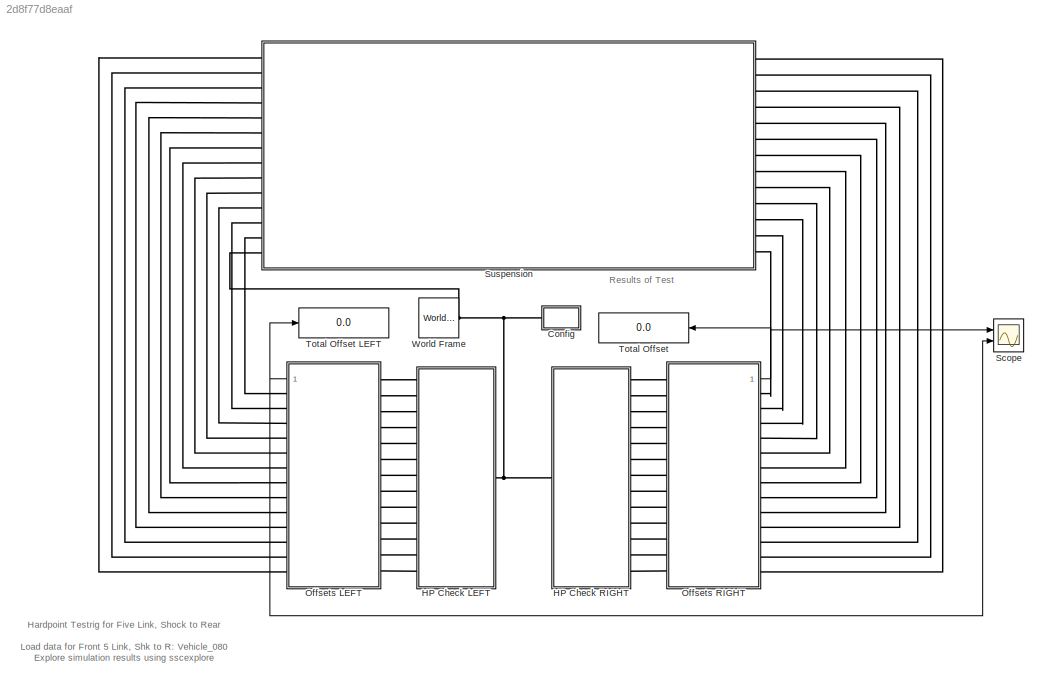
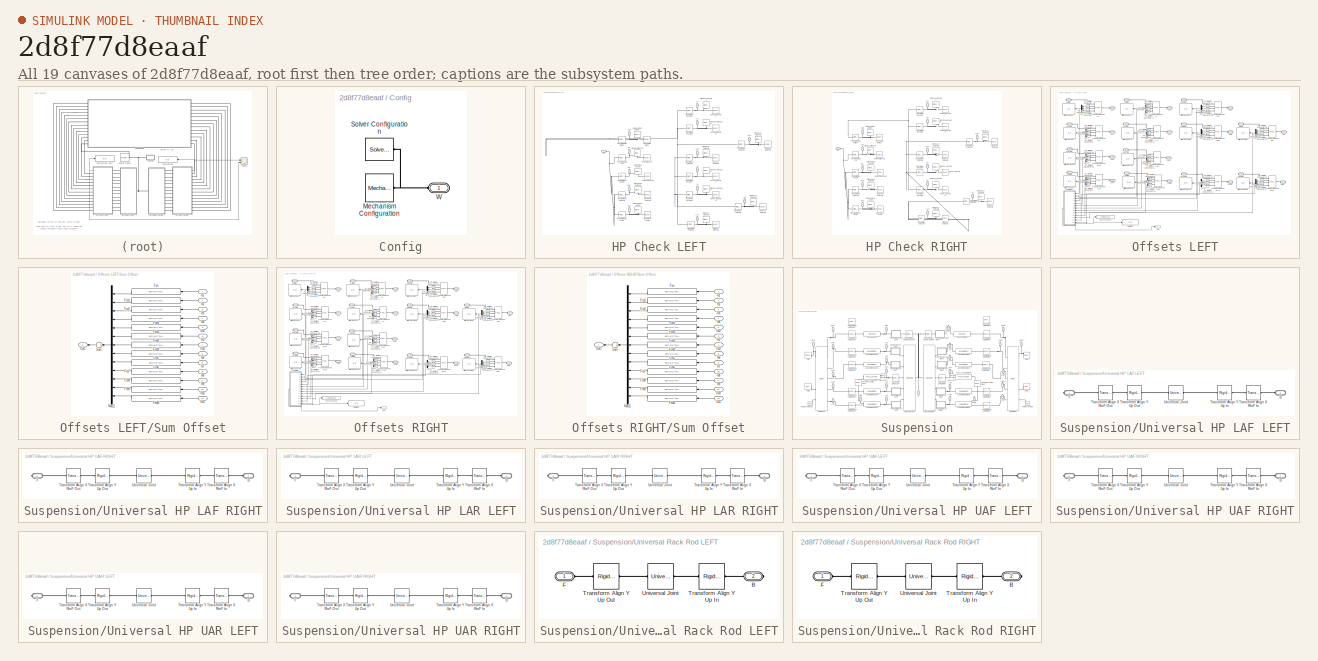
[diagram: thumbnail index - all 19 canvases of the model, root first then tree order]
MODEL slx_2d8f77d8eaaf
KIND model
CONFIG AbsTol = auto
CONFIG EnableMultiTasking = on
CONFIG FixedStep = auto
CONFIG MaxStep = auto
CONFIG MinStep = auto
CONFIG PostLoadFcn = sm_car_load_vehicle_data(bdroot,'080');
CONFIG RelTol = 1e-3
CONFIG SampleTimeConstraint = Unconstrained
CONFIG SolverName = ode23t
CONFIG StartTime = 0.0
CONFIG StopTime = 1e-9
BLOCK [SubSystem] Config
  Ports = [0, 0, 0, 0, 0, 1]
  RequestExecContextInheritance = off
BLOCK [Reference] Config/Mechanism Configuration  REF=sm_lib/Utilities/Mechanism
Configuration
  Ports = [0, 0, 0, 0, 0, 0, 1]
  SourceBlock = sm_lib/Utilities/Mechanism\nConfiguration
  SourceProductBaseCode = MS
  SourceType = Mechanism\nConfiguration
BLOCK [Reference] Config/Solver Configuration  REF=nesl_utility/Solver
Configuration
  Ports = [0, 0, 0, 0, 0, 0, 1]
  SourceBlock = nesl_utility/Solver\nConfiguration
  SourceProductBaseCode = SS,PW,VE
  SourceType = Solver\nConfiguration
BLOCK [PMIOPort] Config/W
  Side = Left
BLOCK [SubSystem] HP Check LEFT
  Ports = [0, 0, 0, 0, 0, 1, 13]
  RequestExecContextInheritance = off
BLOCK [Reference] HP Check LEFT/Graphic LA Inboard F  REF=sm_lib/Body Elements/Graphic
  NameLocation = right
  Ports = [0, 0, 0, 0, 0, 0, 1]
  SourceBlock = sm_lib/Body Elements/Graphic
  SourceProductBaseCode = MS
  SourceType = Graphic
BLOCK [Reference] HP Check LEFT/Graphic LA Inboard R  REF=sm_lib/Body Elements/Graphic
  NameLocation = right
  Ports = [0, 0, 0, 0, 0, 0, 1]
  SourceBlock = sm_lib/Body Elements/Graphic
  SourceProductBaseCode = MS
  SourceType = Graphic
BLOCK [Reference] HP Check LEFT/Graphic LA Outboard  REF=sm_lib/Body Elements/Graphic
  NameLocation = right
  Ports = [0, 0, 0, 0, 0, 0, 1]
  SourceBlock = sm_lib/Body Elements/Graphic
  SourceProductBaseCode = MS
  SourceType = Graphic
BLOCK [Reference] HP Check LEFT/Graphic LAr Outboard  REF=sm_lib/Body Elements/Graphic
  NameLocation = right
  Ports = [0, 0, 0, 0, 0, 0, 1]
  SourceBlock = sm_lib/Body Elements/Graphic
  SourceProductBaseCode = MS
  SourceType = Graphic
BLOCK [Reference] HP Check LEFT/Graphic Rod Inboard  REF=sm_lib/Body Elements/Graphic
  NameLocation = right
  Ports = [0, 0, 0, 0, 0, 0, 1]
  SourceBlock = sm_lib/Body Elements/Graphic
  SourceProductBaseCode = MS
  SourceType = Graphic
BLOCK [Reference] HP Check LEFT/Graphic Rod Outboard  REF=sm_lib/Body Elements/Graphic
  NameLocation = right
  Ports = [0, 0, 0, 0, 0, 0, 1]
  SourceBlock = sm_lib/Body Elements/Graphic
  SourceProductBaseCode = MS
  SourceType = Graphic
BLOCK [Reference] HP Check LEFT/Graphic Spring Bottom  REF=sm_lib/Body Elements/Graphic
  NameLocation = right
  Ports = [0, 0, 0, 0, 0, 0, 1]
  SourceBlock = sm_lib/Body Elements/Graphic
  SourceProductBaseCode = MS
  SourceType = Graphic
BLOCK [Reference] HP Check LEFT/Graphic Spring Top  REF=sm_lib/Body Elements/Graphic
  NameLocation = right
  Ports = [0, 0, 0, 0, 0, 0, 1]
  SourceBlock = sm_lib/Body Elements/Graphic
  SourceProductBaseCode = MS
  SourceType = Graphic
BLOCK [Reference] HP Check LEFT/Graphic UA Inboard F  REF=sm_lib/Body Elements/Graphic
  NameLocation = right
  Ports = [0, 0, 0, 0, 0, 0, 1]
  SourceBlock = sm_lib/Body Elements/Graphic
  SourceProductBaseCode = MS
  SourceType = Graphic
BLOCK [Reference] HP Check LEFT/Graphic UA Inboard R  REF=sm_lib/Body Elements/Graphic
  NameLocation = right
  Ports = [0, 0, 0, 0, 0, 0, 1]
  SourceBlock = sm_lib/Body Elements/Graphic
  SourceProductBaseCode = MS
  SourceType = Graphic
BLOCK [Reference] HP Check LEFT/Graphic UAf Outboard  REF=sm_lib/Body Elements/Graphic
  NameLocation = right
  Ports = [0, 0, 0, 0, 0, 0, 1]
  SourceBlock = sm_lib/Body Elements/Graphic
  SourceProductBaseCode = MS
  SourceType = Graphic
BLOCK [Reference] HP Check LEFT/Graphic UAr Outboard  REF=sm_lib/Body Elements/Graphic
  NameLocation = right
  Ports = [0, 0, 0, 0, 0, 0, 1]
  SourceBlock = sm_lib/Body Elements/Graphic
  SourceProductBaseCode = MS
  SourceType = Graphic
BLOCK [Reference] HP Check LEFT/Graphic Wheel Center  REF=sm_lib/Body Elements/Graphic
  NameLocation = right
  Ports = [0, 0, 0, 0, 0, 0, 1]
  SourceBlock = sm_lib/Body Elements/Graphic
  SourceProductBaseCode = MS
  SourceType = Graphic
BLOCK [PMIOPort] HP Check LEFT/LAf
  NameLocation = left
  Port = 6
  Side = Right
BLOCK [PMIOPort] HP Check LEFT/LAof
  NameLocation = left
  Port = 9
  Side = Right
BLOCK [PMIOPort] HP Check LEFT/LAor
  NameLocation = left
  Port = 8
  Side = Right
BLOCK [PMIOPort] HP Check LEFT/LAr
  NameLocation = left
  Port = 7
  Side = Right
BLOCK [PMIOPort] HP Check LEFT/RdI
  NameLocation = left
  Port = 12
  Side = Right
BLOCK [PMIOPort] HP Check LEFT/RdO
  NameLocation = left
  Port = 13
  Side = Right
BLOCK [PMIOPort] HP Check LEFT/SpB
  NameLocation = left
  Port = 10
  Side = Right
BLOCK [PMIOPort] HP Check LEFT/SpT
  NameLocation = left
  Port = 11
  Side = Right
BLOCK [Reference] HP Check LEFT/Transform LA InboardF  REF=sm_lib/Frames and
Transforms/Rigid
Transform
  AttributesFormatString = %<TranslationCartesianOffset>
  Ports = [0, 0, 0, 0, 0, 1, 1]
  SourceBlock = sm_lib/Frames and\nTransforms/Rigid\nTransform
  SourceProductBaseCode = MS
  SourceType = Rigid\nTransform
BLOCK [Reference] HP Check LEFT/Transform LA InboardR  REF=sm_lib/Frames and
Transforms/Rigid
Transform
  AttributesFormatString = %<TranslationCartesianOffset>
  Ports = [0, 0, 0, 0, 0, 1, 1]
  SourceBlock = sm_lib/Frames and\nTransforms/Rigid\nTransform
  SourceProductBaseCode = MS
  SourceType = Rigid\nTransform
BLOCK [Reference] HP Check LEFT/Transform LA Outboard  REF=sm_lib/Frames and
Transforms/Rigid
Transform
  AttributesFormatString = %<TranslationCartesianOffset>
  Ports = [0, 0, 0, 0, 0, 1, 1]
  SourceBlock = sm_lib/Frames and\nTransforms/Rigid\nTransform
  SourceProductBaseCode = MS
  SourceType = Rigid\nTransform
BLOCK [Reference] HP Check LEFT/Transform LAr Outboard  REF=sm_lib/Frames and
Transforms/Rigid
Transform
  AttributesFormatString = %<TranslationCartesianOffset>
  Ports = [0, 0, 0, 0, 0, 1, 1]
  SourceBlock = sm_lib/Frames and\nTransforms/Rigid\nTransform
  SourceProductBaseCode = MS
  SourceType = Rigid\nTransform
BLOCK [Reference] HP Check LEFT/Transform Rod Inboard  REF=sm_lib/Frames and
Transforms/Rigid
Transform
  AttributesFormatString = %<TranslationCartesianOffset>
  Ports = [0, 0, 0, 0, 0, 1, 1]
  SourceBlock = sm_lib/Frames and\nTransforms/Rigid\nTransform
  SourceProductBaseCode = MS
  SourceType = Rigid\nTransform
BLOCK [Reference] HP Check LEFT/Transform Rod Outboard  REF=sm_lib/Frames and
Transforms/Rigid
Transform
  AttributesFormatString = %<TranslationCartesianOffset>
  Ports = [0, 0, 0, 0, 0, 1, 1]
  SourceBlock = sm_lib/Frames and\nTransforms/Rigid\nTransform
  SourceProductBaseCode = MS
  SourceType = Rigid\nTransform
BLOCK [Reference] HP Check LEFT/Transform Spring Bottom  REF=sm_lib/Frames and
Transforms/Rigid
Transform
  AttributesFormatString = %<TranslationCartesianOffset>
  Ports = [0, 0, 0, 0, 0, 1, 1]
  SourceBlock = sm_lib/Frames and\nTransforms/Rigid\nTransform
  SourceProductBaseCode = MS
  SourceType = Rigid\nTransform
BLOCK [Reference] HP Check LEFT/Transform Spring Top  REF=sm_lib/Frames and
Transforms/Rigid
Transform
  AttributesFormatString = %<TranslationCartesianOffset>
  Ports = [0, 0, 0, 0, 0, 1, 1]
  SourceBlock = sm_lib/Frames and\nTransforms/Rigid\nTransform
  SourceProductBaseCode = MS
  SourceType = Rigid\nTransform
BLOCK [Reference] HP Check LEFT/Transform UA InboardF  REF=sm_lib/Frames and
Transforms/Rigid
Transform
  AttributesFormatString = %<TranslationCartesianOffset>
  Ports = [0, 0, 0, 0, 0, 1, 1]
  SourceBlock = sm_lib/Frames and\nTransforms/Rigid\nTransform
  SourceProductBaseCode = MS
  SourceType = Rigid\nTransform
BLOCK [Reference] HP Check LEFT/Transform UA InboardR  REF=sm_lib/Frames and
Transforms/Rigid
Transform
  AttributesFormatString = %<TranslationCartesianOffset>
  Ports = [0, 0, 0, 0, 0, 1, 1]
  SourceBlock = sm_lib/Frames and\nTransforms/Rigid\nTransform
  SourceProductBaseCode = MS
  SourceType = Rigid\nTransform
BLOCK [Reference] HP Check LEFT/Transform UAf Outboard  REF=sm_lib/Frames and
Transforms/Rigid
Transform
  AttributesFormatString = %<TranslationCartesianOffset>
  Ports = [0, 0, 0, 0, 0, 1, 1]
  SourceBlock = sm_lib/Frames and\nTransforms/Rigid\nTransform
  SourceProductBaseCode = MS
  SourceType = Rigid\nTransform
BLOCK [Reference] HP Check LEFT/Transform UAr Outboard  REF=sm_lib/Frames and
Transforms/Rigid
Transform
  AttributesFormatString = %<TranslationCartesianOffset>
  Ports = [0, 0, 0, 0, 0, 1, 1]
  SourceBlock = sm_lib/Frames and\nTransforms/Rigid\nTransform
  SourceProductBaseCode = MS
  SourceType = Rigid\nTransform
BLOCK [Reference] HP Check LEFT/Transform Wheel Center  REF=sm_lib/Frames and
Transforms/Rigid
Transform
  AttributesFormatString = %<TranslationCartesianOffset>
  Ports = [0, 0, 0, 0, 0, 1, 1]
  SourceBlock = sm_lib/Frames and\nTransforms/Rigid\nTransform
  SourceProductBaseCode = MS
  SourceType = Rigid\nTransform
BLOCK [PMIOPort] HP Check LEFT/UAf
  NameLocation = left
  Port = 2
  Side = Right
BLOCK [PMIOPort] HP Check LEFT/UAof
  NameLocation = left
  Port = 5
  Side = Right
BLOCK [PMIOPort] HP Check LEFT/UAor
  NameLocation = left
  Port = 4
  Side = Right
BLOCK [PMIOPort] HP Check LEFT/UAr
  NameLocation = left
  Port = 3
  Side = Right
BLOCK [Reference] HP Check LEFT/Vis HP LA Inboard F  REF=sm_lib/Body Elements/Spherical Solid
  Ports = [0, 0, 0, 0, 0, 0, 1]
  SourceBlock = sm_lib/Body Elements/Spherical Solid
  SourceProductBaseCode = MS
  SourceType = Spherical Solid
BLOCK [Reference] HP Check LEFT/Vis HP LA Inboard R  REF=sm_lib/Body Elements/Spherical Solid
  Ports = [0, 0, 0, 0, 0, 0, 1]
  SourceBlock = sm_lib/Body Elements/Spherical Solid
  SourceProductBaseCode = MS
  SourceType = Spherical Solid
BLOCK [Reference] HP Check LEFT/Vis HP LA Outboard  REF=sm_lib/Body Elements/Spherical Solid
  Ports = [0, 0, 0, 0, 0, 0, 1]
  SourceBlock = sm_lib/Body Elements/Spherical Solid
  SourceProductBaseCode = MS
  SourceType = Spherical Solid
BLOCK [Reference] HP Check LEFT/Vis HP LAr Outboard  REF=sm_lib/Body Elements/Spherical Solid
  Ports = [0, 0, 0, 0, 0, 0, 1]
  SourceBlock = sm_lib/Body Elements/Spherical Solid
  SourceProductBaseCode = MS
  SourceType = Spherical Solid
BLOCK [Reference] HP Check LEFT/Vis HP Rod Inboard  REF=sm_lib/Body Elements/Spherical Solid
  Ports = [0, 0, 0, 0, 0, 0, 1]
  SourceBlock = sm_lib/Body Elements/Spherical Solid
  SourceProductBaseCode = MS
  SourceType = Spherical Solid
BLOCK [Reference] HP Check LEFT/Vis HP Rod Outboard  REF=sm_lib/Body Elements/Spherical Solid
  Ports = [0, 0, 0, 0, 0, 0, 1]
  SourceBlock = sm_lib/Body Elements/Spherical Solid
  SourceProductBaseCode = MS
  SourceType = Spherical Solid
BLOCK [Reference] HP Check LEFT/Vis HP Spring Bottom  REF=sm_lib/Body Elements/Spherical Solid
  Ports = [0, 0, 0, 0, 0, 0, 1]
  SourceBlock = sm_lib/Body Elements/Spherical Solid
  SourceProductBaseCode = MS
  SourceType = Spherical Solid
BLOCK [Reference] HP Check LEFT/Vis HP Spring Top  REF=sm_lib/Body Elements/Spherical Solid
  Ports = [0, 0, 0, 0, 0, 0, 1]
  SourceBlock = sm_lib/Body Elements/Spherical Solid
  SourceProductBaseCode = MS
  SourceType = Spherical Solid
BLOCK [Reference] HP Check LEFT/Vis HP UA Inboard F  REF=sm_lib/Body Elements/Spherical Solid
  Ports = [0, 0, 0, 0, 0, 0, 1]
  SourceBlock = sm_lib/Body Elements/Spherical Solid
  SourceProductBaseCode = MS
  SourceType = Spherical Solid
BLOCK [Reference] HP Check LEFT/Vis HP UA Inboard R  REF=sm_lib/Body Elements/Spherical Solid
  Ports = [0, 0, 0, 0, 0, 0, 1]
  SourceBlock = sm_lib/Body Elements/Spherical Solid
  SourceProductBaseCode = MS
  SourceType = Spherical Solid
BLOCK [Reference] HP Check LEFT/Vis HP UAf Outboard  REF=sm_lib/Body Elements/Spherical Solid
  Ports = [0, 0, 0, 0, 0, 0, 1]
  SourceBlock = sm_lib/Body Elements/Spherical Solid
  SourceProductBaseCode = MS
  SourceType = Spherical Solid
BLOCK [Reference] HP Check LEFT/Vis HP UAr Outboard  REF=sm_lib/Body Elements/Spherical Solid
  Ports = [0, 0, 0, 0, 0, 0, 1]
  SourceBlock = sm_lib/Body Elements/Spherical Solid
  SourceProductBaseCode = MS
  SourceType = Spherical Solid
BLOCK [Reference] HP Check LEFT/Vis HP Wheel Center  REF=sm_lib/Body Elements/Spherical Solid
  Ports = [0, 0, 0, 0, 0, 0, 1]
  SourceBlock = sm_lib/Body Elements/Spherical Solid
  SourceProductBaseCode = MS
  SourceType = Spherical Solid
BLOCK [PMIOPort] HP Check LEFT/W
  Side = Left
BLOCK [PMIOPort] HP Check LEFT/WhC
  NameLocation = left
  Port = 14
  Side = Right
BLOCK [SubSystem] HP Check RIGHT
  Ports = [0, 0, 0, 0, 0, 1, 13]
  RequestExecContextInheritance = off
BLOCK [Reference] HP Check RIGHT/Graphic LA Inboard F  REF=sm_lib/Body Elements/Graphic
  NameLocation = right
  Ports = [0, 0, 0, 0, 0, 0, 1]
  SourceBlock = sm_lib/Body Elements/Graphic
  SourceProductBaseCode = MS
  SourceType = Graphic
BLOCK [Reference] HP Check RIGHT/Graphic LA Inboard R  REF=sm_lib/Body Elements/Graphic
  NameLocation = right
  Ports = [0, 0, 0, 0, 0, 0, 1]
  SourceBlock = sm_lib/Body Elements/Graphic
  SourceProductBaseCode = MS
  SourceType = Graphic
BLOCK [Reference] HP Check RIGHT/Graphic LA Outboard  REF=sm_lib/Body Elements/Graphic
  NameLocation = right
  Ports = [0, 0, 0, 0, 0, 0, 1]
  SourceBlock = sm_lib/Body Elements/Graphic
  SourceProductBaseCode = MS
  SourceType = Graphic
BLOCK [Reference] HP Check RIGHT/Graphic LAr Outboard  REF=sm_lib/Body Elements/Graphic
  NameLocation = right
  Ports = [0, 0, 0, 0, 0, 0, 1]
  SourceBlock = sm_lib/Body Elements/Graphic
  SourceProductBaseCode = MS
  SourceType = Graphic
BLOCK [Reference] HP Check RIGHT/Graphic Rod Inboard  REF=sm_lib/Body Elements/Graphic
  NameLocation = right
  Ports = [0, 0, 0, 0, 0, 0, 1]
  SourceBlock = sm_lib/Body Elements/Graphic
  SourceProductBaseCode = MS
  SourceType = Graphic
BLOCK [Reference] HP Check RIGHT/Graphic Rod Outboard  REF=sm_lib/Body Elements/Graphic
  NameLocation = right
  Ports = [0, 0, 0, 0, 0, 0, 1]
  SourceBlock = sm_lib/Body Elements/Graphic
  SourceProductBaseCode = MS
  SourceType = Graphic
BLOCK [Reference] HP Check RIGHT/Graphic Spring Bottom  REF=sm_lib/Body Elements/Graphic
  NameLocation = right
  Ports = [0, 0, 0, 0, 0, 0, 1]
  SourceBlock = sm_lib/Body Elements/Graphic
  SourceProductBaseCode = MS
  SourceType = Graphic
BLOCK [Reference] HP Check RIGHT/Graphic Spring Top  REF=sm_lib/Body Elements/Graphic
  NameLocation = right
  Ports = [0, 0, 0, 0, 0, 0, 1]
  SourceBlock = sm_lib/Body Elements/Graphic
  SourceProductBaseCode = MS
  SourceType = Graphic
BLOCK [Reference] HP Check RIGHT/Graphic UA Inboard F  REF=sm_lib/Body Elements/Graphic
  NameLocation = right
  Ports = [0, 0, 0, 0, 0, 0, 1]
  SourceBlock = sm_lib/Body Elements/Graphic
  SourceProductBaseCode = MS
  SourceType = Graphic
BLOCK [Reference] HP Check RIGHT/Graphic UA Inboard R  REF=sm_lib/Body Elements/Graphic
  NameLocation = right
  Ports = [0, 0, 0, 0, 0, 0, 1]
  SourceBlock = sm_lib/Body Elements/Graphic
  SourceProductBaseCode = MS
  SourceType = Graphic
BLOCK [Reference] HP Check RIGHT/Graphic UAf Outboard  REF=sm_lib/Body Elements/Graphic
  NameLocation = right
  Ports = [0, 0, 0, 0, 0, 0, 1]
  SourceBlock = sm_lib/Body Elements/Graphic
  SourceProductBaseCode = MS
  SourceType = Graphic
BLOCK [Reference] HP Check RIGHT/Graphic UAr Outboard  REF=sm_lib/Body Elements/Graphic
  NameLocation = right
  Ports = [0, 0, 0, 0, 0, 0, 1]
  SourceBlock = sm_lib/Body Elements/Graphic
  SourceProductBaseCode = MS
  SourceType = Graphic
BLOCK [Reference] HP Check RIGHT/Graphic Wheel Center  REF=sm_lib/Body Elements/Graphic
  NameLocation = right
  Ports = [0, 0, 0, 0, 0, 0, 1]
  SourceBlock = sm_lib/Body Elements/Graphic
  SourceProductBaseCode = MS
  SourceType = Graphic
BLOCK [PMIOPort] HP Check RIGHT/LAf
  NameLocation = left
  Port = 6
  Side = Right
BLOCK [PMIOPort] HP Check RIGHT/LAof
  NameLocation = left
  Port = 9
  Side = Right
BLOCK [PMIOPort] HP Check RIGHT/LAor
  NameLocation = left
  Port = 8
  Side = Right
BLOCK [PMIOPort] HP Check RIGHT/LAr
  NameLocation = left
  Port = 7
  Side = Right
BLOCK [PMIOPort] HP Check RIGHT/RdI
  NameLocation = left
  Port = 12
  Side = Right
BLOCK [PMIOPort] HP Check RIGHT/RdO
  NameLocation = left
  Port = 13
  Side = Right
BLOCK [PMIOPort] HP Check RIGHT/SpB
  NameLocation = left
  Port = 10
  Side = Right
BLOCK [PMIOPort] HP Check RIGHT/SpT
  NameLocation = left
  Port = 11
  Side = Right
BLOCK [Reference] HP Check RIGHT/Transform LA InboardF  REF=sm_lib/Frames and
Transforms/Rigid
Transform
  AttributesFormatString = %<TranslationCartesianOffset>
  Ports = [0, 0, 0, 0, 0, 1, 1]
  SourceBlock = sm_lib/Frames and\nTransforms/Rigid\nTransform
  SourceProductBaseCode = MS
  SourceType = Rigid\nTransform
BLOCK [Reference] HP Check RIGHT/Transform LA InboardR  REF=sm_lib/Frames and
Transforms/Rigid
Transform
  AttributesFormatString = %<TranslationCartesianOffset>
  Ports = [0, 0, 0, 0, 0, 1, 1]
  SourceBlock = sm_lib/Frames and\nTransforms/Rigid\nTransform
  SourceProductBaseCode = MS
  SourceType = Rigid\nTransform
BLOCK [Reference] HP Check RIGHT/Transform LA Outboard  REF=sm_lib/Frames and
Transforms/Rigid
Transform
  AttributesFormatString = %<TranslationCartesianOffset>
  Ports = [0, 0, 0, 0, 0, 1, 1]
  SourceBlock = sm_lib/Frames and\nTransforms/Rigid\nTransform
  SourceProductBaseCode = MS
  SourceType = Rigid\nTransform
BLOCK [Reference] HP Check RIGHT/Transform LAr Outboard  REF=sm_lib/Frames and
Transforms/Rigid
Transform
  AttributesFormatString = %<TranslationCartesianOffset>
  Ports = [0, 0, 0, 0, 0, 1, 1]
  SourceBlock = sm_lib/Frames and\nTransforms/Rigid\nTransform
  SourceProductBaseCode = MS
  SourceType = Rigid\nTransform
BLOCK [Reference] HP Check RIGHT/Transform Rod Inboard  REF=sm_lib/Frames and
Transforms/Rigid
Transform
  AttributesFormatString = %<TranslationCartesianOffset>
  Ports = [0, 0, 0, 0, 0, 1, 1]
  SourceBlock = sm_lib/Frames and\nTransforms/Rigid\nTransform
  SourceProductBaseCode = MS
  SourceType = Rigid\nTransform
BLOCK [Reference] HP Check RIGHT/Transform Rod Outboard  REF=sm_lib/Frames and
Transforms/Rigid
Transform
  AttributesFormatString = %<TranslationCartesianOffset>
  Ports = [0, 0, 0, 0, 0, 1, 1]
  SourceBlock = sm_lib/Frames and\nTransforms/Rigid\nTransform
  SourceProductBaseCode = MS
  SourceType = Rigid\nTransform
BLOCK [Reference] HP Check RIGHT/Transform Spring Bottom  REF=sm_lib/Frames and
Transforms/Rigid
Transform
  AttributesFormatString = %<TranslationCartesianOffset>
  Ports = [0, 0, 0, 0, 0, 1, 1]
  SourceBlock = sm_lib/Frames and\nTransforms/Rigid\nTransform
  SourceProductBaseCode = MS
  SourceType = Rigid\nTransform
BLOCK [Reference] HP Check RIGHT/Transform Spring Top  REF=sm_lib/Frames and
Transforms/Rigid
Transform
  AttributesFormatString = %<TranslationCartesianOffset>
  Ports = [0, 0, 0, 0, 0, 1, 1]
  SourceBlock = sm_lib/Frames and\nTransforms/Rigid\nTransform
  SourceProductBaseCode = MS
  SourceType = Rigid\nTransform
BLOCK [Reference] HP Check RIGHT/Transform UA InboardF  REF=sm_lib/Frames and
Transforms/Rigid
Transform
  AttributesFormatString = %<TranslationCartesianOffset>
  Ports = [0, 0, 0, 0, 0, 1, 1]
  SourceBlock = sm_lib/Frames and\nTransforms/Rigid\nTransform
  SourceProductBaseCode = MS
  SourceType = Rigid\nTransform
BLOCK [Reference] HP Check RIGHT/Transform UA InboardR  REF=sm_lib/Frames and
Transforms/Rigid
Transform
  AttributesFormatString = %<TranslationCartesianOffset>
  Ports = [0, 0, 0, 0, 0, 1, 1]
  SourceBlock = sm_lib/Frames and\nTransforms/Rigid\nTransform
  SourceProductBaseCode = MS
  SourceType = Rigid\nTransform
BLOCK [Reference] HP Check RIGHT/Transform UAf Outboard  REF=sm_lib/Frames and
Transforms/Rigid
Transform
  AttributesFormatString = %<TranslationCartesianOffset>
  Ports = [0, 0, 0, 0, 0, 1, 1]
  SourceBlock = sm_lib/Frames and\nTransforms/Rigid\nTransform
  SourceProductBaseCode = MS
  SourceType = Rigid\nTransform
BLOCK [Reference] HP Check RIGHT/Transform UAr Outboard  REF=sm_lib/Frames and
Transforms/Rigid
Transform
  AttributesFormatString = %<TranslationCartesianOffset>
  Ports = [0, 0, 0, 0, 0, 1, 1]
  SourceBlock = sm_lib/Frames and\nTransforms/Rigid\nTransform
  SourceProductBaseCode = MS
  SourceType = Rigid\nTransform
BLOCK [Reference] HP Check RIGHT/Transform Wheel Center  REF=sm_lib/Frames and
Transforms/Rigid
Transform
  AttributesFormatString = %<TranslationCartesianOffset>
  Ports = [0, 0, 0, 0, 0, 1, 1]
  SourceBlock = sm_lib/Frames and\nTransforms/Rigid\nTransform
  SourceProductBaseCode = MS
  SourceType = Rigid\nTransform
BLOCK [PMIOPort] HP Check RIGHT/UAf
  NameLocation = left
  Port = 2
  Side = Right
BLOCK [PMIOPort] HP Check RIGHT/UAof
  NameLocation = left
  Port = 5
  Side = Right
BLOCK [PMIOPort] HP Check RIGHT/UAor
  NameLocation = left
  Port = 4
  Side = Right
BLOCK [PMIOPort] HP Check RIGHT/UAr
  NameLocation = left
  Port = 3
  Side = Right
BLOCK [Reference] HP Check RIGHT/Vis HP LA Inboard F  REF=sm_lib/Body Elements/Spherical Solid
  Ports = [0, 0, 0, 0, 0, 0, 1]
  SourceBlock = sm_lib/Body Elements/Spherical Solid
  SourceProductBaseCode = MS
  SourceType = Spherical Solid
BLOCK [Reference] HP Check RIGHT/Vis HP LA Inboard R  REF=sm_lib/Body Elements/Spherical Solid
  Ports = [0, 0, 0, 0, 0, 0, 1]
  SourceBlock = sm_lib/Body Elements/Spherical Solid
  SourceProductBaseCode = MS
  SourceType = Spherical Solid
BLOCK [Reference] HP Check RIGHT/Vis HP LA Outboard  REF=sm_lib/Body Elements/Spherical Solid
  Ports = [0, 0, 0, 0, 0, 0, 1]
  SourceBlock = sm_lib/Body Elements/Spherical Solid
  SourceProductBaseCode = MS
  SourceType = Spherical Solid
BLOCK [Reference] HP Check RIGHT/Vis HP LAr Outboard  REF=sm_lib/Body Elements/Spherical Solid
  Ports = [0, 0, 0, 0, 0, 0, 1]
  SourceBlock = sm_lib/Body Elements/Spherical Solid
  SourceProductBaseCode = MS
  SourceType = Spherical Solid
BLOCK [Reference] HP Check RIGHT/Vis HP Rod Inboard  REF=sm_lib/Body Elements/Spherical Solid
  Ports = [0, 0, 0, 0, 0, 0, 1]
  SourceBlock = sm_lib/Body Elements/Spherical Solid
  SourceProductBaseCode = MS
  SourceType = Spherical Solid
BLOCK [Reference] HP Check RIGHT/Vis HP Rod Outboard  REF=sm_lib/Body Elements/Spherical Solid
  Ports = [0, 0, 0, 0, 0, 0, 1]
  SourceBlock = sm_lib/Body Elements/Spherical Solid
  SourceProductBaseCode = MS
  SourceType = Spherical Solid
BLOCK [Reference] HP Check RIGHT/Vis HP Spring Bottom  REF=sm_lib/Body Elements/Spherical Solid
  Ports = [0, 0, 0, 0, 0, 0, 1]
  SourceBlock = sm_lib/Body Elements/Spherical Solid
  SourceProductBaseCode = MS
  SourceType = Spherical Solid
BLOCK [Reference] HP Check RIGHT/Vis HP Spring Top  REF=sm_lib/Body Elements/Spherical Solid
  Ports = [0, 0, 0, 0, 0, 0, 1]
  SourceBlock = sm_lib/Body Elements/Spherical Solid
  SourceProductBaseCode = MS
  SourceType = Spherical Solid
BLOCK [Reference] HP Check RIGHT/Vis HP UA Inboard F  REF=sm_lib/Body Elements/Spherical Solid
  Ports = [0, 0, 0, 0, 0, 0, 1]
  SourceBlock = sm_lib/Body Elements/Spherical Solid
  SourceProductBaseCode = MS
  SourceType = Spherical Solid
BLOCK [Reference] HP Check RIGHT/Vis HP UA Inboard R  REF=sm_lib/Body Elements/Spherical Solid
  Ports = [0, 0, 0, 0, 0, 0, 1]
  SourceBlock = sm_lib/Body Elements/Spherical Solid
  SourceProductBaseCode = MS
  SourceType = Spherical Solid
BLOCK [Reference] HP Check RIGHT/Vis HP UAf Outboard  REF=sm_lib/Body Elements/Spherical Solid
  Ports = [0, 0, 0, 0, 0, 0, 1]
  SourceBlock = sm_lib/Body Elements/Spherical Solid
  SourceProductBaseCode = MS
  SourceType = Spherical Solid
BLOCK [Reference] HP Check RIGHT/Vis HP UAr Outboard  REF=sm_lib/Body Elements/Spherical Solid
  Ports = [0, 0, 0, 0, 0, 0, 1]
  SourceBlock = sm_lib/Body Elements/Spherical Solid
  SourceProductBaseCode = MS
  SourceType = Spherical Solid
BLOCK [Reference] HP Check RIGHT/Vis HP Wheel Center  REF=sm_lib/Body Elements/Spherical Solid
  Ports = [0, 0, 0, 0, 0, 0, 1]
  SourceBlock = sm_lib/Body Elements/Spherical Solid
  SourceProductBaseCode = MS
  SourceType = Spherical Solid
BLOCK [PMIOPort] HP Check RIGHT/W
  Side = Left
BLOCK [PMIOPort] HP Check RIGHT/WhC
  NameLocation = left
  Port = 14
  Side = Right
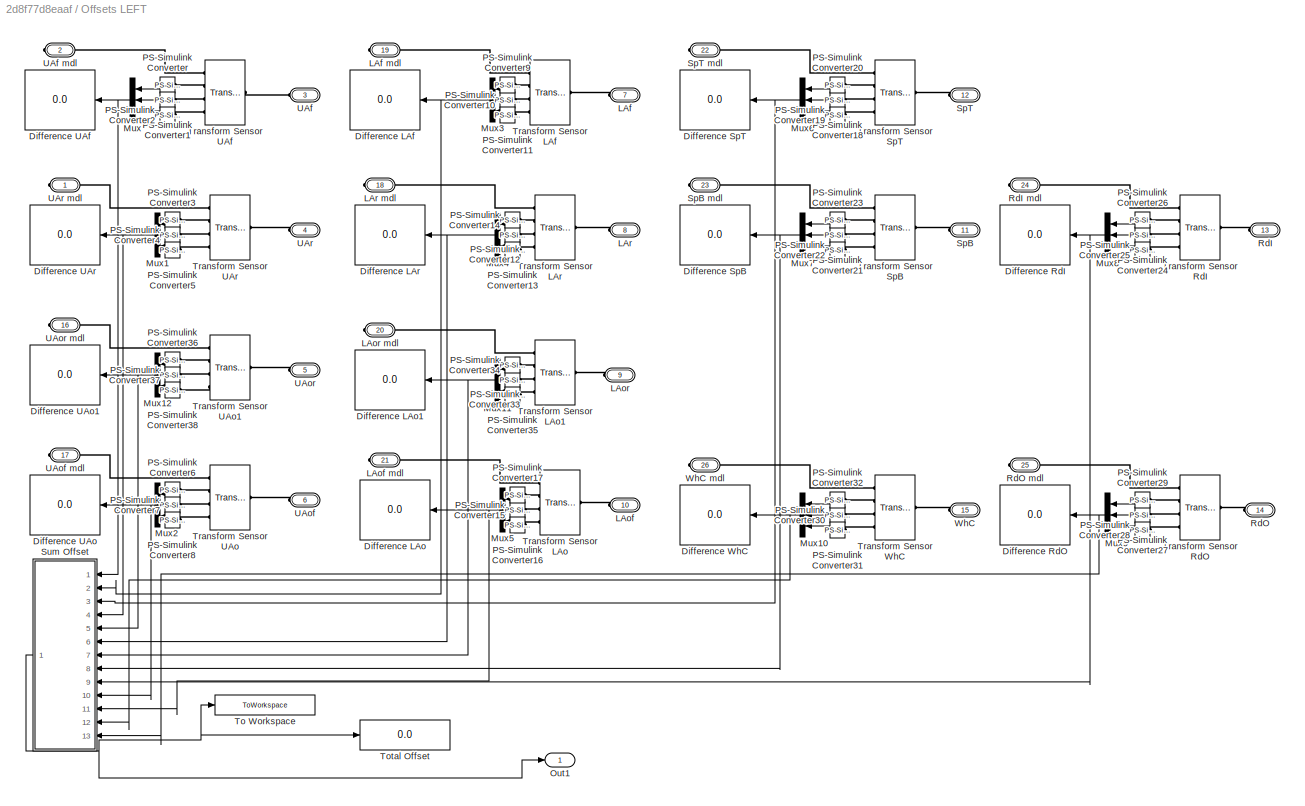
BLOCK [SubSystem] Offsets LEFT
  Ports = [0, 1, 0, 0, 0, 13, 13]
  RequestExecContextInheritance = off
BLOCK [Display] Offsets LEFT/Difference LAf
  Decimation = 1
  Ports = [1]
BLOCK [Display] Offsets LEFT/Difference LAo
  Decimation = 1
  Ports = [1]
BLOCK [Display] Offsets LEFT/Difference LAo1
  Decimation = 1
  Ports = [1]
BLOCK [Display] Offsets LEFT/Difference LAr
  Decimation = 1
  Ports = [1]
BLOCK [Display] Offsets LEFT/Difference RdI
  Decimation = 1
  Ports = [1]
BLOCK [Display] Offsets LEFT/Difference RdO
  Decimation = 1
  Ports = [1]
BLOCK [Display] Offsets LEFT/Difference SpB
  Decimation = 1
  Ports = [1]
BLOCK [Display] Offsets LEFT/Difference SpT
  Decimation = 1
  Ports = [1]
BLOCK [Display] Offsets LEFT/Difference UAf
  Decimation = 1
  Ports = [1]
BLOCK [Display] Offsets LEFT/Difference UAo
  Decimation = 1
  Ports = [1]
BLOCK [Display] Offsets LEFT/Difference UAo1
  Decimation = 1
  Ports = [1]
BLOCK [Display] Offsets LEFT/Difference UAr
  Decimation = 1
  Ports = [1]
BLOCK [Display] Offsets LEFT/Difference WhC
  Decimation = 1
  Ports = [1]
BLOCK [PMIOPort] Offsets LEFT/LAf
  Port = 7
  Side = Left
BLOCK [PMIOPort] Offsets LEFT/LAf mdl
  NameLocation = top
  Port = 19
  Side = Right
BLOCK [PMIOPort] Offsets LEFT/LAof
  Port = 10
  Side = Left
BLOCK [PMIOPort] Offsets LEFT/LAof mdl
  NameLocation = top
  Port = 21
  Side = Right
BLOCK [PMIOPort] Offsets LEFT/LAor
  Port = 9
  Side = Left
BLOCK [PMIOPort] Offsets LEFT/LAor mdl
  NameLocation = top
  Port = 20
  Side = Right
BLOCK [PMIOPort] Offsets LEFT/LAr
  Port = 8
  Side = Left
BLOCK [PMIOPort] Offsets LEFT/LAr mdl
  NameLocation = top
  Port = 18
  Side = Right
BLOCK [Mux] Offsets LEFT/Mux
  DisplayOption = bar
  Inputs = 3
  Ports = [3, 1]
BLOCK [Mux] Offsets LEFT/Mux1
  DisplayOption = bar
  Inputs = 3
  Ports = [3, 1]
BLOCK [Mux] Offsets LEFT/Mux10
  DisplayOption = bar
  Inputs = 3
  Ports = [3, 1]
BLOCK [Mux] Offsets LEFT/Mux11
  DisplayOption = bar
  Inputs = 3
  Ports = [3, 1]
BLOCK [Mux] Offsets LEFT/Mux12
  DisplayOption = bar
  Inputs = 3
  Ports = [3, 1]
BLOCK [Mux] Offsets LEFT/Mux2
  DisplayOption = bar
  Inputs = 3
  Ports = [3, 1]
BLOCK [Mux] Offsets LEFT/Mux3
  DisplayOption = bar
  Inputs = 3
  Ports = [3, 1]
BLOCK [Mux] Offsets LEFT/Mux4
  DisplayOption = bar
  Inputs = 3
  Ports = [3, 1]
BLOCK [Mux] Offsets LEFT/Mux5
  DisplayOption = bar
  Inputs = 3
  Ports = [3, 1]
BLOCK [Mux] Offsets LEFT/Mux6
  DisplayOption = bar
  Inputs = 3
  Ports = [3, 1]
BLOCK [Mux] Offsets LEFT/Mux7
  DisplayOption = bar
  Inputs = 3
  Ports = [3, 1]
BLOCK [Mux] Offsets LEFT/Mux8
  DisplayOption = bar
  Inputs = 3
  Ports = [3, 1]
BLOCK [Mux] Offsets LEFT/Mux9
  DisplayOption = bar
  Inputs = 3
  Ports = [3, 1]
BLOCK [Outport] Offsets LEFT/Out1
  VectorParamsAs1DForOutWhenUnconnected = off
BLOCK [Reference] Offsets LEFT/PS-Simulink Converter  REF=nesl_utility/PS-Simulink
Converter
  Ports = [0, 1, 0, 0, 0, 1]
  SourceBlock = nesl_utility/PS-Simulink\nConverter
  SourceProductBaseCode = SS,PW,VE
  SourceType = PS-Simulink\nConverter
BLOCK [Reference] Offsets LEFT/PS-Simulink Converter1  REF=nesl_utility/PS-Simulink
Converter
  Ports = [0, 1, 0, 0, 0, 1]
  SourceBlock = nesl_utility/PS-Simulink\nConverter
  SourceProductBaseCode = SS,PW,VE
  SourceType = PS-Simulink\nConverter
BLOCK [Reference] Offsets LEFT/PS-Simulink Converter10  REF=nesl_utility/PS-Simulink
Converter
  Ports = [0, 1, 0, 0, 0, 1]
  SourceBlock = nesl_utility/PS-Simulink\nConverter
  SourceProductBaseCode = SS,PW,VE
  SourceType = PS-Simulink\nConverter
BLOCK [Reference] Offsets LEFT/PS-Simulink Converter11  REF=nesl_utility/PS-Simulink
Converter
  Ports = [0, 1, 0, 0, 0, 1]
  SourceBlock = nesl_utility/PS-Simulink\nConverter
  SourceProductBaseCode = SS,PW,VE
  SourceType = PS-Simulink\nConverter
BLOCK [Reference] Offsets LEFT/PS-Simulink Converter12  REF=nesl_utility/PS-Simulink
Converter
  Ports = [0, 1, 0, 0, 0, 1]
  SourceBlock = nesl_utility/PS-Simulink\nConverter
  SourceProductBaseCode = SS,PW,VE
  SourceType = PS-Simulink\nConverter
BLOCK [Reference] Offsets LEFT/PS-Simulink Converter13  REF=nesl_utility/PS-Simulink
Converter
  Ports = [0, 1, 0, 0, 0, 1]
  SourceBlock = nesl_utility/PS-Simulink\nConverter
  SourceProductBaseCode = SS,PW,VE
  SourceType = PS-Simulink\nConverter
BLOCK [Reference] Offsets LEFT/PS-Simulink Converter14  REF=nesl_utility/PS-Simulink
Converter
  Ports = [0, 1, 0, 0, 0, 1]
  SourceBlock = nesl_utility/PS-Simulink\nConverter
  SourceProductBaseCode = SS,PW,VE
  SourceType = PS-Simulink\nConverter
BLOCK [Reference] Offsets LEFT/PS-Simulink Converter15  REF=nesl_utility/PS-Simulink
Converter
  Ports = [0, 1, 0, 0, 0, 1]
  SourceBlock = nesl_utility/PS-Simulink\nConverter
  SourceProductBaseCode = SS,PW,VE
  SourceType = PS-Simulink\nConverter
BLOCK [Reference] Offsets LEFT/PS-Simulink Converter16  REF=nesl_utility/PS-Simulink
Converter
  Ports = [0, 1, 0, 0, 0, 1]
  SourceBlock = nesl_utility/PS-Simulink\nConverter
  SourceProductBaseCode = SS,PW,VE
  SourceType = PS-Simulink\nConverter
BLOCK [Reference] Offsets LEFT/PS-Simulink Converter17  REF=nesl_utility/PS-Simulink
Converter
  Ports = [0, 1, 0, 0, 0, 1]
  SourceBlock = nesl_utility/PS-Simulink\nConverter
  SourceProductBaseCode = SS,PW,VE
  SourceType = PS-Simulink\nConverter
BLOCK [Reference] Offsets LEFT/PS-Simulink Converter18  REF=nesl_utility/PS-Simulink
Converter
  Ports = [0, 1, 0, 0, 0, 1]
  SourceBlock = nesl_utility/PS-Simulink\nConverter
  SourceProductBaseCode = SS,PW,VE
  SourceType = PS-Simulink\nConverter
BLOCK [Reference] Offsets LEFT/PS-Simulink Converter19  REF=nesl_utility/PS-Simulink
Converter
  Ports = [0, 1, 0, 0, 0, 1]
  SourceBlock = nesl_utility/PS-Simulink\nConverter
  SourceProductBaseCode = SS,PW,VE
  SourceType = PS-Simulink\nConverter
BLOCK [Reference] Offsets LEFT/PS-Simulink Converter2  REF=nesl_utility/PS-Simulink
Converter
  Ports = [0, 1, 0, 0, 0, 1]
  SourceBlock = nesl_utility/PS-Simulink\nConverter
  SourceProductBaseCode = SS,PW,VE
  SourceType = PS-Simulink\nConverter
BLOCK [Reference] Offsets LEFT/PS-Simulink Converter20  REF=nesl_utility/PS-Simulink
Converter
  Ports = [0, 1, 0, 0, 0, 1]
  SourceBlock = nesl_utility/PS-Simulink\nConverter
  SourceProductBaseCode = SS,PW,VE
  SourceType = PS-Simulink\nConverter
BLOCK [Reference] Offsets LEFT/PS-Simulink Converter21  REF=nesl_utility/PS-Simulink
Converter
  Ports = [0, 1, 0, 0, 0, 1]
  SourceBlock = nesl_utility/PS-Simulink\nConverter
  SourceProductBaseCode = SS,PW,VE
  SourceType = PS-Simulink\nConverter
BLOCK [Reference] Offsets LEFT/PS-Simulink Converter22  REF=nesl_utility/PS-Simulink
Converter
  Ports = [0, 1, 0, 0, 0, 1]
  SourceBlock = nesl_utility/PS-Simulink\nConverter
  SourceProductBaseCode = SS,PW,VE
  SourceType = PS-Simulink\nConverter
BLOCK [Reference] Offsets LEFT/PS-Simulink Converter23  REF=nesl_utility/PS-Simulink
Converter
  Ports = [0, 1, 0, 0, 0, 1]
  SourceBlock = nesl_utility/PS-Simulink\nConverter
  SourceProductBaseCode = SS,PW,VE
  SourceType = PS-Simulink\nConverter
BLOCK [Reference] Offsets LEFT/PS-Simulink Converter24  REF=nesl_utility/PS-Simulink
Converter
  Ports = [0, 1, 0, 0, 0, 1]
  SourceBlock = nesl_utility/PS-Simulink\nConverter
  SourceProductBaseCode = SS,PW,VE
  SourceType = PS-Simulink\nConverter
BLOCK [Reference] Offsets LEFT/PS-Simulink Converter25  REF=nesl_utility/PS-Simulink
Converter
  Ports = [0, 1, 0, 0, 0, 1]
  SourceBlock = nesl_utility/PS-Simulink\nConverter
  SourceProductBaseCode = SS,PW,VE
  SourceType = PS-Simulink\nConverter
BLOCK [Reference] Offsets LEFT/PS-Simulink Converter26  REF=nesl_utility/PS-Simulink
Converter
  Ports = [0, 1, 0, 0, 0, 1]
  SourceBlock = nesl_utility/PS-Simulink\nConverter
  SourceProductBaseCode = SS,PW,VE
  SourceType = PS-Simulink\nConverter
BLOCK [Reference] Offsets LEFT/PS-Simulink Converter27  REF=nesl_utility/PS-Simulink
Converter
  Ports = [0, 1, 0, 0, 0, 1]
  SourceBlock = nesl_utility/PS-Simulink\nConverter
  SourceProductBaseCode = SS,PW,VE
  SourceType = PS-Simulink\nConverter
BLOCK [Reference] Offsets LEFT/PS-Simulink Converter28  REF=nesl_utility/PS-Simulink
Converter
  Ports = [0, 1, 0, 0, 0, 1]
  SourceBlock = nesl_utility/PS-Simulink\nConverter
  SourceProductBaseCode = SS,PW,VE
  SourceType = PS-Simulink\nConverter
BLOCK [Reference] Offsets LEFT/PS-Simulink Converter29  REF=nesl_utility/PS-Simulink
Converter
  Ports = [0, 1, 0, 0, 0, 1]
  SourceBlock = nesl_utility/PS-Simulink\nConverter
  SourceProductBaseCode = SS,PW,VE
  SourceType = PS-Simulink\nConverter
BLOCK [Reference] Offsets LEFT/PS-Simulink Converter3  REF=nesl_utility/PS-Simulink
Converter
  Ports = [0, 1, 0, 0, 0, 1]
  SourceBlock = nesl_utility/PS-Simulink\nConverter
  SourceProductBaseCode = SS,PW,VE
  SourceType = PS-Simulink\nConverter
BLOCK [Reference] Offsets LEFT/PS-Simulink Converter30  REF=nesl_utility/PS-Simulink
Converter
  Ports = [0, 1, 0, 0, 0, 1]
  SourceBlock = nesl_utility/PS-Simulink\nConverter
  SourceProductBaseCode = SS,PW,VE
  SourceType = PS-Simulink\nConverter
BLOCK [Reference] Offsets LEFT/PS-Simulink Converter31  REF=nesl_utility/PS-Simulink
Converter
  Ports = [0, 1, 0, 0, 0, 1]
  SourceBlock = nesl_utility/PS-Simulink\nConverter
  SourceProductBaseCode = SS,PW,VE
  SourceType = PS-Simulink\nConverter
BLOCK [Reference] Offsets LEFT/PS-Simulink Converter32  REF=nesl_utility/PS-Simulink
Converter
  Ports = [0, 1, 0, 0, 0, 1]
  SourceBlock = nesl_utility/PS-Simulink\nConverter
  SourceProductBaseCode = SS,PW,VE
  SourceType = PS-Simulink\nConverter
BLOCK [Reference] Offsets LEFT/PS-Simulink Converter33  REF=nesl_utility/PS-Simulink
Converter
  Ports = [0, 1, 0, 0, 0, 1]
  SourceBlock = nesl_utility/PS-Simulink\nConverter
  SourceProductBaseCode = SS,PW,VE
  SourceType = PS-Simulink\nConverter
BLOCK [Reference] Offsets LEFT/PS-Simulink Converter34  REF=nesl_utility/PS-Simulink
Converter
  Ports = [0, 1, 0, 0, 0, 1]
  SourceBlock = nesl_utility/PS-Simulink\nConverter
  SourceProductBaseCode = SS,PW,VE
  SourceType = PS-Simulink\nConverter
BLOCK [Reference] Offsets LEFT/PS-Simulink Converter35  REF=nesl_utility/PS-Simulink
Converter
  Ports = [0, 1, 0, 0, 0, 1]
  SourceBlock = nesl_utility/PS-Simulink\nConverter
  SourceProductBaseCode = SS,PW,VE
  SourceType = PS-Simulink\nConverter
BLOCK [Reference] Offsets LEFT/PS-Simulink Converter36  REF=nesl_utility/PS-Simulink
Converter
  Ports = [0, 1, 0, 0, 0, 1]
  SourceBlock = nesl_utility/PS-Simulink\nConverter
  SourceProductBaseCode = SS,PW,VE
  SourceType = PS-Simulink\nConverter
BLOCK [Reference] Offsets LEFT/PS-Simulink Converter37  REF=nesl_utility/PS-Simulink
Converter
  Ports = [0, 1, 0, 0, 0, 1]
  SourceBlock = nesl_utility/PS-Simulink\nConverter
  SourceProductBaseCode = SS,PW,VE
  SourceType = PS-Simulink\nConverter
BLOCK [Reference] Offsets LEFT/PS-Simulink Converter38  REF=nesl_utility/PS-Simulink
Converter
  Ports = [0, 1, 0, 0, 0, 1]
  SourceBlock = nesl_utility/PS-Simulink\nConverter
  SourceProductBaseCode = SS,PW,VE
  SourceType = PS-Simulink\nConverter
BLOCK [Reference] Offsets LEFT/PS-Simulink Converter4  REF=nesl_utility/PS-Simulink
Converter
  Ports = [0, 1, 0, 0, 0, 1]
  SourceBlock = nesl_utility/PS-Simulink\nConverter
  SourceProductBaseCode = SS,PW,VE
  SourceType = PS-Simulink\nConverter
BLOCK [Reference] Offsets LEFT/PS-Simulink Converter5  REF=nesl_utility/PS-Simulink
Converter
  Ports = [0, 1, 0, 0, 0, 1]
  SourceBlock = nesl_utility/PS-Simulink\nConverter
  SourceProductBaseCode = SS,PW,VE
  SourceType = PS-Simulink\nConverter
BLOCK [Reference] Offsets LEFT/PS-Simulink Converter6  REF=nesl_utility/PS-Simulink
Converter
  Ports = [0, 1, 0, 0, 0, 1]
  SourceBlock = nesl_utility/PS-Simulink\nConverter
  SourceProductBaseCode = SS,PW,VE
  SourceType = PS-Simulink\nConverter
BLOCK [Reference] Offsets LEFT/PS-Simulink Converter7  REF=nesl_utility/PS-Simulink
Converter
  Ports = [0, 1, 0, 0, 0, 1]
  SourceBlock = nesl_utility/PS-Simulink\nConverter
  SourceProductBaseCode = SS,PW,VE
  SourceType = PS-Simulink\nConverter
BLOCK [Reference] Offsets LEFT/PS-Simulink Converter8  REF=nesl_utility/PS-Simulink
Converter
  Ports = [0, 1, 0, 0, 0, 1]
  SourceBlock = nesl_utility/PS-Simulink\nConverter
  SourceProductBaseCode = SS,PW,VE
  SourceType = PS-Simulink\nConverter
BLOCK [Reference] Offsets LEFT/PS-Simulink Converter9  REF=nesl_utility/PS-Simulink
Converter
  Ports = [0, 1, 0, 0, 0, 1]
  SourceBlock = nesl_utility/PS-Simulink\nConverter
  SourceProductBaseCode = SS,PW,VE
  SourceType = PS-Simulink\nConverter
BLOCK [PMIOPort] Offsets LEFT/RdI
  Port = 13
  Side = Left
BLOCK [PMIOPort] Offsets LEFT/RdI mdl
  NameLocation = top
  Port = 24
  Side = Right
BLOCK [PMIOPort] Offsets LEFT/RdO
  Port = 14
  Side = Left
BLOCK [PMIOPort] Offsets LEFT/RdO mdl
  NameLocation = top
  Port = 25
  Side = Right
BLOCK [PMIOPort] Offsets LEFT/SpB
  Port = 11
  Side = Left
BLOCK [PMIOPort] Offsets LEFT/SpB mdl
  NameLocation = top
  Port = 23
  Side = Right
BLOCK [PMIOPort] Offsets LEFT/SpT
  Port = 12
  Side = Left
BLOCK [PMIOPort] Offsets LEFT/SpT mdl
  NameLocation = top
  Port = 22
  Side = Right
BLOCK [SubSystem] Offsets LEFT/Sum Offset
  Ports = [13, 1]
  RequestExecContextInheritance = off
BLOCK [Fcn] Offsets LEFT/Sum Offset/Fcn
  Expr = sqrt(u(1)^2+u(2)^2+u(3)^2)
BLOCK [Fcn] Offsets LEFT/Sum Offset/Fcn1
  Expr = sqrt(u(1)^2+u(2)^2+u(3)^2)
BLOCK [Fcn] Offsets LEFT/Sum Offset/Fcn10
  Expr = sqrt(u(1)^2+u(2)^2+u(3)^2)
BLOCK [Fcn] Offsets LEFT/Sum Offset/Fcn11
  Expr = sqrt(u(1)^2+u(2)^2+u(3)^2)
BLOCK [Fcn] Offsets LEFT/Sum Offset/Fcn12
  Expr = sqrt(u(1)^2+u(2)^2+u(3)^2)
BLOCK [Fcn] Offsets LEFT/Sum Offset/Fcn2
  Expr = sqrt(u(1)^2+u(2)^2+u(3)^2)
BLOCK [Fcn] Offsets LEFT/Sum Offset/Fcn3
  Expr = sqrt(u(1)^2+u(2)^2+u(3)^2)
BLOCK [Fcn] Offsets LEFT/Sum Offset/Fcn4
  Expr = sqrt(u(1)^2+u(2)^2+u(3)^2)
BLOCK [Fcn] Offsets LEFT/Sum Offset/Fcn5
  Expr = sqrt(u(1)^2+u(2)^2+u(3)^2)
BLOCK [Fcn] Offsets LEFT/Sum Offset/Fcn6
  Expr = sqrt(u(1)^2+u(2)^2+u(3)^2)
BLOCK [Fcn] Offsets LEFT/Sum Offset/Fcn7
  Expr = sqrt(u(1)^2+u(2)^2+u(3)^2)
BLOCK [Fcn] Offsets LEFT/Sum Offset/Fcn8
  Expr = sqrt(u(1)^2+u(2)^2+u(3)^2)
BLOCK [Fcn] Offsets LEFT/Sum Offset/Fcn9
  Expr = sqrt(u(1)^2+u(2)^2+u(3)^2)
BLOCK [Inport] Offsets LEFT/Sum Offset/In1
BLOCK [Inport] Offsets LEFT/Sum Offset/In10
  Port = 12
BLOCK [Inport] Offsets LEFT/Sum Offset/In11
  Port = 13
BLOCK [Inport] Offsets LEFT/Sum Offset/In12
  Port = 5
BLOCK [Inport] Offsets LEFT/Sum Offset/In13
  Port = 7
BLOCK [Inport] Offsets LEFT/Sum Offset/In2
  Port = 2
BLOCK [Inport] Offsets LEFT/Sum Offset/In3
  Port = 3
BLOCK [Inport] Offsets LEFT/Sum Offset/In4
  Port = 4
BLOCK [Inport] Offsets LEFT/Sum Offset/In5
  Port = 6
BLOCK [Inport] Offsets LEFT/Sum Offset/In6
  Port = 8
BLOCK [Inport] Offsets LEFT/Sum Offset/In7
  Port = 9
BLOCK [Inport] Offsets LEFT/Sum Offset/In8
  Port = 10
BLOCK [Inport] Offsets LEFT/Sum Offset/In9
  Port = 11
BLOCK [Mux] Offsets LEFT/Sum Offset/Mux11
  DisplayOption = bar
  Inputs = 13
  NameLocation = top
  Ports = [13, 1]
BLOCK [Outport] Offsets LEFT/Sum Offset/Out1
  VectorParamsAs1DForOutWhenUnconnected = off
BLOCK [Sum] Offsets LEFT/Sum Offset/Sum
  Inputs = +
  Ports = [1, 1]
BLOCK [ToWorkspace] Offsets LEFT/To Workspace
  FixptAsFi = on
  MaxDataPoints = inf
  Ports = [1]
  SampleTime = -1
  SaveFormat = Timeseries
  VariableName = HP_Offset_LEFT
BLOCK [Display] Offsets LEFT/Total Offset
  Decimation = 1
  Ports = [1]
BLOCK [Reference] Offsets LEFT/Transform Sensor LAf  REF=sm_lib/Frames and
Transforms/Transform
Sensor
  Ports = [0, 0, 0, 0, 0, 1, 4]
  SourceBlock = sm_lib/Frames and\nTransforms/Transform\nSensor
  SourceProductBaseCode = MS
  SourceType = Transform\nSensor
BLOCK [Reference] Offsets LEFT/Transform Sensor LAo  REF=sm_lib/Frames and
Transforms/Transform
Sensor
  Ports = [0, 0, 0, 0, 0, 1, 4]
  SourceBlock = sm_lib/Frames and\nTransforms/Transform\nSensor
  SourceProductBaseCode = MS
  SourceType = Transform\nSensor
BLOCK [Reference] Offsets LEFT/Transform Sensor LAo1  REF=sm_lib/Frames and
Transforms/Transform
Sensor
  Ports = [0, 0, 0, 0, 0, 1, 4]
  SourceBlock = sm_lib/Frames and\nTransforms/Transform\nSensor
  SourceProductBaseCode = MS
  SourceType = Transform\nSensor
BLOCK [Reference] Offsets LEFT/Transform Sensor LAr  REF=sm_lib/Frames and
Transforms/Transform
Sensor
  Ports = [0, 0, 0, 0, 0, 1, 4]
  SourceBlock = sm_lib/Frames and\nTransforms/Transform\nSensor
  SourceProductBaseCode = MS
  SourceType = Transform\nSensor
BLOCK [Reference] Offsets LEFT/Transform Sensor RdI  REF=sm_lib/Frames and
Transforms/Transform
Sensor
  Ports = [0, 0, 0, 0, 0, 1, 4]
  SourceBlock = sm_lib/Frames and\nTransforms/Transform\nSensor
  SourceProductBaseCode = MS
  SourceType = Transform\nSensor
BLOCK [Reference] Offsets LEFT/Transform Sensor RdO  REF=sm_lib/Frames and
Transforms/Transform
Sensor
  Ports = [0, 0, 0, 0, 0, 1, 4]
  SourceBlock = sm_lib/Frames and\nTransforms/Transform\nSensor
  SourceProductBaseCode = MS
  SourceType = Transform\nSensor
BLOCK [Reference] Offsets LEFT/Transform Sensor SpB  REF=sm_lib/Frames and
Transforms/Transform
Sensor
  Ports = [0, 0, 0, 0, 0, 1, 4]
  SourceBlock = sm_lib/Frames and\nTransforms/Transform\nSensor
  SourceProductBaseCode = MS
  SourceType = Transform\nSensor
BLOCK [Reference] Offsets LEFT/Transform Sensor SpT  REF=sm_lib/Frames and
Transforms/Transform
Sensor
  Ports = [0, 0, 0, 0, 0, 1, 4]
  SourceBlock = sm_lib/Frames and\nTransforms/Transform\nSensor
  SourceProductBaseCode = MS
  SourceType = Transform\nSensor
BLOCK [Reference] Offsets LEFT/Transform Sensor UAf  REF=sm_lib/Frames and
Transforms/Transform
Sensor
  Ports = [0, 0, 0, 0, 0, 1, 4]
  SourceBlock = sm_lib/Frames and\nTransforms/Transform\nSensor
  SourceProductBaseCode = MS
  SourceType = Transform\nSensor
BLOCK [Reference] Offsets LEFT/Transform Sensor UAo  REF=sm_lib/Frames and
Transforms/Transform
Sensor
  Ports = [0, 0, 0, 0, 0, 1, 4]
  SourceBlock = sm_lib/Frames and\nTransforms/Transform\nSensor
  SourceProductBaseCode = MS
  SourceType = Transform\nSensor
BLOCK [Reference] Offsets LEFT/Transform Sensor UAo1  REF=sm_lib/Frames and
Transforms/Transform
Sensor
  Ports = [0, 0, 0, 0, 0, 1, 4]
  SourceBlock = sm_lib/Frames and\nTransforms/Transform\nSensor
  SourceProductBaseCode = MS
  SourceType = Transform\nSensor
BLOCK [Reference] Offsets LEFT/Transform Sensor UAr  REF=sm_lib/Frames and
Transforms/Transform
Sensor
  Ports = [0, 0, 0, 0, 0, 1, 4]
  SourceBlock = sm_lib/Frames and\nTransforms/Transform\nSensor
  SourceProductBaseCode = MS
  SourceType = Transform\nSensor
BLOCK [Reference] Offsets LEFT/Transform Sensor WhC  REF=sm_lib/Frames and
Transforms/Transform
Sensor
  Ports = [0, 0, 0, 0, 0, 1, 4]
  SourceBlock = sm_lib/Frames and\nTransforms/Transform\nSensor
  SourceProductBaseCode = MS
  SourceType = Transform\nSensor
BLOCK [PMIOPort] Offsets LEFT/UAf
  Port = 3
  Side = Left
BLOCK [PMIOPort] Offsets LEFT/UAf mdl
  NameLocation = top
  Port = 2
  Side = Right
BLOCK [PMIOPort] Offsets LEFT/UAof
  Port = 6
  Side = Left
BLOCK [PMIOPort] Offsets LEFT/UAof mdl
  NameLocation = top
  Port = 17
  Side = Right
BLOCK [PMIOPort] Offsets LEFT/UAor
  Port = 5
  Side = Left
BLOCK [PMIOPort] Offsets LEFT/UAor mdl
  NameLocation = top
  Port = 16
  Side = Right
BLOCK [PMIOPort] Offsets LEFT/UAr
  Port = 4
  Side = Left
BLOCK [PMIOPort] Offsets LEFT/UAr mdl
  NameLocation = top
  Side = Right
BLOCK [PMIOPort] Offsets LEFT/WhC
  Port = 15
  Side = Left
BLOCK [PMIOPort] Offsets LEFT/WhC mdl
  NameLocation = top
  Port = 26
  Side = Right
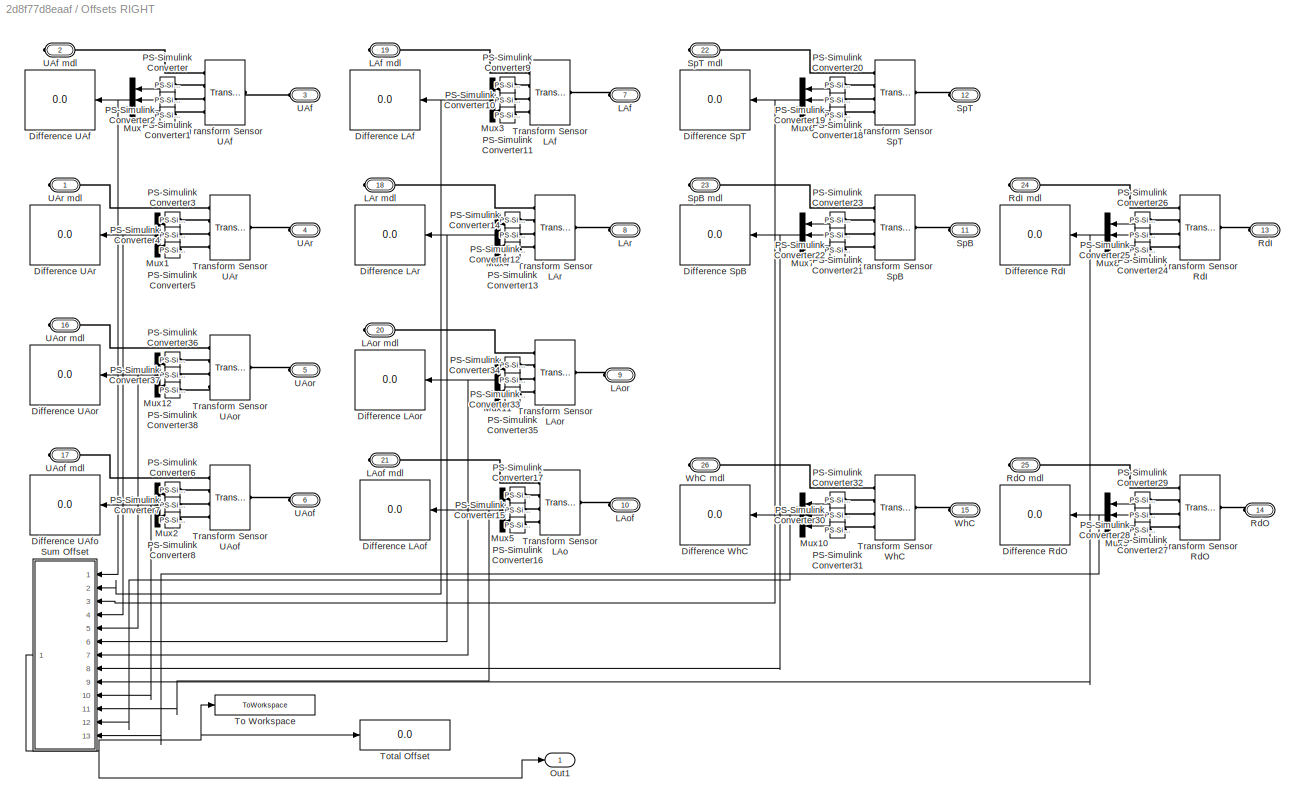
BLOCK [SubSystem] Offsets RIGHT
  Ports = [0, 1, 0, 0, 0, 13, 13]
  RequestExecContextInheritance = off
BLOCK [Display] Offsets RIGHT/Difference LAf
  Decimation = 1
  Ports = [1]
BLOCK [Display] Offsets RIGHT/Difference LAof
  Decimation = 1
  Ports = [1]
BLOCK [Display] Offsets RIGHT/Difference LAor
  Decimation = 1
  Ports = [1]
BLOCK [Display] Offsets RIGHT/Difference LAr
  Decimation = 1
  Ports = [1]
BLOCK [Display] Offsets RIGHT/Difference RdI
  Decimation = 1
  Ports = [1]
BLOCK [Display] Offsets RIGHT/Difference RdO
  Decimation = 1
  Ports = [1]
BLOCK [Display] Offsets RIGHT/Difference SpB
  Decimation = 1
  Ports = [1]
BLOCK [Display] Offsets RIGHT/Difference SpT
  Decimation = 1
  Ports = [1]
BLOCK [Display] Offsets RIGHT/Difference UAf
  Decimation = 1
  Ports = [1]
BLOCK [Display] Offsets RIGHT/Difference UAfo
  Decimation = 1
  Ports = [1]
BLOCK [Display] Offsets RIGHT/Difference UAor
  Decimation = 1
  Ports = [1]
BLOCK [Display] Offsets RIGHT/Difference UAr
  Decimation = 1
  Ports = [1]
BLOCK [Display] Offsets RIGHT/Difference WhC
  Decimation = 1
  Ports = [1]
BLOCK [PMIOPort] Offsets RIGHT/LAf
  Port = 7
  Side = Left
BLOCK [PMIOPort] Offsets RIGHT/LAf mdl
  NameLocation = top
  Port = 19
  Side = Right
BLOCK [PMIOPort] Offsets RIGHT/LAof
  Port = 10
  Side = Left
BLOCK [PMIOPort] Offsets RIGHT/LAof mdl
  NameLocation = top
  Port = 21
  Side = Right
BLOCK [PMIOPort] Offsets RIGHT/LAor
  Port = 9
  Side = Left
BLOCK [PMIOPort] Offsets RIGHT/LAor mdl
  NameLocation = top
  Port = 20
  Side = Right
BLOCK [PMIOPort] Offsets RIGHT/LAr
  Port = 8
  Side = Left
BLOCK [PMIOPort] Offsets RIGHT/LAr mdl
  NameLocation = top
  Port = 18
  Side = Right
BLOCK [Mux] Offsets RIGHT/Mux
  DisplayOption = bar
  Inputs = 3
  Ports = [3, 1]
BLOCK [Mux] Offsets RIGHT/Mux1
  DisplayOption = bar
  Inputs = 3
  Ports = [3, 1]
BLOCK [Mux] Offsets RIGHT/Mux10
  DisplayOption = bar
  Inputs = 3
  Ports = [3, 1]
BLOCK [Mux] Offsets RIGHT/Mux11
  DisplayOption = bar
  Inputs = 3
  Ports = [3, 1]
BLOCK [Mux] Offsets RIGHT/Mux12
  DisplayOption = bar
  Inputs = 3
  Ports = [3, 1]
BLOCK [Mux] Offsets RIGHT/Mux2
  DisplayOption = bar
  Inputs = 3
  Ports = [3, 1]
BLOCK [Mux] Offsets RIGHT/Mux3
  DisplayOption = bar
  Inputs = 3
  Ports = [3, 1]
BLOCK [Mux] Offsets RIGHT/Mux4
  DisplayOption = bar
  Inputs = 3
  Ports = [3, 1]
BLOCK [Mux] Offsets RIGHT/Mux5
  DisplayOption = bar
  Inputs = 3
  Ports = [3, 1]
BLOCK [Mux] Offsets RIGHT/Mux6
  DisplayOption = bar
  Inputs = 3
  Ports = [3, 1]
BLOCK [Mux] Offsets RIGHT/Mux7
  DisplayOption = bar
  Inputs = 3
  Ports = [3, 1]
BLOCK [Mux] Offsets RIGHT/Mux8
  DisplayOption = bar
  Inputs = 3
  Ports = [3, 1]
BLOCK [Mux] Offsets RIGHT/Mux9
  DisplayOption = bar
  Inputs = 3
  Ports = [3, 1]
BLOCK [Outport] Offsets RIGHT/Out1
  VectorParamsAs1DForOutWhenUnconnected = off
BLOCK [Reference] Offsets RIGHT/PS-Simulink Converter  REF=nesl_utility/PS-Simulink
Converter
  Ports = [0, 1, 0, 0, 0, 1]
  SourceBlock = nesl_utility/PS-Simulink\nConverter
  SourceProductBaseCode = SS,PW,VE
  SourceType = PS-Simulink\nConverter
BLOCK [Reference] Offsets RIGHT/PS-Simulink Converter1  REF=nesl_utility/PS-Simulink
Converter
  Ports = [0, 1, 0, 0, 0, 1]
  SourceBlock = nesl_utility/PS-Simulink\nConverter
  SourceProductBaseCode = SS,PW,VE
  SourceType = PS-Simulink\nConverter
BLOCK [Reference] Offsets RIGHT/PS-Simulink Converter10  REF=nesl_utility/PS-Simulink
Converter
  Ports = [0, 1, 0, 0, 0, 1]
  SourceBlock = nesl_utility/PS-Simulink\nConverter
  SourceProductBaseCode = SS,PW,VE
  SourceType = PS-Simulink\nConverter
BLOCK [Reference] Offsets RIGHT/PS-Simulink Converter11  REF=nesl_utility/PS-Simulink
Converter
  Ports = [0, 1, 0, 0, 0, 1]
  SourceBlock = nesl_utility/PS-Simulink\nConverter
  SourceProductBaseCode = SS,PW,VE
  SourceType = PS-Simulink\nConverter
BLOCK [Reference] Offsets RIGHT/PS-Simulink Converter12  REF=nesl_utility/PS-Simulink
Converter
  Ports = [0, 1, 0, 0, 0, 1]
  SourceBlock = nesl_utility/PS-Simulink\nConverter
  SourceProductBaseCode = SS,PW,VE
  SourceType = PS-Simulink\nConverter
BLOCK [Reference] Offsets RIGHT/PS-Simulink Converter13  REF=nesl_utility/PS-Simulink
Converter
  Ports = [0, 1, 0, 0, 0, 1]
  SourceBlock = nesl_utility/PS-Simulink\nConverter
  SourceProductBaseCode = SS,PW,VE
  SourceType = PS-Simulink\nConverter
BLOCK [Reference] Offsets RIGHT/PS-Simulink Converter14  REF=nesl_utility/PS-Simulink
Converter
  Ports = [0, 1, 0, 0, 0, 1]
  SourceBlock = nesl_utility/PS-Simulink\nConverter
  SourceProductBaseCode = SS,PW,VE
  SourceType = PS-Simulink\nConverter
BLOCK [Reference] Offsets RIGHT/PS-Simulink Converter15  REF=nesl_utility/PS-Simulink
Converter
  Ports = [0, 1, 0, 0, 0, 1]
  SourceBlock = nesl_utility/PS-Simulink\nConverter
  SourceProductBaseCode = SS,PW,VE
  SourceType = PS-Simulink\nConverter
BLOCK [Reference] Offsets RIGHT/PS-Simulink Converter16  REF=nesl_utility/PS-Simulink
Converter
  Ports = [0, 1, 0, 0, 0, 1]
  SourceBlock = nesl_utility/PS-Simulink\nConverter
  SourceProductBaseCode = SS,PW,VE
  SourceType = PS-Simulink\nConverter
BLOCK [Reference] Offsets RIGHT/PS-Simulink Converter17  REF=nesl_utility/PS-Simulink
Converter
  Ports = [0, 1, 0, 0, 0, 1]
  SourceBlock = nesl_utility/PS-Simulink\nConverter
  SourceProductBaseCode = SS,PW,VE
  SourceType = PS-Simulink\nConverter
BLOCK [Reference] Offsets RIGHT/PS-Simulink Converter18  REF=nesl_utility/PS-Simulink
Converter
  Ports = [0, 1, 0, 0, 0, 1]
  SourceBlock = nesl_utility/PS-Simulink\nConverter
  SourceProductBaseCode = SS,PW,VE
  SourceType = PS-Simulink\nConverter
BLOCK [Reference] Offsets RIGHT/PS-Simulink Converter19  REF=nesl_utility/PS-Simulink
Converter
  Ports = [0, 1, 0, 0, 0, 1]
  SourceBlock = nesl_utility/PS-Simulink\nConverter
  SourceProductBaseCode = SS,PW,VE
  SourceType = PS-Simulink\nConverter
BLOCK [Reference] Offsets RIGHT/PS-Simulink Converter2  REF=nesl_utility/PS-Simulink
Converter
  Ports = [0, 1, 0, 0, 0, 1]
  SourceBlock = nesl_utility/PS-Simulink\nConverter
  SourceProductBaseCode = SS,PW,VE
  SourceType = PS-Simulink\nConverter
BLOCK [Reference] Offsets RIGHT/PS-Simulink Converter20  REF=nesl_utility/PS-Simulink
Converter
  Ports = [0, 1, 0, 0, 0, 1]
  SourceBlock = nesl_utility/PS-Simulink\nConverter
  SourceProductBaseCode = SS,PW,VE
  SourceType = PS-Simulink\nConverter
BLOCK [Reference] Offsets RIGHT/PS-Simulink Converter21  REF=nesl_utility/PS-Simulink
Converter
  Ports = [0, 1, 0, 0, 0, 1]
  SourceBlock = nesl_utility/PS-Simulink\nConverter
  SourceProductBaseCode = SS,PW,VE
  SourceType = PS-Simulink\nConverter
BLOCK [Reference] Offsets RIGHT/PS-Simulink Converter22  REF=nesl_utility/PS-Simulink
Converter
  Ports = [0, 1, 0, 0, 0, 1]
  SourceBlock = nesl_utility/PS-Simulink\nConverter
  SourceProductBaseCode = SS,PW,VE
  SourceType = PS-Simulink\nConverter
BLOCK [Reference] Offsets RIGHT/PS-Simulink Converter23  REF=nesl_utility/PS-Simulink
Converter
  Ports = [0, 1, 0, 0, 0, 1]
  SourceBlock = nesl_utility/PS-Simulink\nConverter
  SourceProductBaseCode = SS,PW,VE
  SourceType = PS-Simulink\nConverter
BLOCK [Reference] Offsets RIGHT/PS-Simulink Converter24  REF=nesl_utility/PS-Simulink
Converter
  Ports = [0, 1, 0, 0, 0, 1]
  SourceBlock = nesl_utility/PS-Simulink\nConverter
  SourceProductBaseCode = SS,PW,VE
  SourceType = PS-Simulink\nConverter
BLOCK [Reference] Offsets RIGHT/PS-Simulink Converter25  REF=nesl_utility/PS-Simulink
Converter
  Ports = [0, 1, 0, 0, 0, 1]
  SourceBlock = nesl_utility/PS-Simulink\nConverter
  SourceProductBaseCode = SS,PW,VE
  SourceType = PS-Simulink\nConverter
BLOCK [Reference] Offsets RIGHT/PS-Simulink Converter26  REF=nesl_utility/PS-Simulink
Converter
  Ports = [0, 1, 0, 0, 0, 1]
  SourceBlock = nesl_utility/PS-Simulink\nConverter
  SourceProductBaseCode = SS,PW,VE
  SourceType = PS-Simulink\nConverter
BLOCK [Reference] Offsets RIGHT/PS-Simulink Converter27  REF=nesl_utility/PS-Simulink
Converter
  Ports = [0, 1, 0, 0, 0, 1]
  SourceBlock = nesl_utility/PS-Simulink\nConverter
  SourceProductBaseCode = SS,PW,VE
  SourceType = PS-Simulink\nConverter
BLOCK [Reference] Offsets RIGHT/PS-Simulink Converter28  REF=nesl_utility/PS-Simulink
Converter
  Ports = [0, 1, 0, 0, 0, 1]
  SourceBlock = nesl_utility/PS-Simulink\nConverter
  SourceProductBaseCode = SS,PW,VE
  SourceType = PS-Simulink\nConverter
BLOCK [Reference] Offsets RIGHT/PS-Simulink Converter29  REF=nesl_utility/PS-Simulink
Converter
  Ports = [0, 1, 0, 0, 0, 1]
  SourceBlock = nesl_utility/PS-Simulink\nConverter
  SourceProductBaseCode = SS,PW,VE
  SourceType = PS-Simulink\nConverter
BLOCK [Reference] Offsets RIGHT/PS-Simulink Converter3  REF=nesl_utility/PS-Simulink
Converter
  Ports = [0, 1, 0, 0, 0, 1]
  SourceBlock = nesl_utility/PS-Simulink\nConverter
  SourceProductBaseCode = SS,PW,VE
  SourceType = PS-Simulink\nConverter
BLOCK [Reference] Offsets RIGHT/PS-Simulink Converter30  REF=nesl_utility/PS-Simulink
Converter
  Ports = [0, 1, 0, 0, 0, 1]
  SourceBlock = nesl_utility/PS-Simulink\nConverter
  SourceProductBaseCode = SS,PW,VE
  SourceType = PS-Simulink\nConverter
BLOCK [Reference] Offsets RIGHT/PS-Simulink Converter31  REF=nesl_utility/PS-Simulink
Converter
  Ports = [0, 1, 0, 0, 0, 1]
  SourceBlock = nesl_utility/PS-Simulink\nConverter
  SourceProductBaseCode = SS,PW,VE
  SourceType = PS-Simulink\nConverter
BLOCK [Reference] Offsets RIGHT/PS-Simulink Converter32  REF=nesl_utility/PS-Simulink
Converter
  Ports = [0, 1, 0, 0, 0, 1]
  SourceBlock = nesl_utility/PS-Simulink\nConverter
  SourceProductBaseCode = SS,PW,VE
  SourceType = PS-Simulink\nConverter
BLOCK [Reference] Offsets RIGHT/PS-Simulink Converter33  REF=nesl_utility/PS-Simulink
Converter
  Ports = [0, 1, 0, 0, 0, 1]
  SourceBlock = nesl_utility/PS-Simulink\nConverter
  SourceProductBaseCode = SS,PW,VE
  SourceType = PS-Simulink\nConverter
BLOCK [Reference] Offsets RIGHT/PS-Simulink Converter34  REF=nesl_utility/PS-Simulink
Converter
  Ports = [0, 1, 0, 0, 0, 1]
  SourceBlock = nesl_utility/PS-Simulink\nConverter
  SourceProductBaseCode = SS,PW,VE
  SourceType = PS-Simulink\nConverter
BLOCK [Reference] Offsets RIGHT/PS-Simulink Converter35  REF=nesl_utility/PS-Simulink
Converter
  Ports = [0, 1, 0, 0, 0, 1]
  SourceBlock = nesl_utility/PS-Simulink\nConverter
  SourceProductBaseCode = SS,PW,VE
  SourceType = PS-Simulink\nConverter
BLOCK [Reference] Offsets RIGHT/PS-Simulink Converter36  REF=nesl_utility/PS-Simulink
Converter
  Ports = [0, 1, 0, 0, 0, 1]
  SourceBlock = nesl_utility/PS-Simulink\nConverter
  SourceProductBaseCode = SS,PW,VE
  SourceType = PS-Simulink\nConverter
BLOCK [Reference] Offsets RIGHT/PS-Simulink Converter37  REF=nesl_utility/PS-Simulink
Converter
  Ports = [0, 1, 0, 0, 0, 1]
  SourceBlock = nesl_utility/PS-Simulink\nConverter
  SourceProductBaseCode = SS,PW,VE
  SourceType = PS-Simulink\nConverter
BLOCK [Reference] Offsets RIGHT/PS-Simulink Converter38  REF=nesl_utility/PS-Simulink
Converter
  Ports = [0, 1, 0, 0, 0, 1]
  SourceBlock = nesl_utility/PS-Simulink\nConverter
  SourceProductBaseCode = SS,PW,VE
  SourceType = PS-Simulink\nConverter
BLOCK [Reference] Offsets RIGHT/PS-Simulink Converter4  REF=nesl_utility/PS-Simulink
Converter
  Ports = [0, 1, 0, 0, 0, 1]
  SourceBlock = nesl_utility/PS-Simulink\nConverter
  SourceProductBaseCode = SS,PW,VE
  SourceType = PS-Simulink\nConverter
BLOCK [Reference] Offsets RIGHT/PS-Simulink Converter5  REF=nesl_utility/PS-Simulink
Converter
  Ports = [0, 1, 0, 0, 0, 1]
  SourceBlock = nesl_utility/PS-Simulink\nConverter
  SourceProductBaseCode = SS,PW,VE
  SourceType = PS-Simulink\nConverter
BLOCK [Reference] Offsets RIGHT/PS-Simulink Converter6  REF=nesl_utility/PS-Simulink
Converter
  Ports = [0, 1, 0, 0, 0, 1]
  SourceBlock = nesl_utility/PS-Simulink\nConverter
  SourceProductBaseCode = SS,PW,VE
  SourceType = PS-Simulink\nConverter
BLOCK [Reference] Offsets RIGHT/PS-Simulink Converter7  REF=nesl_utility/PS-Simulink
Converter
  Ports = [0, 1, 0, 0, 0, 1]
  SourceBlock = nesl_utility/PS-Simulink\nConverter
  SourceProductBaseCode = SS,PW,VE
  SourceType = PS-Simulink\nConverter
BLOCK [Reference] Offsets RIGHT/PS-Simulink Converter8  REF=nesl_utility/PS-Simulink
Converter
  Ports = [0, 1, 0, 0, 0, 1]
  SourceBlock = nesl_utility/PS-Simulink\nConverter
  SourceProductBaseCode = SS,PW,VE
  SourceType = PS-Simulink\nConverter
BLOCK [Reference] Offsets RIGHT/PS-Simulink Converter9  REF=nesl_utility/PS-Simulink
Converter
  Ports = [0, 1, 0, 0, 0, 1]
  SourceBlock = nesl_utility/PS-Simulink\nConverter
  SourceProductBaseCode = SS,PW,VE
  SourceType = PS-Simulink\nConverter
BLOCK [PMIOPort] Offsets RIGHT/RdI
  Port = 13
  Side = Left
BLOCK [PMIOPort] Offsets RIGHT/RdI mdl
  NameLocation = top
  Port = 24
  Side = Right
BLOCK [PMIOPort] Offsets RIGHT/RdO
  Port = 14
  Side = Left
BLOCK [PMIOPort] Offsets RIGHT/RdO mdl
  NameLocation = top
  Port = 25
  Side = Right
BLOCK [PMIOPort] Offsets RIGHT/SpB
  Port = 11
  Side = Left
BLOCK [PMIOPort] Offsets RIGHT/SpB mdl
  NameLocation = top
  Port = 23
  Side = Right
BLOCK [PMIOPort] Offsets RIGHT/SpT
  Port = 12
  Side = Left
BLOCK [PMIOPort] Offsets RIGHT/SpT mdl
  NameLocation = top
  Port = 22
  Side = Right
BLOCK [SubSystem] Offsets RIGHT/Sum Offset
  Ports = [13, 1]
  RequestExecContextInheritance = off
BLOCK [Fcn] Offsets RIGHT/Sum Offset/Fcn
  Expr = sqrt(u(1)^2+u(2)^2+u(3)^2)
BLOCK [Fcn] Offsets RIGHT/Sum Offset/Fcn1
  Expr = sqrt(u(1)^2+u(2)^2+u(3)^2)
BLOCK [Fcn] Offsets RIGHT/Sum Offset/Fcn10
  Expr = sqrt(u(1)^2+u(2)^2+u(3)^2)
BLOCK [Fcn] Offsets RIGHT/Sum Offset/Fcn11
  Expr = sqrt(u(1)^2+u(2)^2+u(3)^2)
BLOCK [Fcn] Offsets RIGHT/Sum Offset/Fcn12
  Expr = sqrt(u(1)^2+u(2)^2+u(3)^2)
BLOCK [Fcn] Offsets RIGHT/Sum Offset/Fcn2
  Expr = sqrt(u(1)^2+u(2)^2+u(3)^2)
BLOCK [Fcn] Offsets RIGHT/Sum Offset/Fcn3
  Expr = sqrt(u(1)^2+u(2)^2+u(3)^2)
BLOCK [Fcn] Offsets RIGHT/Sum Offset/Fcn4
  Expr = sqrt(u(1)^2+u(2)^2+u(3)^2)
BLOCK [Fcn] Offsets RIGHT/Sum Offset/Fcn5
  Expr = sqrt(u(1)^2+u(2)^2+u(3)^2)
BLOCK [Fcn] Offsets RIGHT/Sum Offset/Fcn6
  Expr = sqrt(u(1)^2+u(2)^2+u(3)^2)
BLOCK [Fcn] Offsets RIGHT/Sum Offset/Fcn7
  Expr = sqrt(u(1)^2+u(2)^2+u(3)^2)
BLOCK [Fcn] Offsets RIGHT/Sum Offset/Fcn8
  Expr = sqrt(u(1)^2+u(2)^2+u(3)^2)
BLOCK [Fcn] Offsets RIGHT/Sum Offset/Fcn9
  Expr = sqrt(u(1)^2+u(2)^2+u(3)^2)
BLOCK [Inport] Offsets RIGHT/Sum Offset/In1
BLOCK [Inport] Offsets RIGHT/Sum Offset/In10
  Port = 12
BLOCK [Inport] Offsets RIGHT/Sum Offset/In11
  Port = 13
BLOCK [Inport] Offsets RIGHT/Sum Offset/In12
  Port = 5
BLOCK [Inport] Offsets RIGHT/Sum Offset/In13
  Port = 7
BLOCK [Inport] Offsets RIGHT/Sum Offset/In2
  Port = 2
BLOCK [Inport] Offsets RIGHT/Sum Offset/In3
  Port = 3
BLOCK [Inport] Offsets RIGHT/Sum Offset/In4
  Port = 4
BLOCK [Inport] Offsets RIGHT/Sum Offset/In5
  Port = 6
BLOCK [Inport] Offsets RIGHT/Sum Offset/In6
  Port = 8
BLOCK [Inport] Offsets RIGHT/Sum Offset/In7
  Port = 9
BLOCK [Inport] Offsets RIGHT/Sum Offset/In8
  Port = 10
BLOCK [Inport] Offsets RIGHT/Sum Offset/In9
  Port = 11
BLOCK [Mux] Offsets RIGHT/Sum Offset/Mux11
  DisplayOption = bar
  Inputs = 13
  NameLocation = top
  Ports = [13, 1]
BLOCK [Outport] Offsets RIGHT/Sum Offset/Out1
  VectorParamsAs1DForOutWhenUnconnected = off
BLOCK [Sum] Offsets RIGHT/Sum Offset/Sum
  Inputs = +
  Ports = [1, 1]
BLOCK [ToWorkspace] Offsets RIGHT/To Workspace
  FixptAsFi = on
  MaxDataPoints = inf
  Ports = [1]
  SampleTime = -1
  SaveFormat = Timeseries
  VariableName = HP_Offset_RIGHT
BLOCK [Display] Offsets RIGHT/Total Offset
  Decimation = 1
  Ports = [1]
BLOCK [Reference] Offsets RIGHT/Transform Sensor LAf  REF=sm_lib/Frames and
Transforms/Transform
Sensor
  Ports = [0, 0, 0, 0, 0, 1, 4]
  SourceBlock = sm_lib/Frames and\nTransforms/Transform\nSensor
  SourceProductBaseCode = MS
  SourceType = Transform\nSensor
BLOCK [Reference] Offsets RIGHT/Transform Sensor LAo  REF=sm_lib/Frames and
Transforms/Transform
Sensor
  Ports = [0, 0, 0, 0, 0, 1, 4]
  SourceBlock = sm_lib/Frames and\nTransforms/Transform\nSensor
  SourceProductBaseCode = MS
  SourceType = Transform\nSensor
BLOCK [Reference] Offsets RIGHT/Transform Sensor LAor  REF=sm_lib/Frames and
Transforms/Transform
Sensor
  Ports = [0, 0, 0, 0, 0, 1, 4]
  SourceBlock = sm_lib/Frames and\nTransforms/Transform\nSensor
  SourceProductBaseCode = MS
  SourceType = Transform\nSensor
BLOCK [Reference] Offsets RIGHT/Transform Sensor LAr  REF=sm_lib/Frames and
Transforms/Transform
Sensor
  Ports = [0, 0, 0, 0, 0, 1, 4]
  SourceBlock = sm_lib/Frames and\nTransforms/Transform\nSensor
  SourceProductBaseCode = MS
  SourceType = Transform\nSensor
BLOCK [Reference] Offsets RIGHT/Transform Sensor RdI  REF=sm_lib/Frames and
Transforms/Transform
Sensor
  Ports = [0, 0, 0, 0, 0, 1, 4]
  SourceBlock = sm_lib/Frames and\nTransforms/Transform\nSensor
  SourceProductBaseCode = MS
  SourceType = Transform\nSensor
BLOCK [Reference] Offsets RIGHT/Transform Sensor RdO  REF=sm_lib/Frames and
Transforms/Transform
Sensor
  Ports = [0, 0, 0, 0, 0, 1, 4]
  SourceBlock = sm_lib/Frames and\nTransforms/Transform\nSensor
  SourceProductBaseCode = MS
  SourceType = Transform\nSensor
BLOCK [Reference] Offsets RIGHT/Transform Sensor SpB  REF=sm_lib/Frames and
Transforms/Transform
Sensor
  Ports = [0, 0, 0, 0, 0, 1, 4]
  SourceBlock = sm_lib/Frames and\nTransforms/Transform\nSensor
  SourceProductBaseCode = MS
  SourceType = Transform\nSensor
BLOCK [Reference] Offsets RIGHT/Transform Sensor SpT  REF=sm_lib/Frames and
Transforms/Transform
Sensor
  Ports = [0, 0, 0, 0, 0, 1, 4]
  SourceBlock = sm_lib/Frames and\nTransforms/Transform\nSensor
  SourceProductBaseCode = MS
  SourceType = Transform\nSensor
BLOCK [Reference] Offsets RIGHT/Transform Sensor UAf  REF=sm_lib/Frames and
Transforms/Transform
Sensor
  Ports = [0, 0, 0, 0, 0, 1, 4]
  SourceBlock = sm_lib/Frames and\nTransforms/Transform\nSensor
  SourceProductBaseCode = MS
  SourceType = Transform\nSensor
BLOCK [Reference] Offsets RIGHT/Transform Sensor UAof  REF=sm_lib/Frames and
Transforms/Transform
Sensor
  Ports = [0, 0, 0, 0, 0, 1, 4]
  SourceBlock = sm_lib/Frames and\nTransforms/Transform\nSensor
  SourceProductBaseCode = MS
  SourceType = Transform\nSensor
BLOCK [Reference] Offsets RIGHT/Transform Sensor UAor  REF=sm_lib/Frames and
Transforms/Transform
Sensor
  Ports = [0, 0, 0, 0, 0, 1, 4]
  SourceBlock = sm_lib/Frames and\nTransforms/Transform\nSensor
  SourceProductBaseCode = MS
  SourceType = Transform\nSensor
BLOCK [Reference] Offsets RIGHT/Transform Sensor UAr  REF=sm_lib/Frames and
Transforms/Transform
Sensor
  Ports = [0, 0, 0, 0, 0, 1, 4]
  SourceBlock = sm_lib/Frames and\nTransforms/Transform\nSensor
  SourceProductBaseCode = MS
  SourceType = Transform\nSensor
BLOCK [Reference] Offsets RIGHT/Transform Sensor WhC  REF=sm_lib/Frames and
Transforms/Transform
Sensor
  Ports = [0, 0, 0, 0, 0, 1, 4]
  SourceBlock = sm_lib/Frames and\nTransforms/Transform\nSensor
  SourceProductBaseCode = MS
  SourceType = Transform\nSensor
BLOCK [PMIOPort] Offsets RIGHT/UAf
  Port = 3
  Side = Left
BLOCK [PMIOPort] Offsets RIGHT/UAf mdl
  NameLocation = top
  Port = 2
  Side = Right
BLOCK [PMIOPort] Offsets RIGHT/UAof
  Port = 6
  Side = Left
BLOCK [PMIOPort] Offsets RIGHT/UAof mdl
  NameLocation = top
  Port = 17
  Side = Right
BLOCK [PMIOPort] Offsets RIGHT/UAor
  Port = 5
  Side = Left
BLOCK [PMIOPort] Offsets RIGHT/UAor mdl
  NameLocation = top
  Port = 16
  Side = Right
BLOCK [PMIOPort] Offsets RIGHT/UAr
  Port = 4
  Side = Left
BLOCK [PMIOPort] Offsets RIGHT/UAr mdl
  NameLocation = top
  Side = Right
BLOCK [PMIOPort] Offsets RIGHT/WhC
  Port = 15
  Side = Left
BLOCK [PMIOPort] Offsets RIGHT/WhC mdl
  NameLocation = top
  Port = 26
  Side = Right
BLOCK [Scope] Scope
  Floating = off
  NumInputPorts = 2
  Ports = [2]
  ScopeSpecificationString = Simulink.scopes.TimeScopeBlockCfg('CurrentConfiguration', extmgr.ConfigurationSet(extmgr.Configuration('Core','General UI',true),extmgr.Configuration('Core','Source UI',true),extmgr.Configuration('Sources','WiredSimulink',true),extmgr.Configuration('Visuals','Time Domain',true,'SerializedDisplays',{struct('MinYLimReal','0.00000000044','MaxYLimReal','0.00000000098','YLabelReal','','MinYLimMag','0.0...<+1396ch>
BLOCK [SubSystem] Suspension
  Ports = [0, 0, 0, 0, 0, 14, 13]
  RequestExecContextInheritance = off
BLOCK [Reference] Suspension/Hardpoints LEFT  REF=Linkage_Link5_S2LAR/FiveLinkShockRear/Hardpoints
  Ports = [0, 0, 0, 0, 0, 5, 1]
  SourceBlock = Linkage_Link5_S2LAR/FiveLinkShockRear/Hardpoints
BLOCK [Reference] Suspension/Hardpoints RIGHT  REF=Linkage_Link5_S2LAR/FiveLinkShockRear/Hardpoints
  Ports = [0, 0, 0, 0, 0, 5, 1]
  SourceBlock = Linkage_Link5_S2LAR/FiveLinkShockRear/Hardpoints
BLOCK [Reference] Suspension/Inertia  REF=fl_lib/Mechanical/Rotational Elements/Inertia
  Ports = [0, 0, 0, 0, 0, 1]
  SourceBlock = fl_lib/Mechanical/Rotational Elements/Inertia
  SourceProductBaseCode = PW,SS,VE
  SourceType = Inertia
BLOCK [Reference] Suspension/Inertia1  REF=fl_lib/Mechanical/Rotational Elements/Inertia
  Ports = [0, 0, 0, 0, 0, 1]
  SourceBlock = fl_lib/Mechanical/Rotational Elements/Inertia
  SourceProductBaseCode = PW,SS,VE
  SourceType = Inertia
BLOCK [PMIOPort] Suspension/LAfL
  NameLocation = left
  Port = 8
  Side = Left
BLOCK [PMIOPort] Suspension/LAfR
  NameLocation = right
  Port = 22
  Side = Right
BLOCK [PMIOPort] Suspension/LAfoL
  NameLocation = right
  Port = 6
  Side = Left
BLOCK [PMIOPort] Suspension/LAfoR
  NameLocation = left
  Port = 20
  Side = Right
BLOCK [PMIOPort] Suspension/LArL
  NameLocation = left
  Port = 9
  Side = Left
BLOCK [PMIOPort] Suspension/LArR
  NameLocation = right
  Port = 23
  Side = Right
BLOCK [PMIOPort] Suspension/LAroL
  NameLocation = right
  Port = 7
  Side = Left
BLOCK [PMIOPort] Suspension/LAroR
  NameLocation = left
  Port = 21
  Side = Right
BLOCK [Reference] Suspension/Lower Arm Front LEFT  REF=Linkage_Link5_S2LAR/FiveLinkShockRear/Lower Arm Front
  Ports = [0, 0, 0, 0, 0, 1, 1]
  SourceBlock = Linkage_Link5_S2LAR/FiveLinkShockRear/Lower Arm Front
BLOCK [Reference] Suspension/Lower Arm Front RIGHT  REF=Linkage_Link5_S2LAR/FiveLinkShockRear/Lower Arm Front
  Ports = [0, 0, 0, 0, 0, 1, 1]
  SourceBlock = Linkage_Link5_S2LAR/FiveLinkShockRear/Lower Arm Front
BLOCK [Reference] Suspension/Lower Arm Rear LEFT  REF=Linkage_Link5_S2LAR/FiveLinkShockRear/Lower Arm Rear
  Ports = [0, 0, 0, 0, 0, 2, 1]
  SourceBlock = Linkage_Link5_S2LAR/FiveLinkShockRear/Lower Arm Rear
BLOCK [Reference] Suspension/Lower Arm Rear RIGHT  REF=Linkage_Link5_S2LAR/FiveLinkShockRear/Lower Arm Rear
  Ports = [0, 0, 0, 0, 0, 2, 1]
  SourceBlock = Linkage_Link5_S2LAR/FiveLinkShockRear/Lower Arm Rear
BLOCK [Reference] Suspension/Mass LEFT  REF=fl_lib/Mechanical/Translational
Elements/Mass
  NameLocation = top
  Ports = [0, 0, 0, 0, 0, 1]
  SourceBlock = fl_lib/Mechanical/Translational\nElements/Mass
  SourceProductBaseCode = PW,SS,VE
  SourceType = Mass
BLOCK [Reference] Suspension/Mass LEFT1  REF=fl_lib/Mechanical/Translational
Elements/Mass
  NameLocation = top
  Ports = [0, 0, 0, 0, 0, 1]
  SourceBlock = fl_lib/Mechanical/Translational\nElements/Mass
  SourceProductBaseCode = PW,SS,VE
  SourceType = Mass
BLOCK [PMIOPort] Suspension/RdIL
  NameLocation = left
  Port = 3
  Side = Left
BLOCK [PMIOPort] Suspension/RdIR
  NameLocation = left
  Port = 17
  Side = Right
BLOCK [PMIOPort] Suspension/RdOL
  NameLocation = left
  Port = 2
  Side = Left
BLOCK [PMIOPort] Suspension/RdOR
  NameLocation = right
  Port = 16
  Side = Right
BLOCK [Reference] Suspension/Reference Frame  REF=sm_lib/Frames and
Transforms/Reference
Frame
  Ports = [0, 0, 0, 0, 0, 0, 1]
  SourceBlock = sm_lib/Frames and\nTransforms/Reference\nFrame
  SourceProductBaseCode = MS
  SourceType = Reference\nFrame
BLOCK [Reference] Suspension/Reference Frame1  REF=sm_lib/Frames and
Transforms/Reference
Frame
  Ports = [0, 0, 0, 0, 0, 0, 1]
  SourceBlock = sm_lib/Frames and\nTransforms/Reference\nFrame
  SourceProductBaseCode = MS
  SourceType = Reference\nFrame
BLOCK [Reference] Suspension/Shock Absorber LEFT  REF=Linkage_Link5_S2LAR/FiveLinkShockRear/Shock Absorber
  Ports = [0, 0, 0, 0, 0, 1, 2]
  SourceBlock = Linkage_Link5_S2LAR/FiveLinkShockRear/Shock Absorber
BLOCK [Reference] Suspension/Shock Absorber RIGHT  REF=Linkage_Link5_S2LAR/FiveLinkShockRear/Shock Absorber
  Ports = [0, 0, 0, 0, 0, 1, 2]
  SourceBlock = Linkage_Link5_S2LAR/FiveLinkShockRear/Shock Absorber
BLOCK [Reference] Suspension/Solid  REF=sm_lib/Body Elements/Spherical Solid
  Ports = [0, 0, 0, 0, 0, 0, 1]
  SourceBlock = sm_lib/Body Elements/Spherical Solid
  SourceProductBaseCode = MS
  SourceType = Spherical Solid
BLOCK [Reference] Suspension/Solid1  REF=sm_lib/Body Elements/Spherical Solid
  Ports = [0, 0, 0, 0, 0, 0, 1]
  SourceBlock = sm_lib/Body Elements/Spherical Solid
  SourceProductBaseCode = MS
  SourceType = Spherical Solid
BLOCK [PMIOPort] Suspension/SpBR
  NameLocation = left
  Port = 18
  Side = Right
BLOCK [PMIOPort] Suspension/SpTL
  NameLocation = left
  Port = 5
  Side = Left
BLOCK [PMIOPort] Suspension/SpTR
  NameLocation = right
  Port = 19
  Side = Right
BLOCK [Reference] Suspension/Spherical LA Spring LEFT  REF=sm_lib/Joints/Spherical
Joint
  NameLocation = left
  Ports = [0, 0, 0, 0, 0, 1, 1]
  SourceBlock = sm_lib/Joints/Spherical\nJoint
  SourceProductBaseCode = MS
  SourceType = Spherical\nJoint
BLOCK [Reference] Suspension/Spherical LA Spring RIGHT  REF=sm_lib/Joints/Spherical
Joint
  NameLocation = right
  Ports = [0, 0, 0, 0, 0, 1, 1]
  SourceBlock = sm_lib/Joints/Spherical\nJoint
  SourceProductBaseCode = MS
  SourceType = Spherical\nJoint
BLOCK [Reference] Suspension/Spherical LAF Upright LEFT  REF=sm_lib/Joints/Spherical
Joint
  Ports = [0, 0, 0, 0, 0, 1, 1]
  SourceBlock = sm_lib/Joints/Spherical\nJoint
  SourceProductBaseCode = MS
  SourceType = Spherical\nJoint
BLOCK [Reference] Suspension/Spherical LAF Upright RIGHT  REF=sm_lib/Joints/Spherical
Joint
  Ports = [0, 0, 0, 0, 0, 1, 1]
  SourceBlock = sm_lib/Joints/Spherical\nJoint
  SourceProductBaseCode = MS
  SourceType = Spherical\nJoint
BLOCK [Reference] Suspension/Spherical LAR Upright LEFT  REF=sm_lib/Joints/Spherical
Joint
  Ports = [0, 0, 0, 0, 0, 1, 1]
  SourceBlock = sm_lib/Joints/Spherical\nJoint
  SourceProductBaseCode = MS
  SourceType = Spherical\nJoint
BLOCK [Reference] Suspension/Spherical LAR Upright RIGHT  REF=sm_lib/Joints/Spherical
Joint
  Ports = [0, 0, 0, 0, 0, 1, 1]
  SourceBlock = sm_lib/Joints/Spherical\nJoint
  SourceProductBaseCode = MS
  SourceType = Spherical\nJoint
BLOCK [Reference] Suspension/Spherical Rod Upright LEFT  REF=sm_lib/Joints/Spherical
Joint
  Ports = [0, 0, 0, 0, 0, 1, 1]
  SourceBlock = sm_lib/Joints/Spherical\nJoint
  SourceProductBaseCode = MS
  SourceType = Spherical\nJoint
BLOCK [Reference] Suspension/Spherical Rod Upright RIGHT  REF=sm_lib/Joints/Spherical
Joint
  Ports = [0, 0, 0, 0, 0, 1, 1]
  SourceBlock = sm_lib/Joints/Spherical\nJoint
  SourceProductBaseCode = MS
  SourceType = Spherical\nJoint
BLOCK [Reference] Suspension/Spherical UAF Upright LEFT  REF=sm_lib/Joints/Spherical
Joint
  Ports = [0, 0, 0, 0, 0, 1, 1]
  SourceBlock = sm_lib/Joints/Spherical\nJoint
  SourceProductBaseCode = MS
  SourceType = Spherical\nJoint
BLOCK [Reference] Suspension/Spherical UAF Upright RIGHT  REF=sm_lib/Joints/Spherical
Joint
  Ports = [0, 0, 0, 0, 0, 1, 1]
  SourceBlock = sm_lib/Joints/Spherical\nJoint
  SourceProductBaseCode = MS
  SourceType = Spherical\nJoint
BLOCK [Reference] Suspension/Spherical UAR Upright LEFT  REF=sm_lib/Joints/Spherical
Joint
  Ports = [0, 0, 0, 0, 0, 1, 1]
  SourceBlock = sm_lib/Joints/Spherical\nJoint
  SourceProductBaseCode = MS
  SourceType = Spherical\nJoint
BLOCK [Reference] Suspension/Spherical UAR Upright RIGHT  REF=sm_lib/Joints/Spherical
Joint
  Ports = [0, 0, 0, 0, 0, 1, 1]
  SourceBlock = sm_lib/Joints/Spherical\nJoint
  SourceProductBaseCode = MS
  SourceType = Spherical\nJoint
BLOCK [PMIOPort] Suspension/SprBL
  NameLocation = right
  Port = 4
  Side = Left
BLOCK [Reference] Suspension/Track Rod LEFT  REF=Linkage_Link5_S2LAR/FiveLinkShockRear/Track Rod
  Ports = [0, 0, 0, 0, 0, 1, 1]
  SourceBlock = Linkage_Link5_S2LAR/FiveLinkShockRear/Track Rod
BLOCK [Reference] Suspension/Track Rod RIGHT  REF=Linkage_Link5_S2LAR/FiveLinkShockRear/Track Rod
  Ports = [0, 0, 0, 0, 0, 1, 1]
  SourceBlock = Linkage_Link5_S2LAR/FiveLinkShockRear/Track Rod
BLOCK [Reference] Suspension/Transform Track Rod Inboard LEFT  REF=sm_lib/Frames and
Transforms/Rigid
Transform
  NameLocation = top
  Ports = [0, 0, 0, 0, 0, 1, 1]
  SourceBlock = sm_lib/Frames and\nTransforms/Rigid\nTransform
  SourceProductBaseCode = MS
  SourceType = Rigid\nTransform
BLOCK [Reference] Suspension/Transform Track Rod Inboard RIGHT  REF=sm_lib/Frames and
Transforms/Rigid
Transform
  NameLocation = top
  Ports = [0, 0, 0, 0, 0, 1, 1]
  SourceBlock = sm_lib/Frames and\nTransforms/Rigid\nTransform
  SourceProductBaseCode = MS
  SourceType = Rigid\nTransform
BLOCK [PMIOPort] Suspension/UAfL
  NameLocation = left
  Port = 12
  Side = Left
BLOCK [PMIOPort] Suspension/UAfR
  NameLocation = right
  Port = 26
  Side = Right
BLOCK [PMIOPort] Suspension/UAfoL
  NameLocation = right
  Port = 10
  Side = Left
BLOCK [PMIOPort] Suspension/UAfoR
  NameLocation = left
  Port = 24
  Side = Right
BLOCK [PMIOPort] Suspension/UArL
  NameLocation = left
  Port = 13
  Side = Left
BLOCK [PMIOPort] Suspension/UArR
  NameLocation = right
  Port = 27
  Side = Right
BLOCK [PMIOPort] Suspension/UAroL
  NameLocation = right
  Port = 11
  Side = Left
BLOCK [PMIOPort] Suspension/UAroR
  NameLocation = left
  Port = 25
  Side = Right
BLOCK [SubSystem] Suspension/Universal HP LAF LEFT
  Ports = [0, 0, 0, 0, 0, 1, 1]
  RequestExecContextInheritance = off
BLOCK [PMIOPort] Suspension/Universal HP LAF LEFT/B
  Port = 2
  Side = Left
BLOCK [PMIOPort] Suspension/Universal HP LAF LEFT/F
  Side = Right
BLOCK [Reference] Suspension/Universal HP LAF LEFT/Transform Align X RtoF In  REF=sm_car_lib/Utilities/Transform  (lib defined in slx_05426f0848b6, slx_5dc2867fb1c9)
Align Axis Two Points
  Ports = [0, 0, 0, 0, 0, 1, 1]
  SourceBlock = sm_car_lib/Utilities/Transform\nAlign Axis Two Points
  SourceType = Transform Align Axis Two Points
BLOCK [Reference] Suspension/Universal HP LAF LEFT/Transform Align X RtoF Out  REF=sm_car_lib/Utilities/Transform  (lib defined in slx_05426f0848b6, slx_5dc2867fb1c9)
Align Axis Two Points
  Ports = [0, 0, 0, 0, 0, 1, 1]
  SourceBlock = sm_car_lib/Utilities/Transform\nAlign Axis Two Points
  SourceType = Transform Align Axis Two Points
BLOCK [Reference] Suspension/Universal HP LAF LEFT/Transform Align Y Up In  REF=sm_lib/Frames and
Transforms/Rigid
Transform
  Ports = [0, 0, 0, 0, 0, 1, 1]
  SourceBlock = sm_lib/Frames and\nTransforms/Rigid\nTransform
  SourceProductBaseCode = MS
  SourceType = Rigid\nTransform
BLOCK [Reference] Suspension/Universal HP LAF LEFT/Transform Align Y Up Out  REF=sm_lib/Frames and
Transforms/Rigid
Transform
  Ports = [0, 0, 0, 0, 0, 1, 1]
  SourceBlock = sm_lib/Frames and\nTransforms/Rigid\nTransform
  SourceProductBaseCode = MS
  SourceType = Rigid\nTransform
BLOCK [Reference] Suspension/Universal HP LAF LEFT/Universal Joint   REF=sm_lib/Joints/Universal
Joint
  Ports = [0, 0, 0, 0, 0, 1, 1]
  SourceBlock = sm_lib/Joints/Universal\nJoint
  SourceProductBaseCode = MS
  SourceType = Universal\nJoint
BLOCK [SubSystem] Suspension/Universal HP LAF RIGHT
  Ports = [0, 0, 0, 0, 0, 1, 1]
  RequestExecContextInheritance = off
BLOCK [PMIOPort] Suspension/Universal HP LAF RIGHT/B
  Port = 2
  Side = Left
BLOCK [PMIOPort] Suspension/Universal HP LAF RIGHT/F
  Side = Right
BLOCK [Reference] Suspension/Universal HP LAF RIGHT/Transform Align X RtoF In  REF=sm_car_lib/Utilities/Transform  (lib defined in slx_05426f0848b6, slx_5dc2867fb1c9)
Align Axis Two Points
  Ports = [0, 0, 0, 0, 0, 1, 1]
  SourceBlock = sm_car_lib/Utilities/Transform\nAlign Axis Two Points
  SourceType = Transform Align Axis Two Points
BLOCK [Reference] Suspension/Universal HP LAF RIGHT/Transform Align X RtoF Out  REF=sm_car_lib/Utilities/Transform  (lib defined in slx_05426f0848b6, slx_5dc2867fb1c9)
Align Axis Two Points
  Ports = [0, 0, 0, 0, 0, 1, 1]
  SourceBlock = sm_car_lib/Utilities/Transform\nAlign Axis Two Points
  SourceType = Transform Align Axis Two Points
BLOCK [Reference] Suspension/Universal HP LAF RIGHT/Transform Align Y Up In  REF=sm_lib/Frames and
Transforms/Rigid
Transform
  Ports = [0, 0, 0, 0, 0, 1, 1]
  SourceBlock = sm_lib/Frames and\nTransforms/Rigid\nTransform
  SourceProductBaseCode = MS
  SourceType = Rigid\nTransform
BLOCK [Reference] Suspension/Universal HP LAF RIGHT/Transform Align Y Up Out  REF=sm_lib/Frames and
Transforms/Rigid
Transform
  Ports = [0, 0, 0, 0, 0, 1, 1]
  SourceBlock = sm_lib/Frames and\nTransforms/Rigid\nTransform
  SourceProductBaseCode = MS
  SourceType = Rigid\nTransform
BLOCK [Reference] Suspension/Universal HP LAF RIGHT/Universal Joint   REF=sm_lib/Joints/Universal
Joint
  Ports = [0, 0, 0, 0, 0, 1, 1]
  SourceBlock = sm_lib/Joints/Universal\nJoint
  SourceProductBaseCode = MS
  SourceType = Universal\nJoint
BLOCK [SubSystem] Suspension/Universal HP LAR LEFT
  Ports = [0, 0, 0, 0, 0, 1, 1]
  RequestExecContextInheritance = off
BLOCK [PMIOPort] Suspension/Universal HP LAR LEFT/B
  Port = 2
  Side = Left
BLOCK [PMIOPort] Suspension/Universal HP LAR LEFT/F
  Side = Right
BLOCK [Reference] Suspension/Universal HP LAR LEFT/Transform Align X RtoF In  REF=sm_car_lib/Utilities/Transform  (lib defined in slx_05426f0848b6, slx_5dc2867fb1c9)
Align Axis Two Points
  Ports = [0, 0, 0, 0, 0, 1, 1]
  SourceBlock = sm_car_lib/Utilities/Transform\nAlign Axis Two Points
  SourceType = Transform Align Axis Two Points
BLOCK [Reference] Suspension/Universal HP LAR LEFT/Transform Align X RtoF Out  REF=sm_car_lib/Utilities/Transform  (lib defined in slx_05426f0848b6, slx_5dc2867fb1c9)
Align Axis Two Points
  Ports = [0, 0, 0, 0, 0, 1, 1]
  SourceBlock = sm_car_lib/Utilities/Transform\nAlign Axis Two Points
  SourceType = Transform Align Axis Two Points
BLOCK [Reference] Suspension/Universal HP LAR LEFT/Transform Align Y Up In  REF=sm_lib/Frames and
Transforms/Rigid
Transform
  Ports = [0, 0, 0, 0, 0, 1, 1]
  SourceBlock = sm_lib/Frames and\nTransforms/Rigid\nTransform
  SourceProductBaseCode = MS
  SourceType = Rigid\nTransform
BLOCK [Reference] Suspension/Universal HP LAR LEFT/Transform Align Y Up Out  REF=sm_lib/Frames and
Transforms/Rigid
Transform
  Ports = [0, 0, 0, 0, 0, 1, 1]
  SourceBlock = sm_lib/Frames and\nTransforms/Rigid\nTransform
  SourceProductBaseCode = MS
  SourceType = Rigid\nTransform
BLOCK [Reference] Suspension/Universal HP LAR LEFT/Universal Joint   REF=sm_lib/Joints/Universal
Joint
  Ports = [0, 0, 0, 0, 0, 1, 1]
  SourceBlock = sm_lib/Joints/Universal\nJoint
  SourceProductBaseCode = MS
  SourceType = Universal\nJoint
BLOCK [SubSystem] Suspension/Universal HP LAR RIGHT
  Ports = [0, 0, 0, 0, 0, 1, 1]
  RequestExecContextInheritance = off
BLOCK [PMIOPort] Suspension/Universal HP LAR RIGHT/B
  Port = 2
  Side = Left
BLOCK [PMIOPort] Suspension/Universal HP LAR RIGHT/F
  Side = Right
BLOCK [Reference] Suspension/Universal HP LAR RIGHT/Transform Align X RtoF In  REF=sm_car_lib/Utilities/Transform  (lib defined in slx_05426f0848b6, slx_5dc2867fb1c9)
Align Axis Two Points
  Ports = [0, 0, 0, 0, 0, 1, 1]
  SourceBlock = sm_car_lib/Utilities/Transform\nAlign Axis Two Points
  SourceType = Transform Align Axis Two Points
BLOCK [Reference] Suspension/Universal HP LAR RIGHT/Transform Align X RtoF Out  REF=sm_car_lib/Utilities/Transform  (lib defined in slx_05426f0848b6, slx_5dc2867fb1c9)
Align Axis Two Points
  Ports = [0, 0, 0, 0, 0, 1, 1]
  SourceBlock = sm_car_lib/Utilities/Transform\nAlign Axis Two Points
  SourceType = Transform Align Axis Two Points
BLOCK [Reference] Suspension/Universal HP LAR RIGHT/Transform Align Y Up In  REF=sm_lib/Frames and
Transforms/Rigid
Transform
  Ports = [0, 0, 0, 0, 0, 1, 1]
  SourceBlock = sm_lib/Frames and\nTransforms/Rigid\nTransform
  SourceProductBaseCode = MS
  SourceType = Rigid\nTransform
BLOCK [Reference] Suspension/Universal HP LAR RIGHT/Transform Align Y Up Out  REF=sm_lib/Frames and
Transforms/Rigid
Transform
  Ports = [0, 0, 0, 0, 0, 1, 1]
  SourceBlock = sm_lib/Frames and\nTransforms/Rigid\nTransform
  SourceProductBaseCode = MS
  SourceType = Rigid\nTransform
BLOCK [Reference] Suspension/Universal HP LAR RIGHT/Universal Joint   REF=sm_lib/Joints/Universal
Joint
  Ports = [0, 0, 0, 0, 0, 1, 1]
  SourceBlock = sm_lib/Joints/Universal\nJoint
  SourceProductBaseCode = MS
  SourceType = Universal\nJoint
BLOCK [Reference] Suspension/Universal HP Spring LEFT  REF=sm_lib/Joints/Universal
Joint
  Ports = [0, 0, 0, 0, 0, 1, 1]
  SourceBlock = sm_lib/Joints/Universal\nJoint
  SourceProductBaseCode = MS
  SourceType = Universal\nJoint
BLOCK [Reference] Suspension/Universal HP Spring RIGHT  REF=sm_lib/Joints/Universal
Joint
  Ports = [0, 0, 0, 0, 0, 1, 1]
  SourceBlock = sm_lib/Joints/Universal\nJoint
  SourceProductBaseCode = MS
  SourceType = Universal\nJoint
BLOCK [SubSystem] Suspension/Universal HP UAF LEFT
  Ports = [0, 0, 0, 0, 0, 1, 1]
  RequestExecContextInheritance = off
BLOCK [PMIOPort] Suspension/Universal HP UAF LEFT/B
  Port = 2
  Side = Left
BLOCK [PMIOPort] Suspension/Universal HP UAF LEFT/F
  Side = Right
BLOCK [Reference] Suspension/Universal HP UAF LEFT/Transform Align X RtoF In  REF=sm_car_lib/Utilities/Transform  (lib defined in slx_05426f0848b6, slx_5dc2867fb1c9)
Align Axis Two Points
  Ports = [0, 0, 0, 0, 0, 1, 1]
  SourceBlock = sm_car_lib/Utilities/Transform\nAlign Axis Two Points
  SourceType = Transform Align Axis Two Points
BLOCK [Reference] Suspension/Universal HP UAF LEFT/Transform Align X RtoF Out  REF=sm_car_lib/Utilities/Transform  (lib defined in slx_05426f0848b6, slx_5dc2867fb1c9)
Align Axis Two Points
  Ports = [0, 0, 0, 0, 0, 1, 1]
  SourceBlock = sm_car_lib/Utilities/Transform\nAlign Axis Two Points
  SourceType = Transform Align Axis Two Points
BLOCK [Reference] Suspension/Universal HP UAF LEFT/Transform Align Y Up In  REF=sm_lib/Frames and
Transforms/Rigid
Transform
  Ports = [0, 0, 0, 0, 0, 1, 1]
  SourceBlock = sm_lib/Frames and\nTransforms/Rigid\nTransform
  SourceProductBaseCode = MS
  SourceType = Rigid\nTransform
BLOCK [Reference] Suspension/Universal HP UAF LEFT/Transform Align Y Up Out  REF=sm_lib/Frames and
Transforms/Rigid
Transform
  Ports = [0, 0, 0, 0, 0, 1, 1]
  SourceBlock = sm_lib/Frames and\nTransforms/Rigid\nTransform
  SourceProductBaseCode = MS
  SourceType = Rigid\nTransform
BLOCK [Reference] Suspension/Universal HP UAF LEFT/Universal Joint   REF=sm_lib/Joints/Universal
Joint
  Ports = [0, 0, 0, 0, 0, 1, 1]
  SourceBlock = sm_lib/Joints/Universal\nJoint
  SourceProductBaseCode = MS
  SourceType = Universal\nJoint
BLOCK [SubSystem] Suspension/Universal HP UAF RIGHT
  Ports = [0, 0, 0, 0, 0, 1, 1]
  RequestExecContextInheritance = off
BLOCK [PMIOPort] Suspension/Universal HP UAF RIGHT/B
  Port = 2
  Side = Left
BLOCK [PMIOPort] Suspension/Universal HP UAF RIGHT/F
  Side = Right
BLOCK [Reference] Suspension/Universal HP UAF RIGHT/Transform Align X RtoF In  REF=sm_car_lib/Utilities/Transform  (lib defined in slx_05426f0848b6, slx_5dc2867fb1c9)
Align Axis Two Points
  Ports = [0, 0, 0, 0, 0, 1, 1]
  SourceBlock = sm_car_lib/Utilities/Transform\nAlign Axis Two Points
  SourceType = Transform Align Axis Two Points
BLOCK [Reference] Suspension/Universal HP UAF RIGHT/Transform Align X RtoF Out  REF=sm_car_lib/Utilities/Transform  (lib defined in slx_05426f0848b6, slx_5dc2867fb1c9)
Align Axis Two Points
  Ports = [0, 0, 0, 0, 0, 1, 1]
  SourceBlock = sm_car_lib/Utilities/Transform\nAlign Axis Two Points
  SourceType = Transform Align Axis Two Points
BLOCK [Reference] Suspension/Universal HP UAF RIGHT/Transform Align Y Up In  REF=sm_lib/Frames and
Transforms/Rigid
Transform
  Ports = [0, 0, 0, 0, 0, 1, 1]
  SourceBlock = sm_lib/Frames and\nTransforms/Rigid\nTransform
  SourceProductBaseCode = MS
  SourceType = Rigid\nTransform
BLOCK [Reference] Suspension/Universal HP UAF RIGHT/Transform Align Y Up Out  REF=sm_lib/Frames and
Transforms/Rigid
Transform
  Ports = [0, 0, 0, 0, 0, 1, 1]
  SourceBlock = sm_lib/Frames and\nTransforms/Rigid\nTransform
  SourceProductBaseCode = MS
  SourceType = Rigid\nTransform
BLOCK [Reference] Suspension/Universal HP UAF RIGHT/Universal Joint   REF=sm_lib/Joints/Universal
Joint
  Ports = [0, 0, 0, 0, 0, 1, 1]
  SourceBlock = sm_lib/Joints/Universal\nJoint
  SourceProductBaseCode = MS
  SourceType = Universal\nJoint
BLOCK [SubSystem] Suspension/Universal HP UAR LEFT
  Ports = [0, 0, 0, 0, 0, 1, 1]
  RequestExecContextInheritance = off
BLOCK [PMIOPort] Suspension/Universal HP UAR LEFT/B
  Port = 2
  Side = Left
BLOCK [PMIOPort] Suspension/Universal HP UAR LEFT/F
  Side = Right
BLOCK [Reference] Suspension/Universal HP UAR LEFT/Transform Align X RtoF In  REF=sm_car_lib/Utilities/Transform  (lib defined in slx_05426f0848b6, slx_5dc2867fb1c9)
Align Axis Two Points
  Ports = [0, 0, 0, 0, 0, 1, 1]
  SourceBlock = sm_car_lib/Utilities/Transform\nAlign Axis Two Points
  SourceType = Transform Align Axis Two Points
BLOCK [Reference] Suspension/Universal HP UAR LEFT/Transform Align X RtoF Out  REF=sm_car_lib/Utilities/Transform  (lib defined in slx_05426f0848b6, slx_5dc2867fb1c9)
Align Axis Two Points
  Ports = [0, 0, 0, 0, 0, 1, 1]
  SourceBlock = sm_car_lib/Utilities/Transform\nAlign Axis Two Points
  SourceType = Transform Align Axis Two Points
BLOCK [Reference] Suspension/Universal HP UAR LEFT/Transform Align Y Up In  REF=sm_lib/Frames and
Transforms/Rigid
Transform
  Ports = [0, 0, 0, 0, 0, 1, 1]
  SourceBlock = sm_lib/Frames and\nTransforms/Rigid\nTransform
  SourceProductBaseCode = MS
  SourceType = Rigid\nTransform
BLOCK [Reference] Suspension/Universal HP UAR LEFT/Transform Align Y Up Out  REF=sm_lib/Frames and
Transforms/Rigid
Transform
  Ports = [0, 0, 0, 0, 0, 1, 1]
  SourceBlock = sm_lib/Frames and\nTransforms/Rigid\nTransform
  SourceProductBaseCode = MS
  SourceType = Rigid\nTransform
BLOCK [Reference] Suspension/Universal HP UAR LEFT/Universal Joint   REF=sm_lib/Joints/Universal
Joint
  Ports = [0, 0, 0, 0, 0, 1, 1]
  SourceBlock = sm_lib/Joints/Universal\nJoint
  SourceProductBaseCode = MS
  SourceType = Universal\nJoint
BLOCK [SubSystem] Suspension/Universal HP UAR RIGHT
  Ports = [0, 0, 0, 0, 0, 1, 1]
  RequestExecContextInheritance = off
BLOCK [PMIOPort] Suspension/Universal HP UAR RIGHT/B
  Port = 2
  Side = Left
BLOCK [PMIOPort] Suspension/Universal HP UAR RIGHT/F
  Side = Right
BLOCK [Reference] Suspension/Universal HP UAR RIGHT/Transform Align X RtoF In  REF=sm_car_lib/Utilities/Transform  (lib defined in slx_05426f0848b6, slx_5dc2867fb1c9)
Align Axis Two Points
  Ports = [0, 0, 0, 0, 0, 1, 1]
  SourceBlock = sm_car_lib/Utilities/Transform\nAlign Axis Two Points
  SourceType = Transform Align Axis Two Points
BLOCK [Reference] Suspension/Universal HP UAR RIGHT/Transform Align X RtoF Out  REF=sm_car_lib/Utilities/Transform  (lib defined in slx_05426f0848b6, slx_5dc2867fb1c9)
Align Axis Two Points
  Ports = [0, 0, 0, 0, 0, 1, 1]
  SourceBlock = sm_car_lib/Utilities/Transform\nAlign Axis Two Points
  SourceType = Transform Align Axis Two Points
BLOCK [Reference] Suspension/Universal HP UAR RIGHT/Transform Align Y Up In  REF=sm_lib/Frames and
Transforms/Rigid
Transform
  Ports = [0, 0, 0, 0, 0, 1, 1]
  SourceBlock = sm_lib/Frames and\nTransforms/Rigid\nTransform
  SourceProductBaseCode = MS
  SourceType = Rigid\nTransform
BLOCK [Reference] Suspension/Universal HP UAR RIGHT/Transform Align Y Up Out  REF=sm_lib/Frames and
Transforms/Rigid
Transform
  Ports = [0, 0, 0, 0, 0, 1, 1]
  SourceBlock = sm_lib/Frames and\nTransforms/Rigid\nTransform
  SourceProductBaseCode = MS
  SourceType = Rigid\nTransform
BLOCK [Reference] Suspension/Universal HP UAR RIGHT/Universal Joint   REF=sm_lib/Joints/Universal
Joint
  Ports = [0, 0, 0, 0, 0, 1, 1]
  SourceBlock = sm_lib/Joints/Universal\nJoint
  SourceProductBaseCode = MS
  SourceType = Universal\nJoint
BLOCK [SubSystem] Suspension/Universal Rack Rod LEFT
  Ports = [0, 0, 0, 0, 0, 1, 1]
  RequestExecContextInheritance = off
BLOCK [PMIOPort] Suspension/Universal Rack Rod LEFT/B
  Port = 2
  Side = Right
BLOCK [PMIOPort] Suspension/Universal Rack Rod LEFT/F
  Side = Left
BLOCK [Reference] Suspension/Universal Rack Rod LEFT/Transform Align Y Up In  REF=sm_lib/Frames and
Transforms/Rigid
Transform
  Ports = [0, 0, 0, 0, 0, 1, 1]
  SourceBlock = sm_lib/Frames and\nTransforms/Rigid\nTransform
  SourceProductBaseCode = MS
  SourceType = Rigid\nTransform
BLOCK [Reference] Suspension/Universal Rack Rod LEFT/Transform Align Y Up Out  REF=sm_lib/Frames and
Transforms/Rigid
Transform
  Ports = [0, 0, 0, 0, 0, 1, 1]
  SourceBlock = sm_lib/Frames and\nTransforms/Rigid\nTransform
  SourceProductBaseCode = MS
  SourceType = Rigid\nTransform
BLOCK [Reference] Suspension/Universal Rack Rod LEFT/Universal Joint  REF=sm_lib/Joints/Universal
Joint
  Ports = [0, 0, 0, 0, 0, 1, 1]
  SourceBlock = sm_lib/Joints/Universal\nJoint
  SourceProductBaseCode = MS
  SourceType = Universal\nJoint
BLOCK [SubSystem] Suspension/Universal Rack Rod RIGHT
  Ports = [0, 0, 0, 0, 0, 1, 1]
  RequestExecContextInheritance = off
BLOCK [PMIOPort] Suspension/Universal Rack Rod RIGHT/B
  Port = 2
  Side = Right
BLOCK [PMIOPort] Suspension/Universal Rack Rod RIGHT/F
  Side = Left
BLOCK [Reference] Suspension/Universal Rack Rod RIGHT/Transform Align Y Up In  REF=sm_lib/Frames and
Transforms/Rigid
Transform
  Ports = [0, 0, 0, 0, 0, 1, 1]
  SourceBlock = sm_lib/Frames and\nTransforms/Rigid\nTransform
  SourceProductBaseCode = MS
  SourceType = Rigid\nTransform
BLOCK [Reference] Suspension/Universal Rack Rod RIGHT/Transform Align Y Up Out  REF=sm_lib/Frames and
Transforms/Rigid
Transform
  Ports = [0, 0, 0, 0, 0, 1, 1]
  SourceBlock = sm_lib/Frames and\nTransforms/Rigid\nTransform
  SourceProductBaseCode = MS
  SourceType = Rigid\nTransform
BLOCK [Reference] Suspension/Universal Rack Rod RIGHT/Universal Joint  REF=sm_lib/Joints/Universal
Joint
  Ports = [0, 0, 0, 0, 0, 1, 1]
  SourceBlock = sm_lib/Joints/Universal\nJoint
  SourceProductBaseCode = MS
  SourceType = Universal\nJoint
BLOCK [Reference] Suspension/Universal Rod Upright LEFT  REF=sm_lib/Joints/Universal
Joint
  Ports = [0, 0, 0, 0, 0, 1, 1]
  SourceBlock = sm_lib/Joints/Universal\nJoint
  SourceProductBaseCode = MS
  SourceType = Universal\nJoint
BLOCK [Reference] Suspension/Universal Rod Upright RIGHT  REF=sm_lib/Joints/Universal
Joint
  Ports = [0, 0, 0, 0, 0, 1, 1]
  SourceBlock = sm_lib/Joints/Universal\nJoint
  SourceProductBaseCode = MS
  SourceType = Universal\nJoint
BLOCK [Reference] Suspension/Upper Arm Front LEFT  REF=Linkage_Link5_S2LAR/FiveLinkShockRear/Upper Arm Front
  Ports = [0, 0, 0, 0, 0, 1, 1]
  SourceBlock = Linkage_Link5_S2LAR/FiveLinkShockRear/Upper Arm Front
BLOCK [Reference] Suspension/Upper Arm Front RIGHT  REF=Linkage_Link5_S2LAR/FiveLinkShockRear/Upper Arm Front
  Ports = [0, 0, 0, 0, 0, 1, 1]
  SourceBlock = Linkage_Link5_S2LAR/FiveLinkShockRear/Upper Arm Front
BLOCK [Reference] Suspension/Upper Arm Rear LEFT  REF=Linkage_Link5_S2LAR/FiveLinkShockRear/Upper Arm Rear
  Ports = [0, 0, 0, 0, 0, 1, 1]
  SourceBlock = Linkage_Link5_S2LAR/FiveLinkShockRear/Upper Arm Rear
BLOCK [Reference] Suspension/Upper Arm Rear RIGHT  REF=Linkage_Link5_S2LAR/FiveLinkShockRear/Upper Arm Rear
  Ports = [0, 0, 0, 0, 0, 1, 1]
  SourceBlock = Linkage_Link5_S2LAR/FiveLinkShockRear/Upper Arm Rear
BLOCK [Reference] Suspension/Upright LEFT  REF=Linkage_Link5_S2LAR/FiveLinkShockRear/Upright
  Ports = [0, 0, 0, 0, 0, 5, 5]
  SourceBlock = Linkage_Link5_S2LAR/FiveLinkShockRear/Upright
BLOCK [Reference] Suspension/Upright RIGHT  REF=Linkage_Link5_S2LAR/FiveLinkShockRear/Upright
  Ports = [0, 0, 0, 0, 0, 5, 5]
  SourceBlock = Linkage_Link5_S2LAR/FiveLinkShockRear/Upright
BLOCK [PMIOPort] Suspension/W
  NameLocation = right
  Port = 14
  Side = Left
BLOCK [PMIOPort] Suspension/WhCL
  NameLocation = left
  Side = Left
BLOCK [PMIOPort] Suspension/WhCR
  NameLocation = right
  Port = 15
  Side = Right
BLOCK [Display] Total Offset
  Decimation = 1
  Ports = [1]
BLOCK [Display] Total Offset LEFT
  Decimation = 1
  Ports = [1]
BLOCK [Reference] World Frame  REF=sm_lib/Frames and
Transforms/World Frame
  Ports = [0, 0, 0, 0, 0, 0, 1]
  SourceBlock = sm_lib/Frames and\nTransforms/World Frame
  SourceProductBaseCode = MS
  SourceType = World Frame
ANNOTATION (root): Results of Test
ANNOTATION (root): Load data for Front 5 Link, Shk to R: Vehicle_080 Explore simulation results using sscexplore
ANNOTATION (root): Hardpoint Testrig for Five Link, Shock to Rear
NET Offsets LEFT/Mux10:1 -> Offsets LEFT/Difference WhC:1, Offsets LEFT/Sum Offset:12
NET Offsets LEFT/Mux11:1 -> Offsets LEFT/Difference LAo1:1, Offsets LEFT/Sum Offset:7
NET Offsets LEFT/Mux12:1 -> Offsets LEFT/Difference UAo1:1, Offsets LEFT/Sum Offset:5
NET Offsets LEFT/Mux1:1 -> Offsets LEFT/Difference UAr:1, Offsets LEFT/Sum Offset:4
NET Offsets LEFT/Mux2:1 -> Offsets LEFT/Difference UAo:1, Offsets LEFT/Sum Offset:10
NET Offsets LEFT/Mux3:1 -> Offsets LEFT/Difference LAf:1, Offsets LEFT/Sum Offset:2
NET Offsets LEFT/Mux4:1 -> Offsets LEFT/Difference LAr:1, Offsets LEFT/Sum Offset:6
NET Offsets LEFT/Mux5:1 -> Offsets LEFT/Difference LAo:1, Offsets LEFT/Sum Offset:11
NET Offsets LEFT/Mux6:1 -> Offsets LEFT/Difference SpT:1, Offsets LEFT/Sum Offset:3
NET Offsets LEFT/Mux7:1 -> Offsets LEFT/Difference SpB:1, Offsets LEFT/Sum Offset:8
NET Offsets LEFT/Mux8:1 -> Offsets LEFT/Difference RdI:1, Offsets LEFT/Sum Offset:9
NET Offsets LEFT/Mux9:1 -> Offsets LEFT/Difference RdO:1, Offsets LEFT/Sum Offset:13
NET Offsets LEFT/Mux:1 -> Offsets LEFT/Difference UAf:1, Offsets LEFT/Sum Offset:1
LINE Offsets LEFT/PS-Simulink Converter10:1 -> Offsets LEFT/Mux3:2
LINE Offsets LEFT/PS-Simulink Converter11:1 -> Offsets LEFT/Mux3:3
LINE Offsets LEFT/PS-Simulink Converter12:1 -> Offsets LEFT/Mux4:2
LINE Offsets LEFT/PS-Simulink Converter13:1 -> Offsets LEFT/Mux4:3
LINE Offsets LEFT/PS-Simulink Converter14:1 -> Offsets LEFT/Mux4:1
LINE Offsets LEFT/PS-Simulink Converter15:1 -> Offsets LEFT/Mux5:2
LINE Offsets LEFT/PS-Simulink Converter16:1 -> Offsets LEFT/Mux5:3
LINE Offsets LEFT/PS-Simulink Converter17:1 -> Offsets LEFT/Mux5:1
LINE Offsets LEFT/PS-Simulink Converter18:1 -> Offsets LEFT/Mux6:2
LINE Offsets LEFT/PS-Simulink Converter19:1 -> Offsets LEFT/Mux6:3
LINE Offsets LEFT/PS-Simulink Converter1:1 -> Offsets LEFT/Mux:2
LINE Offsets LEFT/PS-Simulink Converter20:1 -> Offsets LEFT/Mux6:1
LINE Offsets LEFT/PS-Simulink Converter21:1 -> Offsets LEFT/Mux7:2
LINE Offsets LEFT/PS-Simulink Converter22:1 -> Offsets LEFT/Mux7:3
LINE Offsets LEFT/PS-Simulink Converter23:1 -> Offsets LEFT/Mux7:1
LINE Offsets LEFT/PS-Simulink Converter24:1 -> Offsets LEFT/Mux8:2
LINE Offsets LEFT/PS-Simulink Converter25:1 -> Offsets LEFT/Mux8:3
LINE Offsets LEFT/PS-Simulink Converter26:1 -> Offsets LEFT/Mux8:1
LINE Offsets LEFT/PS-Simulink Converter27:1 -> Offsets LEFT/Mux9:2
LINE Offsets LEFT/PS-Simulink Converter28:1 -> Offsets LEFT/Mux9:3
LINE Offsets LEFT/PS-Simulink Converter29:1 -> Offsets LEFT/Mux9:1
LINE Offsets LEFT/PS-Simulink Converter2:1 -> Offsets LEFT/Mux:3
LINE Offsets LEFT/PS-Simulink Converter30:1 -> Offsets LEFT/Mux10:2
LINE Offsets LEFT/PS-Simulink Converter31:1 -> Offsets LEFT/Mux10:3
LINE Offsets LEFT/PS-Simulink Converter32:1 -> Offsets LEFT/Mux10:1
LINE Offsets LEFT/PS-Simulink Converter33:1 -> Offsets LEFT/Mux11:2
LINE Offsets LEFT/PS-Simulink Converter34:1 -> Offsets LEFT/Mux11:1
LINE Offsets LEFT/PS-Simulink Converter35:1 -> Offsets LEFT/Mux11:3
LINE Offsets LEFT/PS-Simulink Converter36:1 -> Offsets LEFT/Mux12:1
LINE Offsets LEFT/PS-Simulink Converter37:1 -> Offsets LEFT/Mux12:2
LINE Offsets LEFT/PS-Simulink Converter38:1 -> Offsets LEFT/Mux12:3
LINE Offsets LEFT/PS-Simulink Converter3:1 -> Offsets LEFT/Mux1:1
LINE Offsets LEFT/PS-Simulink Converter4:1 -> Offsets LEFT/Mux1:2
LINE Offsets LEFT/PS-Simulink Converter5:1 -> Offsets LEFT/Mux1:3
LINE Offsets LEFT/PS-Simulink Converter6:1 -> Offsets LEFT/Mux2:1
LINE Offsets LEFT/PS-Simulink Converter7:1 -> Offsets LEFT/Mux2:2
LINE Offsets LEFT/PS-Simulink Converter8:1 -> Offsets LEFT/Mux2:3
LINE Offsets LEFT/PS-Simulink Converter9:1 -> Offsets LEFT/Mux3:1
LINE Offsets LEFT/PS-Simulink Converter:1 -> Offsets LEFT/Mux:1
LINE Offsets LEFT/Sum Offset/Fcn10:1 -> Offsets LEFT/Sum Offset/Mux11:13
LINE Offsets LEFT/Sum Offset/Fcn11:1 -> Offsets LEFT/Sum Offset/Mux11:5
LINE Offsets LEFT/Sum Offset/Fcn12:1 -> Offsets LEFT/Sum Offset/Mux11:7
LINE Offsets LEFT/Sum Offset/Fcn1:1 -> Offsets LEFT/Sum Offset/Mux11:2
LINE Offsets LEFT/Sum Offset/Fcn2:1 -> Offsets LEFT/Sum Offset/Mux11:3
LINE Offsets LEFT/Sum Offset/Fcn3:1 -> Offsets LEFT/Sum Offset/Mux11:4
LINE Offsets LEFT/Sum Offset/Fcn4:1 -> Offsets LEFT/Sum Offset/Mux11:6
LINE Offsets LEFT/Sum Offset/Fcn5:1 -> Offsets LEFT/Sum Offset/Mux11:8
LINE Offsets LEFT/Sum Offset/Fcn6:1 -> Offsets LEFT/Sum Offset/Mux11:9
LINE Offsets LEFT/Sum Offset/Fcn7:1 -> Offsets LEFT/Sum Offset/Mux11:10
LINE Offsets LEFT/Sum Offset/Fcn8:1 -> Offsets LEFT/Sum Offset/Mux11:11
LINE Offsets LEFT/Sum Offset/Fcn9:1 -> Offsets LEFT/Sum Offset/Mux11:12
LINE Offsets LEFT/Sum Offset/Fcn:1 -> Offsets LEFT/Sum Offset/Mux11:1
LINE Offsets LEFT/Sum Offset/In10:1 -> Offsets LEFT/Sum Offset/Fcn9:1
LINE Offsets LEFT/Sum Offset/In11:1 -> Offsets LEFT/Sum Offset/Fcn10:1
LINE Offsets LEFT/Sum Offset/In12:1 -> Offsets LEFT/Sum Offset/Fcn11:1
LINE Offsets LEFT/Sum Offset/In13:1 -> Offsets LEFT/Sum Offset/Fcn12:1
LINE Offsets LEFT/Sum Offset/In1:1 -> Offsets LEFT/Sum Offset/Fcn:1
LINE Offsets LEFT/Sum Offset/In2:1 -> Offsets LEFT/Sum Offset/Fcn1:1
LINE Offsets LEFT/Sum Offset/In3:1 -> Offsets LEFT/Sum Offset/Fcn2:1
LINE Offsets LEFT/Sum Offset/In4:1 -> Offsets LEFT/Sum Offset/Fcn3:1
LINE Offsets LEFT/Sum Offset/In5:1 -> Offsets LEFT/Sum Offset/Fcn4:1
LINE Offsets LEFT/Sum Offset/In6:1 -> Offsets LEFT/Sum Offset/Fcn5:1
LINE Offsets LEFT/Sum Offset/In7:1 -> Offsets LEFT/Sum Offset/Fcn6:1
LINE Offsets LEFT/Sum Offset/In8:1 -> Offsets LEFT/Sum Offset/Fcn7:1
LINE Offsets LEFT/Sum Offset/In9:1 -> Offsets LEFT/Sum Offset/Fcn8:1
LINE Offsets LEFT/Sum Offset/Mux11:1 -> Offsets LEFT/Sum Offset/Sum:1
LINE Offsets LEFT/Sum Offset/Sum:1 -> Offsets LEFT/Sum Offset/Out1:1
NET Offsets LEFT/Sum Offset:1 -> Offsets LEFT/Out1:1, Offsets LEFT/To Workspace:1, Offsets LEFT/Total Offset:1
NET Offsets LEFT:1 -> Scope:2, Total Offset LEFT:1
NET Offsets RIGHT/Mux10:1 -> Offsets RIGHT/Difference WhC:1, Offsets RIGHT/Sum Offset:12
NET Offsets RIGHT/Mux11:1 -> Offsets RIGHT/Difference LAor:1, Offsets RIGHT/Sum Offset:7
NET Offsets RIGHT/Mux12:1 -> Offsets RIGHT/Difference UAor:1, Offsets RIGHT/Sum Offset:5
NET Offsets RIGHT/Mux1:1 -> Offsets RIGHT/Difference UAr:1, Offsets RIGHT/Sum Offset:4
NET Offsets RIGHT/Mux2:1 -> Offsets RIGHT/Difference UAfo:1, Offsets RIGHT/Sum Offset:10
NET Offsets RIGHT/Mux3:1 -> Offsets RIGHT/Difference LAf:1, Offsets RIGHT/Sum Offset:2
NET Offsets RIGHT/Mux4:1 -> Offsets RIGHT/Difference LAr:1, Offsets RIGHT/Sum Offset:6
NET Offsets RIGHT/Mux5:1 -> Offsets RIGHT/Difference LAof:1, Offsets RIGHT/Sum Offset:11
NET Offsets RIGHT/Mux6:1 -> Offsets RIGHT/Difference SpT:1, Offsets RIGHT/Sum Offset:3
NET Offsets RIGHT/Mux7:1 -> Offsets RIGHT/Difference SpB:1, Offsets RIGHT/Sum Offset:8
NET Offsets RIGHT/Mux8:1 -> Offsets RIGHT/Difference RdI:1, Offsets RIGHT/Sum Offset:9
NET Offsets RIGHT/Mux9:1 -> Offsets RIGHT/Difference RdO:1, Offsets RIGHT/Sum Offset:13
NET Offsets RIGHT/Mux:1 -> Offsets RIGHT/Difference UAf:1, Offsets RIGHT/Sum Offset:1
LINE Offsets RIGHT/PS-Simulink Converter10:1 -> Offsets RIGHT/Mux3:2
LINE Offsets RIGHT/PS-Simulink Converter11:1 -> Offsets RIGHT/Mux3:3
LINE Offsets RIGHT/PS-Simulink Converter12:1 -> Offsets RIGHT/Mux4:2
LINE Offsets RIGHT/PS-Simulink Converter13:1 -> Offsets RIGHT/Mux4:3
LINE Offsets RIGHT/PS-Simulink Converter14:1 -> Offsets RIGHT/Mux4:1
LINE Offsets RIGHT/PS-Simulink Converter15:1 -> Offsets RIGHT/Mux5:2
LINE Offsets RIGHT/PS-Simulink Converter16:1 -> Offsets RIGHT/Mux5:3
LINE Offsets RIGHT/PS-Simulink Converter17:1 -> Offsets RIGHT/Mux5:1
LINE Offsets RIGHT/PS-Simulink Converter18:1 -> Offsets RIGHT/Mux6:2
LINE Offsets RIGHT/PS-Simulink Converter19:1 -> Offsets RIGHT/Mux6:3
LINE Offsets RIGHT/PS-Simulink Converter1:1 -> Offsets RIGHT/Mux:2
LINE Offsets RIGHT/PS-Simulink Converter20:1 -> Offsets RIGHT/Mux6:1
LINE Offsets RIGHT/PS-Simulink Converter21:1 -> Offsets RIGHT/Mux7:2
LINE Offsets RIGHT/PS-Simulink Converter22:1 -> Offsets RIGHT/Mux7:3
LINE Offsets RIGHT/PS-Simulink Converter23:1 -> Offsets RIGHT/Mux7:1
LINE Offsets RIGHT/PS-Simulink Converter24:1 -> Offsets RIGHT/Mux8:2
LINE Offsets RIGHT/PS-Simulink Converter25:1 -> Offsets RIGHT/Mux8:3
LINE Offsets RIGHT/PS-Simulink Converter26:1 -> Offsets RIGHT/Mux8:1
LINE Offsets RIGHT/PS-Simulink Converter27:1 -> Offsets RIGHT/Mux9:2
LINE Offsets RIGHT/PS-Simulink Converter28:1 -> Offsets RIGHT/Mux9:3
LINE Offsets RIGHT/PS-Simulink Converter29:1 -> Offsets RIGHT/Mux9:1
LINE Offsets RIGHT/PS-Simulink Converter2:1 -> Offsets RIGHT/Mux:3
LINE Offsets RIGHT/PS-Simulink Converter30:1 -> Offsets RIGHT/Mux10:2
LINE Offsets RIGHT/PS-Simulink Converter31:1 -> Offsets RIGHT/Mux10:3
LINE Offsets RIGHT/PS-Simulink Converter32:1 -> Offsets RIGHT/Mux10:1
LINE Offsets RIGHT/PS-Simulink Converter33:1 -> Offsets RIGHT/Mux11:2
LINE Offsets RIGHT/PS-Simulink Converter34:1 -> Offsets RIGHT/Mux11:1
LINE Offsets RIGHT/PS-Simulink Converter35:1 -> Offsets RIGHT/Mux11:3
LINE Offsets RIGHT/PS-Simulink Converter36:1 -> Offsets RIGHT/Mux12:1
LINE Offsets RIGHT/PS-Simulink Converter37:1 -> Offsets RIGHT/Mux12:2
LINE Offsets RIGHT/PS-Simulink Converter38:1 -> Offsets RIGHT/Mux12:3
LINE Offsets RIGHT/PS-Simulink Converter3:1 -> Offsets RIGHT/Mux1:1
LINE Offsets RIGHT/PS-Simulink Converter4:1 -> Offsets RIGHT/Mux1:2
LINE Offsets RIGHT/PS-Simulink Converter5:1 -> Offsets RIGHT/Mux1:3
LINE Offsets RIGHT/PS-Simulink Converter6:1 -> Offsets RIGHT/Mux2:1
LINE Offsets RIGHT/PS-Simulink Converter7:1 -> Offsets RIGHT/Mux2:2
LINE Offsets RIGHT/PS-Simulink Converter8:1 -> Offsets RIGHT/Mux2:3
LINE Offsets RIGHT/PS-Simulink Converter9:1 -> Offsets RIGHT/Mux3:1
LINE Offsets RIGHT/PS-Simulink Converter:1 -> Offsets RIGHT/Mux:1
LINE Offsets RIGHT/Sum Offset/Fcn10:1 -> Offsets RIGHT/Sum Offset/Mux11:13
LINE Offsets RIGHT/Sum Offset/Fcn11:1 -> Offsets RIGHT/Sum Offset/Mux11:5
LINE Offsets RIGHT/Sum Offset/Fcn12:1 -> Offsets RIGHT/Sum Offset/Mux11:7
LINE Offsets RIGHT/Sum Offset/Fcn1:1 -> Offsets RIGHT/Sum Offset/Mux11:2
LINE Offsets RIGHT/Sum Offset/Fcn2:1 -> Offsets RIGHT/Sum Offset/Mux11:3
LINE Offsets RIGHT/Sum Offset/Fcn3:1 -> Offsets RIGHT/Sum Offset/Mux11:4
LINE Offsets RIGHT/Sum Offset/Fcn4:1 -> Offsets RIGHT/Sum Offset/Mux11:6
LINE Offsets RIGHT/Sum Offset/Fcn5:1 -> Offsets RIGHT/Sum Offset/Mux11:8
LINE Offsets RIGHT/Sum Offset/Fcn6:1 -> Offsets RIGHT/Sum Offset/Mux11:9
LINE Offsets RIGHT/Sum Offset/Fcn7:1 -> Offsets RIGHT/Sum Offset/Mux11:10
LINE Offsets RIGHT/Sum Offset/Fcn8:1 -> Offsets RIGHT/Sum Offset/Mux11:11
LINE Offsets RIGHT/Sum Offset/Fcn9:1 -> Offsets RIGHT/Sum Offset/Mux11:12
LINE Offsets RIGHT/Sum Offset/Fcn:1 -> Offsets RIGHT/Sum Offset/Mux11:1
LINE Offsets RIGHT/Sum Offset/In10:1 -> Offsets RIGHT/Sum Offset/Fcn9:1
LINE Offsets RIGHT/Sum Offset/In11:1 -> Offsets RIGHT/Sum Offset/Fcn10:1
LINE Offsets RIGHT/Sum Offset/In12:1 -> Offsets RIGHT/Sum Offset/Fcn11:1
LINE Offsets RIGHT/Sum Offset/In13:1 -> Offsets RIGHT/Sum Offset/Fcn12:1
LINE Offsets RIGHT/Sum Offset/In1:1 -> Offsets RIGHT/Sum Offset/Fcn:1
LINE Offsets RIGHT/Sum Offset/In2:1 -> Offsets RIGHT/Sum Offset/Fcn1:1
LINE Offsets RIGHT/Sum Offset/In3:1 -> Offsets RIGHT/Sum Offset/Fcn2:1
LINE Offsets RIGHT/Sum Offset/In4:1 -> Offsets RIGHT/Sum Offset/Fcn3:1
LINE Offsets RIGHT/Sum Offset/In5:1 -> Offsets RIGHT/Sum Offset/Fcn4:1
LINE Offsets RIGHT/Sum Offset/In6:1 -> Offsets RIGHT/Sum Offset/Fcn5:1
LINE Offsets RIGHT/Sum Offset/In7:1 -> Offsets RIGHT/Sum Offset/Fcn6:1
LINE Offsets RIGHT/Sum Offset/In8:1 -> Offsets RIGHT/Sum Offset/Fcn7:1
LINE Offsets RIGHT/Sum Offset/In9:1 -> Offsets RIGHT/Sum Offset/Fcn8:1
LINE Offsets RIGHT/Sum Offset/Mux11:1 -> Offsets RIGHT/Sum Offset/Sum:1
LINE Offsets RIGHT/Sum Offset/Sum:1 -> Offsets RIGHT/Sum Offset/Out1:1
NET Offsets RIGHT/Sum Offset:1 -> Offsets RIGHT/Out1:1, Offsets RIGHT/To Workspace:1, Offsets RIGHT/Total Offset:1
NET Offsets RIGHT:1 -> Scope:1, Total Offset:1
PNET net1: Config/Mechanism Configuration:RConn1 -- Config/Solver Configuration:RConn1 -- Config/W:RConn1
PNET net2: Config:LConn1 -- HP Check LEFT:LConn1 -- HP Check RIGHT:LConn1 -- Suspension:LConn14 -- World Frame:RConn1
PNET net3: HP Check LEFT/Graphic LA Inboard F:RConn1 -- HP Check LEFT/LAf:RConn1 -- HP Check LEFT/Transform LA InboardF:RConn1 -- HP Check LEFT/Vis HP LA Inboard F:RConn1
PNET net4: HP Check LEFT/Graphic LA Inboard R:RConn1 -- HP Check LEFT/LAr:RConn1 -- HP Check LEFT/Transform LA InboardR:RConn1 -- HP Check LEFT/Vis HP LA Inboard R:RConn1
PNET net5: HP Check LEFT/Graphic LA Outboard:RConn1 -- HP Check LEFT/LAof:RConn1 -- HP Check LEFT/Transform LA Outboard:RConn1 -- HP Check LEFT/Vis HP LA Outboard:RConn1
PNET net6: HP Check LEFT/Graphic LAr Outboard:RConn1 -- HP Check LEFT/LAor:RConn1 -- HP Check LEFT/Transform LAr Outboard:RConn1 -- HP Check LEFT/Vis HP LAr Outboard:RConn1
PNET net7: HP Check LEFT/Graphic Rod Inboard:RConn1 -- HP Check LEFT/RdI:RConn1 -- HP Check LEFT/Transform Rod Inboard:RConn1 -- HP Check LEFT/Vis HP Rod Inboard:RConn1
PNET net8: HP Check LEFT/Graphic Rod Outboard:RConn1 -- HP Check LEFT/RdO:RConn1 -- HP Check LEFT/Transform Rod Outboard:RConn1 -- HP Check LEFT/Vis HP Rod Outboard:RConn1
PNET net9: HP Check LEFT/Graphic Spring Bottom:RConn1 -- HP Check LEFT/SpB:RConn1 -- HP Check LEFT/Transform Spring Bottom:RConn1 -- HP Check LEFT/Vis HP Spring Bottom:RConn1
PNET net10: HP Check LEFT/Graphic Spring Top:RConn1 -- HP Check LEFT/SpT:RConn1 -- HP Check LEFT/Transform Spring Top:RConn1 -- HP Check LEFT/Vis HP Spring Top:RConn1
PNET net11: HP Check LEFT/Graphic UA Inboard F:RConn1 -- HP Check LEFT/Transform UA InboardF:RConn1 -- HP Check LEFT/UAf:RConn1 -- HP Check LEFT/Vis HP UA Inboard F:RConn1
PNET net12: HP Check LEFT/Graphic UA Inboard R:RConn1 -- HP Check LEFT/Transform UA InboardR:RConn1 -- HP Check LEFT/UAr:RConn1 -- HP Check LEFT/Vis HP UA Inboard R:RConn1
PNET net13: HP Check LEFT/Graphic UAf Outboard:RConn1 -- HP Check LEFT/Transform UAf Outboard:RConn1 -- HP Check LEFT/UAof:RConn1 -- HP Check LEFT/Vis HP UAf Outboard:RConn1
PNET net14: HP Check LEFT/Graphic UAr Outboard:RConn1 -- HP Check LEFT/Transform UAr Outboard:RConn1 -- HP Check LEFT/UAor:RConn1 -- HP Check LEFT/Vis HP UAr Outboard:RConn1
PNET net15: HP Check LEFT/Graphic Wheel Center:RConn1 -- HP Check LEFT/Transform Wheel Center:RConn1 -- HP Check LEFT/Vis HP Wheel Center:RConn1 -- HP Check LEFT/WhC:RConn1
PNET net16: HP Check LEFT/Transform LA InboardF:LConn1 -- HP Check LEFT/Transform LA InboardR:LConn1 -- HP Check LEFT/Transform LA Outboard:LConn1 -- HP Check LEFT/Transform LAr Outboard:LConn1 -- HP Check LEFT/Transform Rod Inboard:LConn1 -- HP Check LEFT/Transform Rod Outboard:LConn1 -- HP Check LEFT/Transform Spring Bottom:LConn1 -- HP Check LEFT/Transform Spring Top:LConn1 -- HP Check LEFT/Transform UA InboardF:LConn1 -- HP Check LEFT/Transform UA InboardR:LConn1 -- HP Check LEFT/Transform UAf Outboard:LConn1 -- HP Check LEFT/Transform UAr Outboard:LConn1 -- HP Check LEFT/Transform Wheel Center:LConn1 -- HP Check LEFT/W:RConn1
PLINE HP Check LEFT:RConn1 -- Offsets LEFT:LConn1
PLINE HP Check LEFT:RConn10 -- Offsets LEFT:LConn10
PLINE HP Check LEFT:RConn11 -- Offsets LEFT:LConn11
PLINE HP Check LEFT:RConn12 -- Offsets LEFT:LConn12
PLINE HP Check LEFT:RConn13 -- Offsets LEFT:LConn13
PLINE HP Check LEFT:RConn2 -- Offsets LEFT:LConn2
PLINE HP Check LEFT:RConn3 -- Offsets LEFT:LConn3
PLINE HP Check LEFT:RConn4 -- Offsets LEFT:LConn4
PLINE HP Check LEFT:RConn5 -- Offsets LEFT:LConn5
PLINE HP Check LEFT:RConn6 -- Offsets LEFT:LConn6
PLINE HP Check LEFT:RConn7 -- Offsets LEFT:LConn7
PLINE HP Check LEFT:RConn8 -- Offsets LEFT:LConn8
PLINE HP Check LEFT:RConn9 -- Offsets LEFT:LConn9
PNET net17: HP Check RIGHT/Graphic LA Inboard F:RConn1 -- HP Check RIGHT/LAf:RConn1 -- HP Check RIGHT/Transform LA InboardF:RConn1 -- HP Check RIGHT/Vis HP LA Inboard F:RConn1
PNET net18: HP Check RIGHT/Graphic LA Inboard R:RConn1 -- HP Check RIGHT/LAr:RConn1 -- HP Check RIGHT/Transform LA InboardR:RConn1 -- HP Check RIGHT/Vis HP LA Inboard R:RConn1
PNET net19: HP Check RIGHT/Graphic LA Outboard:RConn1 -- HP Check RIGHT/LAof:RConn1 -- HP Check RIGHT/Transform LA Outboard:RConn1 -- HP Check RIGHT/Vis HP LA Outboard:RConn1
PNET net20: HP Check RIGHT/Graphic LAr Outboard:RConn1 -- HP Check RIGHT/LAor:RConn1 -- HP Check RIGHT/Transform LAr Outboard:RConn1 -- HP Check RIGHT/Vis HP LAr Outboard:RConn1
PNET net21: HP Check RIGHT/Graphic Rod Inboard:RConn1 -- HP Check RIGHT/RdI:RConn1 -- HP Check RIGHT/Transform Rod Inboard:RConn1 -- HP Check RIGHT/Vis HP Rod Inboard:RConn1
PNET net22: HP Check RIGHT/Graphic Rod Outboard:RConn1 -- HP Check RIGHT/RdO:RConn1 -- HP Check RIGHT/Transform Rod Outboard:RConn1 -- HP Check RIGHT/Vis HP Rod Outboard:RConn1
PNET net23: HP Check RIGHT/Graphic Spring Bottom:RConn1 -- HP Check RIGHT/SpB:RConn1 -- HP Check RIGHT/Transform Spring Bottom:RConn1 -- HP Check RIGHT/Vis HP Spring Bottom:RConn1
PNET net24: HP Check RIGHT/Graphic Spring Top:RConn1 -- HP Check RIGHT/SpT:RConn1 -- HP Check RIGHT/Transform Spring Top:RConn1 -- HP Check RIGHT/Vis HP Spring Top:RConn1
PNET net25: HP Check RIGHT/Graphic UA Inboard F:RConn1 -- HP Check RIGHT/Transform UA InboardF:RConn1 -- HP Check RIGHT/UAf:RConn1 -- HP Check RIGHT/Vis HP UA Inboard F:RConn1
PNET net26: HP Check RIGHT/Graphic UA Inboard R:RConn1 -- HP Check RIGHT/Transform UA InboardR:RConn1 -- HP Check RIGHT/UAr:RConn1 -- HP Check RIGHT/Vis HP UA Inboard R:RConn1
PNET net27: HP Check RIGHT/Graphic UAf Outboard:RConn1 -- HP Check RIGHT/Transform UAf Outboard:RConn1 -- HP Check RIGHT/UAof:RConn1 -- HP Check RIGHT/Vis HP UAf Outboard:RConn1
PNET net28: HP Check RIGHT/Graphic UAr Outboard:RConn1 -- HP Check RIGHT/Transform UAr Outboard:RConn1 -- HP Check RIGHT/UAor:RConn1 -- HP Check RIGHT/Vis HP UAr Outboard:RConn1
PNET net29: HP Check RIGHT/Graphic Wheel Center:RConn1 -- HP Check RIGHT/Transform Wheel Center:RConn1 -- HP Check RIGHT/Vis HP Wheel Center:RConn1 -- HP Check RIGHT/WhC:RConn1
PNET net30: HP Check RIGHT/Transform LA InboardF:LConn1 -- HP Check RIGHT/Transform LA InboardR:LConn1 -- HP Check RIGHT/Transform LA Outboard:LConn1 -- HP Check RIGHT/Transform LAr Outboard:LConn1 -- HP Check RIGHT/Transform Rod Inboard:LConn1 -- HP Check RIGHT/Transform Rod Outboard:LConn1 -- HP Check RIGHT/Transform Spring Bottom:LConn1 -- HP Check RIGHT/Transform Spring Top:LConn1 -- HP Check RIGHT/Transform UA InboardF:LConn1 -- HP Check RIGHT/Transform UA InboardR:LConn1 -- HP Check RIGHT/Transform UAf Outboard:LConn1 -- HP Check RIGHT/Transform UAr Outboard:LConn1 -- HP Check RIGHT/Transform Wheel Center:LConn1 -- HP Check RIGHT/W:RConn1
PLINE HP Check RIGHT:RConn1 -- Offsets RIGHT:LConn1
PLINE HP Check RIGHT:RConn10 -- Offsets RIGHT:LConn10
PLINE HP Check RIGHT:RConn11 -- Offsets RIGHT:LConn11
PLINE HP Check RIGHT:RConn12 -- Offsets RIGHT:LConn12
PLINE HP Check RIGHT:RConn13 -- Offsets RIGHT:LConn13
PLINE HP Check RIGHT:RConn2 -- Offsets RIGHT:LConn2
PLINE HP Check RIGHT:RConn3 -- Offsets RIGHT:LConn3
PLINE HP Check RIGHT:RConn4 -- Offsets RIGHT:LConn4
PLINE HP Check RIGHT:RConn5 -- Offsets RIGHT:LConn5
PLINE HP Check RIGHT:RConn6 -- Offsets RIGHT:LConn6
PLINE HP Check RIGHT:RConn7 -- Offsets RIGHT:LConn7
PLINE HP Check RIGHT:RConn8 -- Offsets RIGHT:LConn8
PLINE HP Check RIGHT:RConn9 -- Offsets RIGHT:LConn9
PLINE Offsets LEFT/LAf mdl:RConn1 -- Offsets LEFT/Transform Sensor LAf:RConn1
PLINE Offsets LEFT/LAf:RConn1 -- Offsets LEFT/Transform Sensor LAf:LConn1
PLINE Offsets LEFT/LAof mdl:RConn1 -- Offsets LEFT/Transform Sensor LAo:RConn1
PLINE Offsets LEFT/LAof:RConn1 -- Offsets LEFT/Transform Sensor LAo:LConn1
PLINE Offsets LEFT/LAor mdl:RConn1 -- Offsets LEFT/Transform Sensor LAo1:RConn1
PLINE Offsets LEFT/LAor:RConn1 -- Offsets LEFT/Transform Sensor LAo1:LConn1
PLINE Offsets LEFT/LAr mdl:RConn1 -- Offsets LEFT/Transform Sensor LAr:RConn1
PLINE Offsets LEFT/LAr:RConn1 -- Offsets LEFT/Transform Sensor LAr:LConn1
PLINE Offsets LEFT/PS-Simulink Converter10:LConn1 -- Offsets LEFT/Transform Sensor LAf:RConn3
PLINE Offsets LEFT/PS-Simulink Converter11:LConn1 -- Offsets LEFT/Transform Sensor LAf:RConn4
PLINE Offsets LEFT/PS-Simulink Converter12:LConn1 -- Offsets LEFT/Transform Sensor LAr:RConn3
PLINE Offsets LEFT/PS-Simulink Converter13:LConn1 -- Offsets LEFT/Transform Sensor LAr:RConn4
PLINE Offsets LEFT/PS-Simulink Converter14:LConn1 -- Offsets LEFT/Transform Sensor LAr:RConn2
PLINE Offsets LEFT/PS-Simulink Converter15:LConn1 -- Offsets LEFT/Transform Sensor LAo:RConn3
PLINE Offsets LEFT/PS-Simulink Converter16:LConn1 -- Offsets LEFT/Transform Sensor LAo:RConn4
PLINE Offsets LEFT/PS-Simulink Converter17:LConn1 -- Offsets LEFT/Transform Sensor LAo:RConn2
PLINE Offsets LEFT/PS-Simulink Converter18:LConn1 -- Offsets LEFT/Transform Sensor SpT:RConn3
PLINE Offsets LEFT/PS-Simulink Converter19:LConn1 -- Offsets LEFT/Transform Sensor SpT:RConn4
PLINE Offsets LEFT/PS-Simulink Converter1:LConn1 -- Offsets LEFT/Transform Sensor UAf:RConn3
PLINE Offsets LEFT/PS-Simulink Converter20:LConn1 -- Offsets LEFT/Transform Sensor SpT:RConn2
PLINE Offsets LEFT/PS-Simulink Converter21:LConn1 -- Offsets LEFT/Transform Sensor SpB:RConn3
PLINE Offsets LEFT/PS-Simulink Converter22:LConn1 -- Offsets LEFT/Transform Sensor SpB:RConn4
PLINE Offsets LEFT/PS-Simulink Converter23:LConn1 -- Offsets LEFT/Transform Sensor SpB:RConn2
PLINE Offsets LEFT/PS-Simulink Converter24:LConn1 -- Offsets LEFT/Transform Sensor RdI:RConn3
PLINE Offsets LEFT/PS-Simulink Converter25:LConn1 -- Offsets LEFT/Transform Sensor RdI:RConn4
PLINE Offsets LEFT/PS-Simulink Converter26:LConn1 -- Offsets LEFT/Transform Sensor RdI:RConn2
PLINE Offsets LEFT/PS-Simulink Converter27:LConn1 -- Offsets LEFT/Transform Sensor RdO:RConn3
PLINE Offsets LEFT/PS-Simulink Converter28:LConn1 -- Offsets LEFT/Transform Sensor RdO:RConn4
PLINE Offsets LEFT/PS-Simulink Converter29:LConn1 -- Offsets LEFT/Transform Sensor RdO:RConn2
PLINE Offsets LEFT/PS-Simulink Converter2:LConn1 -- Offsets LEFT/Transform Sensor UAf:RConn4
PLINE Offsets LEFT/PS-Simulink Converter30:LConn1 -- Offsets LEFT/Transform Sensor WhC:RConn3
PLINE Offsets LEFT/PS-Simulink Converter31:LConn1 -- Offsets LEFT/Transform Sensor WhC:RConn4
PLINE Offsets LEFT/PS-Simulink Converter32:LConn1 -- Offsets LEFT/Transform Sensor WhC:RConn2
PLINE Offsets LEFT/PS-Simulink Converter33:LConn1 -- Offsets LEFT/Transform Sensor LAo1:RConn3
PLINE Offsets LEFT/PS-Simulink Converter34:LConn1 -- Offsets LEFT/Transform Sensor LAo1:RConn2
PLINE Offsets LEFT/PS-Simulink Converter35:LConn1 -- Offsets LEFT/Transform Sensor LAo1:RConn4
PLINE Offsets LEFT/PS-Simulink Converter36:LConn1 -- Offsets LEFT/Transform Sensor UAo1:RConn2
PLINE Offsets LEFT/PS-Simulink Converter37:LConn1 -- Offsets LEFT/Transform Sensor UAo1:RConn3
PLINE Offsets LEFT/PS-Simulink Converter38:LConn1 -- Offsets LEFT/Transform Sensor UAo1:RConn4
PLINE Offsets LEFT/PS-Simulink Converter3:LConn1 -- Offsets LEFT/Transform Sensor UAr:RConn2
PLINE Offsets LEFT/PS-Simulink Converter4:LConn1 -- Offsets LEFT/Transform Sensor UAr:RConn3
PLINE Offsets LEFT/PS-Simulink Converter5:LConn1 -- Offsets LEFT/Transform Sensor UAr:RConn4
PLINE Offsets LEFT/PS-Simulink Converter6:LConn1 -- Offsets LEFT/Transform Sensor UAo:RConn2
PLINE Offsets LEFT/PS-Simulink Converter7:LConn1 -- Offsets LEFT/Transform Sensor UAo:RConn3
PLINE Offsets LEFT/PS-Simulink Converter8:LConn1 -- Offsets LEFT/Transform Sensor UAo:RConn4
PLINE Offsets LEFT/PS-Simulink Converter9:LConn1 -- Offsets LEFT/Transform Sensor LAf:RConn2
PLINE Offsets LEFT/PS-Simulink Converter:LConn1 -- Offsets LEFT/Transform Sensor UAf:RConn2
PLINE Offsets LEFT/RdI mdl:RConn1 -- Offsets LEFT/Transform Sensor RdI:RConn1
PLINE Offsets LEFT/RdI:RConn1 -- Offsets LEFT/Transform Sensor RdI:LConn1
PLINE Offsets LEFT/RdO mdl:RConn1 -- Offsets LEFT/Transform Sensor RdO:RConn1
PLINE Offsets LEFT/RdO:RConn1 -- Offsets LEFT/Transform Sensor RdO:LConn1
PLINE Offsets LEFT/SpB mdl:RConn1 -- Offsets LEFT/Transform Sensor SpB:RConn1
PLINE Offsets LEFT/SpB:RConn1 -- Offsets LEFT/Transform Sensor SpB:LConn1
PLINE Offsets LEFT/SpT mdl:RConn1 -- Offsets LEFT/Transform Sensor SpT:RConn1
PLINE Offsets LEFT/SpT:RConn1 -- Offsets LEFT/Transform Sensor SpT:LConn1
PLINE Offsets LEFT/Transform Sensor UAf:LConn1 -- Offsets LEFT/UAf:RConn1
PLINE Offsets LEFT/Transform Sensor UAf:RConn1 -- Offsets LEFT/UAf mdl:RConn1
PLINE Offsets LEFT/Transform Sensor UAo1:LConn1 -- Offsets LEFT/UAor:RConn1
PLINE Offsets LEFT/Transform Sensor UAo1:RConn1 -- Offsets LEFT/UAor mdl:RConn1
PLINE Offsets LEFT/Transform Sensor UAo:LConn1 -- Offsets LEFT/UAof:RConn1
PLINE Offsets LEFT/Transform Sensor UAo:RConn1 -- Offsets LEFT/UAof mdl:RConn1
PLINE Offsets LEFT/Transform Sensor UAr:LConn1 -- Offsets LEFT/UAr:RConn1
PLINE Offsets LEFT/Transform Sensor UAr:RConn1 -- Offsets LEFT/UAr mdl:RConn1
PLINE Offsets LEFT/Transform Sensor WhC:LConn1 -- Offsets LEFT/WhC:RConn1
PLINE Offsets LEFT/Transform Sensor WhC:RConn1 -- Offsets LEFT/WhC mdl:RConn1
PLINE Offsets LEFT:RConn1 -- Suspension:LConn13
PLINE Offsets LEFT:RConn10 -- Suspension:LConn4
PLINE Offsets LEFT:RConn11 -- Suspension:LConn3
PLINE Offsets LEFT:RConn12 -- Suspension:LConn2
PLINE Offsets LEFT:RConn13 -- Suspension:LConn1
PLINE Offsets LEFT:RConn2 -- Suspension:LConn12
PLINE Offsets LEFT:RConn3 -- Suspension:LConn11
PLINE Offsets LEFT:RConn4 -- Suspension:LConn10
PLINE Offsets LEFT:RConn5 -- Suspension:LConn9
PLINE Offsets LEFT:RConn6 -- Suspension:LConn8
PLINE Offsets LEFT:RConn7 -- Suspension:LConn7
PLINE Offsets LEFT:RConn8 -- Suspension:LConn6
PLINE Offsets LEFT:RConn9 -- Suspension:LConn5
PLINE Offsets RIGHT/LAf mdl:RConn1 -- Offsets RIGHT/Transform Sensor LAf:RConn1
PLINE Offsets RIGHT/LAf:RConn1 -- Offsets RIGHT/Transform Sensor LAf:LConn1
PLINE Offsets RIGHT/LAof mdl:RConn1 -- Offsets RIGHT/Transform Sensor LAo:RConn1
PLINE Offsets RIGHT/LAof:RConn1 -- Offsets RIGHT/Transform Sensor LAo:LConn1
PLINE Offsets RIGHT/LAor mdl:RConn1 -- Offsets RIGHT/Transform Sensor LAor:RConn1
PLINE Offsets RIGHT/LAor:RConn1 -- Offsets RIGHT/Transform Sensor LAor:LConn1
PLINE Offsets RIGHT/LAr mdl:RConn1 -- Offsets RIGHT/Transform Sensor LAr:RConn1
PLINE Offsets RIGHT/LAr:RConn1 -- Offsets RIGHT/Transform Sensor LAr:LConn1
PLINE Offsets RIGHT/PS-Simulink Converter10:LConn1 -- Offsets RIGHT/Transform Sensor LAf:RConn3
PLINE Offsets RIGHT/PS-Simulink Converter11:LConn1 -- Offsets RIGHT/Transform Sensor LAf:RConn4
PLINE Offsets RIGHT/PS-Simulink Converter12:LConn1 -- Offsets RIGHT/Transform Sensor LAr:RConn3
PLINE Offsets RIGHT/PS-Simulink Converter13:LConn1 -- Offsets RIGHT/Transform Sensor LAr:RConn4
PLINE Offsets RIGHT/PS-Simulink Converter14:LConn1 -- Offsets RIGHT/Transform Sensor LAr:RConn2
PLINE Offsets RIGHT/PS-Simulink Converter15:LConn1 -- Offsets RIGHT/Transform Sensor LAo:RConn3
PLINE Offsets RIGHT/PS-Simulink Converter16:LConn1 -- Offsets RIGHT/Transform Sensor LAo:RConn4
PLINE Offsets RIGHT/PS-Simulink Converter17:LConn1 -- Offsets RIGHT/Transform Sensor LAo:RConn2
PLINE Offsets RIGHT/PS-Simulink Converter18:LConn1 -- Offsets RIGHT/Transform Sensor SpT:RConn3
PLINE Offsets RIGHT/PS-Simulink Converter19:LConn1 -- Offsets RIGHT/Transform Sensor SpT:RConn4
PLINE Offsets RIGHT/PS-Simulink Converter1:LConn1 -- Offsets RIGHT/Transform Sensor UAf:RConn3
PLINE Offsets RIGHT/PS-Simulink Converter20:LConn1 -- Offsets RIGHT/Transform Sensor SpT:RConn2
PLINE Offsets RIGHT/PS-Simulink Converter21:LConn1 -- Offsets RIGHT/Transform Sensor SpB:RConn3
PLINE Offsets RIGHT/PS-Simulink Converter22:LConn1 -- Offsets RIGHT/Transform Sensor SpB:RConn4
PLINE Offsets RIGHT/PS-Simulink Converter23:LConn1 -- Offsets RIGHT/Transform Sensor SpB:RConn2
PLINE Offsets RIGHT/PS-Simulink Converter24:LConn1 -- Offsets RIGHT/Transform Sensor RdI:RConn3
PLINE Offsets RIGHT/PS-Simulink Converter25:LConn1 -- Offsets RIGHT/Transform Sensor RdI:RConn4
PLINE Offsets RIGHT/PS-Simulink Converter26:LConn1 -- Offsets RIGHT/Transform Sensor RdI:RConn2
PLINE Offsets RIGHT/PS-Simulink Converter27:LConn1 -- Offsets RIGHT/Transform Sensor RdO:RConn3
PLINE Offsets RIGHT/PS-Simulink Converter28:LConn1 -- Offsets RIGHT/Transform Sensor RdO:RConn4
PLINE Offsets RIGHT/PS-Simulink Converter29:LConn1 -- Offsets RIGHT/Transform Sensor RdO:RConn2
PLINE Offsets RIGHT/PS-Simulink Converter2:LConn1 -- Offsets RIGHT/Transform Sensor UAf:RConn4
PLINE Offsets RIGHT/PS-Simulink Converter30:LConn1 -- Offsets RIGHT/Transform Sensor WhC:RConn3
PLINE Offsets RIGHT/PS-Simulink Converter31:LConn1 -- Offsets RIGHT/Transform Sensor WhC:RConn4
PLINE Offsets RIGHT/PS-Simulink Converter32:LConn1 -- Offsets RIGHT/Transform Sensor WhC:RConn2
PLINE Offsets RIGHT/PS-Simulink Converter33:LConn1 -- Offsets RIGHT/Transform Sensor LAor:RConn3
PLINE Offsets RIGHT/PS-Simulink Converter34:LConn1 -- Offsets RIGHT/Transform Sensor LAor:RConn2
PLINE Offsets RIGHT/PS-Simulink Converter35:LConn1 -- Offsets RIGHT/Transform Sensor LAor:RConn4
PLINE Offsets RIGHT/PS-Simulink Converter36:LConn1 -- Offsets RIGHT/Transform Sensor UAor:RConn2
PLINE Offsets RIGHT/PS-Simulink Converter37:LConn1 -- Offsets RIGHT/Transform Sensor UAor:RConn3
PLINE Offsets RIGHT/PS-Simulink Converter38:LConn1 -- Offsets RIGHT/Transform Sensor UAor:RConn4
PLINE Offsets RIGHT/PS-Simulink Converter3:LConn1 -- Offsets RIGHT/Transform Sensor UAr:RConn2
PLINE Offsets RIGHT/PS-Simulink Converter4:LConn1 -- Offsets RIGHT/Transform Sensor UAr:RConn3
PLINE Offsets RIGHT/PS-Simulink Converter5:LConn1 -- Offsets RIGHT/Transform Sensor UAr:RConn4
PLINE Offsets RIGHT/PS-Simulink Converter6:LConn1 -- Offsets RIGHT/Transform Sensor UAof:RConn2
PLINE Offsets RIGHT/PS-Simulink Converter7:LConn1 -- Offsets RIGHT/Transform Sensor UAof:RConn3
PLINE Offsets RIGHT/PS-Simulink Converter8:LConn1 -- Offsets RIGHT/Transform Sensor UAof:RConn4
PLINE Offsets RIGHT/PS-Simulink Converter9:LConn1 -- Offsets RIGHT/Transform Sensor LAf:RConn2
PLINE Offsets RIGHT/PS-Simulink Converter:LConn1 -- Offsets RIGHT/Transform Sensor UAf:RConn2
PLINE Offsets RIGHT/RdI mdl:RConn1 -- Offsets RIGHT/Transform Sensor RdI:RConn1
PLINE Offsets RIGHT/RdI:RConn1 -- Offsets RIGHT/Transform Sensor RdI:LConn1
PLINE Offsets RIGHT/RdO mdl:RConn1 -- Offsets RIGHT/Transform Sensor RdO:RConn1
PLINE Offsets RIGHT/RdO:RConn1 -- Offsets RIGHT/Transform Sensor RdO:LConn1
PLINE Offsets RIGHT/SpB mdl:RConn1 -- Offsets RIGHT/Transform Sensor SpB:RConn1
PLINE Offsets RIGHT/SpB:RConn1 -- Offsets RIGHT/Transform Sensor SpB:LConn1
PLINE Offsets RIGHT/SpT mdl:RConn1 -- Offsets RIGHT/Transform Sensor SpT:RConn1
PLINE Offsets RIGHT/SpT:RConn1 -- Offsets RIGHT/Transform Sensor SpT:LConn1
PLINE Offsets RIGHT/Transform Sensor UAf:LConn1 -- Offsets RIGHT/UAf:RConn1
PLINE Offsets RIGHT/Transform Sensor UAf:RConn1 -- Offsets RIGHT/UAf mdl:RConn1
PLINE Offsets RIGHT/Transform Sensor UAof:LConn1 -- Offsets RIGHT/UAof:RConn1
PLINE Offsets RIGHT/Transform Sensor UAof:RConn1 -- Offsets RIGHT/UAof mdl:RConn1
PLINE Offsets RIGHT/Transform Sensor UAor:LConn1 -- Offsets RIGHT/UAor:RConn1
PLINE Offsets RIGHT/Transform Sensor UAor:RConn1 -- Offsets RIGHT/UAor mdl:RConn1
PLINE Offsets RIGHT/Transform Sensor UAr:LConn1 -- Offsets RIGHT/UAr:RConn1
PLINE Offsets RIGHT/Transform Sensor UAr:RConn1 -- Offsets RIGHT/UAr mdl:RConn1
PLINE Offsets RIGHT/Transform Sensor WhC:LConn1 -- Offsets RIGHT/WhC:RConn1
PLINE Offsets RIGHT/Transform Sensor WhC:RConn1 -- Offsets RIGHT/WhC mdl:RConn1
PLINE Offsets RIGHT:RConn1 -- Suspension:RConn13
PLINE Offsets RIGHT:RConn10 -- Suspension:RConn4
PLINE Offsets RIGHT:RConn11 -- Suspension:RConn3
PLINE Offsets RIGHT:RConn12 -- Suspension:RConn2
PLINE Offsets RIGHT:RConn13 -- Suspension:RConn1
PLINE Offsets RIGHT:RConn2 -- Suspension:RConn12
PLINE Offsets RIGHT:RConn3 -- Suspension:RConn11
PLINE Offsets RIGHT:RConn4 -- Suspension:RConn10
PLINE Offsets RIGHT:RConn5 -- Suspension:RConn9
PLINE Offsets RIGHT:RConn6 -- Suspension:RConn8
PLINE Offsets RIGHT:RConn7 -- Suspension:RConn7
PLINE Offsets RIGHT:RConn8 -- Suspension:RConn6
PLINE Offsets RIGHT:RConn9 -- Suspension:RConn5
PLINE Suspension/Hardpoints LEFT:LConn1 -- Suspension/Universal HP UAF LEFT:LConn1
PLINE Suspension/Hardpoints LEFT:LConn2 -- Suspension/Universal HP UAR LEFT:LConn1
PLINE Suspension/Hardpoints LEFT:LConn3 -- Suspension/Universal HP Spring LEFT:LConn1
PLINE Suspension/Hardpoints LEFT:LConn4 -- Suspension/Universal HP LAF LEFT:LConn1
PLINE Suspension/Hardpoints LEFT:LConn5 -- Suspension/Universal HP LAR LEFT:LConn1
PNET net31: Suspension/Hardpoints LEFT:RConn1 -- Suspension/Hardpoints RIGHT:RConn1 -- Suspension/Transform Track Rod Inboard LEFT:LConn1 -- Suspension/Transform Track Rod Inboard RIGHT:LConn1 -- Suspension/W:RConn1
PLINE Suspension/Hardpoints RIGHT:LConn1 -- Suspension/Universal HP UAF RIGHT:LConn1
PLINE Suspension/Hardpoints RIGHT:LConn2 -- Suspension/Universal HP UAR RIGHT:LConn1
PLINE Suspension/Hardpoints RIGHT:LConn3 -- Suspension/Universal HP Spring RIGHT:LConn1
PLINE Suspension/Hardpoints RIGHT:LConn4 -- Suspension/Universal HP LAF RIGHT:LConn1
PLINE Suspension/Hardpoints RIGHT:LConn5 -- Suspension/Universal HP LAR RIGHT:LConn1
PLINE Suspension/Inertia1:LConn1 -- Suspension/Upright RIGHT:LConn4
PLINE Suspension/Inertia:LConn1 -- Suspension/Upright LEFT:LConn4
PNET net32: Suspension/LAfL:RConn1 -- Suspension/Lower Arm Front LEFT:RConn1 -- Suspension/Universal HP LAF LEFT:RConn1
PNET net33: Suspension/LAfR:RConn1 -- Suspension/Lower Arm Front RIGHT:RConn1 -- Suspension/Universal HP LAF RIGHT:RConn1
PNET net34: Suspension/LAfoL:RConn1 -- Suspension/Spherical LAF Upright LEFT:RConn1 -- Suspension/Upright LEFT:RConn4
PNET net35: Suspension/LAfoR:RConn1 -- Suspension/Spherical LAF Upright RIGHT:RConn1 -- Suspension/Upright RIGHT:RConn4
PNET net36: Suspension/LArL:RConn1 -- Suspension/Lower Arm Rear LEFT:RConn1 -- Suspension/Universal HP LAR LEFT:RConn1
PNET net37: Suspension/LArR:RConn1 -- Suspension/Lower Arm Rear RIGHT:RConn1 -- Suspension/Universal HP LAR RIGHT:RConn1
PNET net38: Suspension/LAroL:RConn1 -- Suspension/Spherical LAR Upright LEFT:RConn1 -- Suspension/Upright LEFT:RConn5
PNET net39: Suspension/LAroR:RConn1 -- Suspension/Spherical LAR Upright RIGHT:RConn1 -- Suspension/Upright RIGHT:RConn5
PLINE Suspension/Lower Arm Front LEFT:LConn1 -- Suspension/Spherical LAF Upright LEFT:LConn1
PLINE Suspension/Lower Arm Front RIGHT:LConn1 -- Suspension/Spherical LAF Upright RIGHT:LConn1
PNET net40: Suspension/Lower Arm Rear LEFT:LConn1 -- Suspension/Spherical LA Spring LEFT:LConn1 -- Suspension/SprBL:RConn1
PLINE Suspension/Lower Arm Rear LEFT:LConn2 -- Suspension/Spherical LAR Upright LEFT:LConn1
PNET net41: Suspension/Lower Arm Rear RIGHT:LConn1 -- Suspension/SpBR:RConn1 -- Suspension/Spherical LA Spring RIGHT:LConn1
PLINE Suspension/Lower Arm Rear RIGHT:LConn2 -- Suspension/Spherical LAR Upright RIGHT:LConn1
PLINE Suspension/Mass LEFT1:LConn1 -- Suspension/Shock Absorber RIGHT:RConn1
PLINE Suspension/Mass LEFT:LConn1 -- Suspension/Shock Absorber LEFT:RConn1
PNET net42: Suspension/RdIL:RConn1 -- Suspension/Track Rod LEFT:RConn1 -- Suspension/Universal Rack Rod LEFT:LConn1
PNET net43: Suspension/RdIR:RConn1 -- Suspension/Track Rod RIGHT:RConn1 -- Suspension/Universal Rack Rod RIGHT:LConn1
PNET net44: Suspension/RdOL:RConn1 -- Suspension/Spherical Rod Upright LEFT:RConn1 -- Suspension/Upright LEFT:RConn1
PNET net45: Suspension/RdOR:RConn1 -- Suspension/Spherical Rod Upright RIGHT:RConn1 -- Suspension/Upright RIGHT:RConn1
PLINE Suspension/Reference Frame1:RConn1 -- Suspension/Upright LEFT:LConn5
PLINE Suspension/Reference Frame:RConn1 -- Suspension/Upright RIGHT:LConn5
PLINE Suspension/Shock Absorber LEFT:LConn1 -- Suspension/Spherical LA Spring LEFT:RConn1
PNET net46: Suspension/Shock Absorber LEFT:RConn2 -- Suspension/SpTL:RConn1 -- Suspension/Universal HP Spring LEFT:RConn1
PLINE Suspension/Shock Absorber RIGHT:LConn1 -- Suspension/Spherical LA Spring RIGHT:RConn1
PNET net47: Suspension/Shock Absorber RIGHT:RConn2 -- Suspension/SpTR:RConn1 -- Suspension/Universal HP Spring RIGHT:RConn1
PNET net48: Suspension/Solid1:RConn1 -- Suspension/Upright RIGHT:LConn1 -- Suspension/WhCR:RConn1
PNET net49: Suspension/Solid:RConn1 -- Suspension/Upright LEFT:LConn1 -- Suspension/WhCL:RConn1
PLINE Suspension/Spherical Rod Upright LEFT:LConn1 -- Suspension/Track Rod LEFT:LConn1
PLINE Suspension/Spherical Rod Upright RIGHT:LConn1 -- Suspension/Track Rod RIGHT:LConn1
PLINE Suspension/Spherical UAF Upright LEFT:LConn1 -- Suspension/Upper Arm Front LEFT:LConn1
PNET net50: Suspension/Spherical UAF Upright LEFT:RConn1 -- Suspension/UAfoL:RConn1 -- Suspension/Upright LEFT:RConn2
PLINE Suspension/Spherical UAF Upright RIGHT:LConn1 -- Suspension/Upper Arm Front RIGHT:LConn1
PNET net51: Suspension/Spherical UAF Upright RIGHT:RConn1 -- Suspension/UAfoR:RConn1 -- Suspension/Upright RIGHT:RConn2
PLINE Suspension/Spherical UAR Upright LEFT:LConn1 -- Suspension/Upper Arm Rear LEFT:LConn1
PNET net52: Suspension/Spherical UAR Upright LEFT:RConn1 -- Suspension/UAroL:RConn1 -- Suspension/Upright LEFT:RConn3
PLINE Suspension/Spherical UAR Upright RIGHT:LConn1 -- Suspension/Upper Arm Rear RIGHT:LConn1
PNET net53: Suspension/Spherical UAR Upright RIGHT:RConn1 -- Suspension/UAroR:RConn1 -- Suspension/Upright RIGHT:RConn3
PLINE Suspension/Transform Track Rod Inboard LEFT:RConn1 -- Suspension/Universal Rack Rod LEFT:RConn1
PLINE Suspension/Transform Track Rod Inboard RIGHT:RConn1 -- Suspension/Universal Rack Rod RIGHT:RConn1
PNET net54: Suspension/UAfL:RConn1 -- Suspension/Universal HP UAF LEFT:RConn1 -- Suspension/Upper Arm Front LEFT:RConn1
PNET net55: Suspension/UAfR:RConn1 -- Suspension/Universal HP UAF RIGHT:RConn1 -- Suspension/Upper Arm Front RIGHT:RConn1
PNET net56: Suspension/UArL:RConn1 -- Suspension/Universal HP UAR LEFT:RConn1 -- Suspension/Upper Arm Rear LEFT:RConn1
PNET net57: Suspension/UArR:RConn1 -- Suspension/Universal HP UAR RIGHT:RConn1 -- Suspension/Upper Arm Rear RIGHT:RConn1
PLINE Suspension/Universal HP LAF LEFT/B:RConn1 -- Suspension/Universal HP LAF LEFT/Transform Align X RtoF In:LConn1
PLINE Suspension/Universal HP LAF LEFT/F:RConn1 -- Suspension/Universal HP LAF LEFT/Transform Align X RtoF Out:LConn1
PLINE Suspension/Universal HP LAF LEFT/Transform Align X RtoF In:RConn1 -- Suspension/Universal HP LAF LEFT/Transform Align Y Up In:LConn1
PLINE Suspension/Universal HP LAF LEFT/Transform Align X RtoF Out:RConn1 -- Suspension/Universal HP LAF LEFT/Transform Align Y Up Out:LConn1
PLINE Suspension/Universal HP LAF LEFT/Transform Align Y Up In:RConn1 -- Suspension/Universal HP LAF LEFT/Universal Joint :LConn1
PLINE Suspension/Universal HP LAF LEFT/Transform Align Y Up Out:RConn1 -- Suspension/Universal HP LAF LEFT/Universal Joint :RConn1
PLINE Suspension/Universal HP LAF RIGHT/B:RConn1 -- Suspension/Universal HP LAF RIGHT/Transform Align X RtoF In:LConn1
PLINE Suspension/Universal HP LAF RIGHT/F:RConn1 -- Suspension/Universal HP LAF RIGHT/Transform Align X RtoF Out:LConn1
PLINE Suspension/Universal HP LAF RIGHT/Transform Align X RtoF In:RConn1 -- Suspension/Universal HP LAF RIGHT/Transform Align Y Up In:LConn1
PLINE Suspension/Universal HP LAF RIGHT/Transform Align X RtoF Out:RConn1 -- Suspension/Universal HP LAF RIGHT/Transform Align Y Up Out:LConn1
PLINE Suspension/Universal HP LAF RIGHT/Transform Align Y Up In:RConn1 -- Suspension/Universal HP LAF RIGHT/Universal Joint :LConn1
PLINE Suspension/Universal HP LAF RIGHT/Transform Align Y Up Out:RConn1 -- Suspension/Universal HP LAF RIGHT/Universal Joint :RConn1
PLINE Suspension/Universal HP LAR LEFT/B:RConn1 -- Suspension/Universal HP LAR LEFT/Transform Align X RtoF In:LConn1
PLINE Suspension/Universal HP LAR LEFT/F:RConn1 -- Suspension/Universal HP LAR LEFT/Transform Align X RtoF Out:LConn1
PLINE Suspension/Universal HP LAR LEFT/Transform Align X RtoF In:RConn1 -- Suspension/Universal HP LAR LEFT/Transform Align Y Up In:LConn1
PLINE Suspension/Universal HP LAR LEFT/Transform Align X RtoF Out:RConn1 -- Suspension/Universal HP LAR LEFT/Transform Align Y Up Out:LConn1
PLINE Suspension/Universal HP LAR LEFT/Transform Align Y Up In:RConn1 -- Suspension/Universal HP LAR LEFT/Universal Joint :LConn1
PLINE Suspension/Universal HP LAR LEFT/Transform Align Y Up Out:RConn1 -- Suspension/Universal HP LAR LEFT/Universal Joint :RConn1
PLINE Suspension/Universal HP LAR RIGHT/B:RConn1 -- Suspension/Universal HP LAR RIGHT/Transform Align X RtoF In:LConn1
PLINE Suspension/Universal HP LAR RIGHT/F:RConn1 -- Suspension/Universal HP LAR RIGHT/Transform Align X RtoF Out:LConn1
PLINE Suspension/Universal HP LAR RIGHT/Transform Align X RtoF In:RConn1 -- Suspension/Universal HP LAR RIGHT/Transform Align Y Up In:LConn1
PLINE Suspension/Universal HP LAR RIGHT/Transform Align X RtoF Out:RConn1 -- Suspension/Universal HP LAR RIGHT/Transform Align Y Up Out:LConn1
PLINE Suspension/Universal HP LAR RIGHT/Transform Align Y Up In:RConn1 -- Suspension/Universal HP LAR RIGHT/Universal Joint :LConn1
PLINE Suspension/Universal HP LAR RIGHT/Transform Align Y Up Out:RConn1 -- Suspension/Universal HP LAR RIGHT/Universal Joint :RConn1
PLINE Suspension/Universal HP UAF LEFT/B:RConn1 -- Suspension/Universal HP UAF LEFT/Transform Align X RtoF In:LConn1
PLINE Suspension/Universal HP UAF LEFT/F:RConn1 -- Suspension/Universal HP UAF LEFT/Transform Align X RtoF Out:LConn1
PLINE Suspension/Universal HP UAF LEFT/Transform Align X RtoF In:RConn1 -- Suspension/Universal HP UAF LEFT/Transform Align Y Up In:LConn1
PLINE Suspension/Universal HP UAF LEFT/Transform Align X RtoF Out:RConn1 -- Suspension/Universal HP UAF LEFT/Transform Align Y Up Out:LConn1
PLINE Suspension/Universal HP UAF LEFT/Transform Align Y Up In:RConn1 -- Suspension/Universal HP UAF LEFT/Universal Joint :LConn1
PLINE Suspension/Universal HP UAF LEFT/Transform Align Y Up Out:RConn1 -- Suspension/Universal HP UAF LEFT/Universal Joint :RConn1
PLINE Suspension/Universal HP UAF RIGHT/B:RConn1 -- Suspension/Universal HP UAF RIGHT/Transform Align X RtoF In:LConn1
PLINE Suspension/Universal HP UAF RIGHT/F:RConn1 -- Suspension/Universal HP UAF RIGHT/Transform Align X RtoF Out:LConn1
PLINE Suspension/Universal HP UAF RIGHT/Transform Align X RtoF In:RConn1 -- Suspension/Universal HP UAF RIGHT/Transform Align Y Up In:LConn1
PLINE Suspension/Universal HP UAF RIGHT/Transform Align X RtoF Out:RConn1 -- Suspension/Universal HP UAF RIGHT/Transform Align Y Up Out:LConn1
PLINE Suspension/Universal HP UAF RIGHT/Transform Align Y Up In:RConn1 -- Suspension/Universal HP UAF RIGHT/Universal Joint :LConn1
PLINE Suspension/Universal HP UAF RIGHT/Transform Align Y Up Out:RConn1 -- Suspension/Universal HP UAF RIGHT/Universal Joint :RConn1
PLINE Suspension/Universal HP UAR LEFT/B:RConn1 -- Suspension/Universal HP UAR LEFT/Transform Align X RtoF In:LConn1
PLINE Suspension/Universal HP UAR LEFT/F:RConn1 -- Suspension/Universal HP UAR LEFT/Transform Align X RtoF Out:LConn1
PLINE Suspension/Universal HP UAR LEFT/Transform Align X RtoF In:RConn1 -- Suspension/Universal HP UAR LEFT/Transform Align Y Up In:LConn1
PLINE Suspension/Universal HP UAR LEFT/Transform Align X RtoF Out:RConn1 -- Suspension/Universal HP UAR LEFT/Transform Align Y Up Out:LConn1
PLINE Suspension/Universal HP UAR LEFT/Transform Align Y Up In:RConn1 -- Suspension/Universal HP UAR LEFT/Universal Joint :LConn1
PLINE Suspension/Universal HP UAR LEFT/Transform Align Y Up Out:RConn1 -- Suspension/Universal HP UAR LEFT/Universal Joint :RConn1
PLINE Suspension/Universal HP UAR RIGHT/B:RConn1 -- Suspension/Universal HP UAR RIGHT/Transform Align X RtoF In:LConn1
PLINE Suspension/Universal HP UAR RIGHT/F:RConn1 -- Suspension/Universal HP UAR RIGHT/Transform Align X RtoF Out:LConn1
PLINE Suspension/Universal HP UAR RIGHT/Transform Align X RtoF In:RConn1 -- Suspension/Universal HP UAR RIGHT/Transform Align Y Up In:LConn1
PLINE Suspension/Universal HP UAR RIGHT/Transform Align X RtoF Out:RConn1 -- Suspension/Universal HP UAR RIGHT/Transform Align Y Up Out:LConn1
PLINE Suspension/Universal HP UAR RIGHT/Transform Align Y Up In:RConn1 -- Suspension/Universal HP UAR RIGHT/Universal Joint :LConn1
PLINE Suspension/Universal HP UAR RIGHT/Transform Align Y Up Out:RConn1 -- Suspension/Universal HP UAR RIGHT/Universal Joint :RConn1
PLINE Suspension/Universal Rack Rod LEFT/B:RConn1 -- Suspension/Universal Rack Rod LEFT/Transform Align Y Up In:LConn1
PLINE Suspension/Universal Rack Rod LEFT/F:RConn1 -- Suspension/Universal Rack Rod LEFT/Transform Align Y Up Out:LConn1
PLINE Suspension/Universal Rack Rod LEFT/Transform Align Y Up In:RConn1 -- Suspension/Universal Rack Rod LEFT/Universal Joint:LConn1
PLINE Suspension/Universal Rack Rod LEFT/Transform Align Y Up Out:RConn1 -- Suspension/Universal Rack Rod LEFT/Universal Joint:RConn1
PLINE Suspension/Universal Rack Rod RIGHT/B:RConn1 -- Suspension/Universal Rack Rod RIGHT/Transform Align Y Up In:LConn1
PLINE Suspension/Universal Rack Rod RIGHT/F:RConn1 -- Suspension/Universal Rack Rod RIGHT/Transform Align Y Up Out:LConn1
PLINE Suspension/Universal Rack Rod RIGHT/Transform Align Y Up In:RConn1 -- Suspension/Universal Rack Rod RIGHT/Universal Joint:LConn1
PLINE Suspension/Universal Rack Rod RIGHT/Transform Align Y Up Out:RConn1 -- Suspension/Universal Rack Rod RIGHT/Universal Joint:RConn1
note: NET lines group one-source signal fan-out (src -> all destinations, sorted); 1:1 wires keep LINE; PNET lines group multi-terminal physical nets as a canonical sorted terminal list (undirected conserving connections); 2-terminal nets keep the pairwise PLINE form
